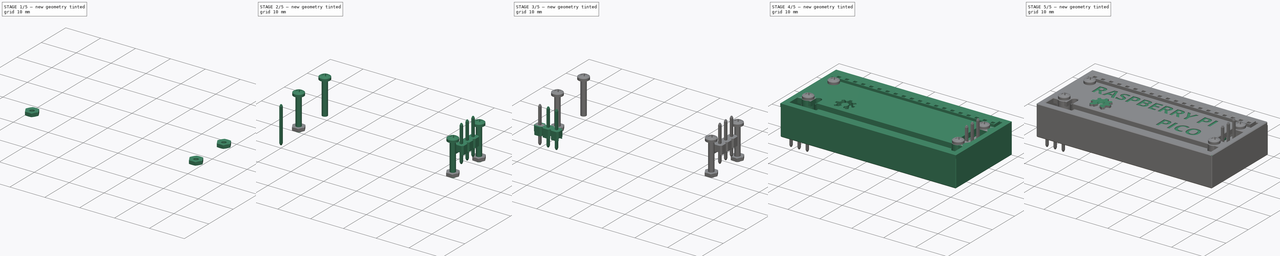
[diagram: build sequence overview — one tinted view per stage of 5, left to right]
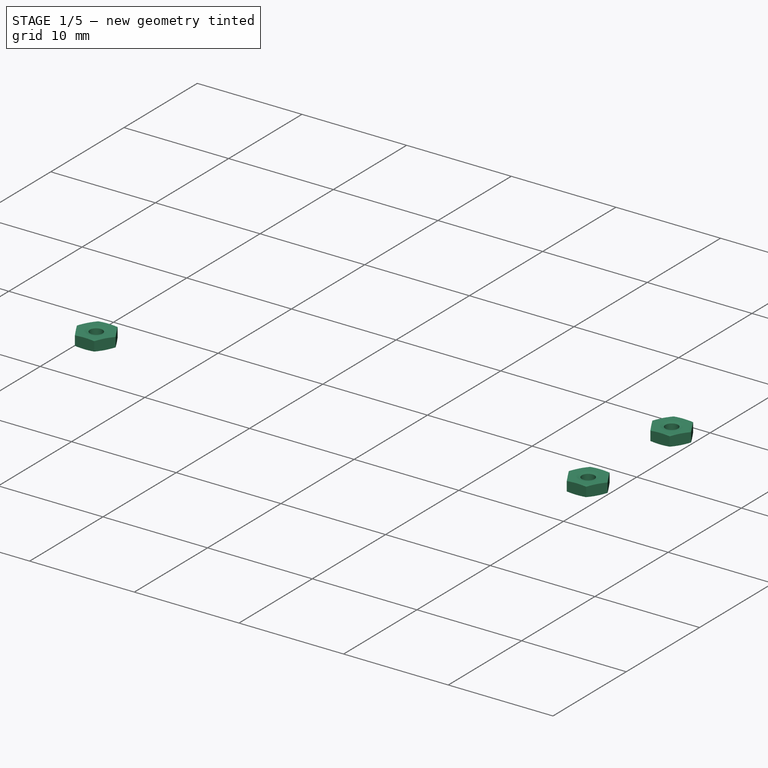
[diagram: stage 1 of 5 — iso view after this stage's code; geometry added in this stage tinted green]
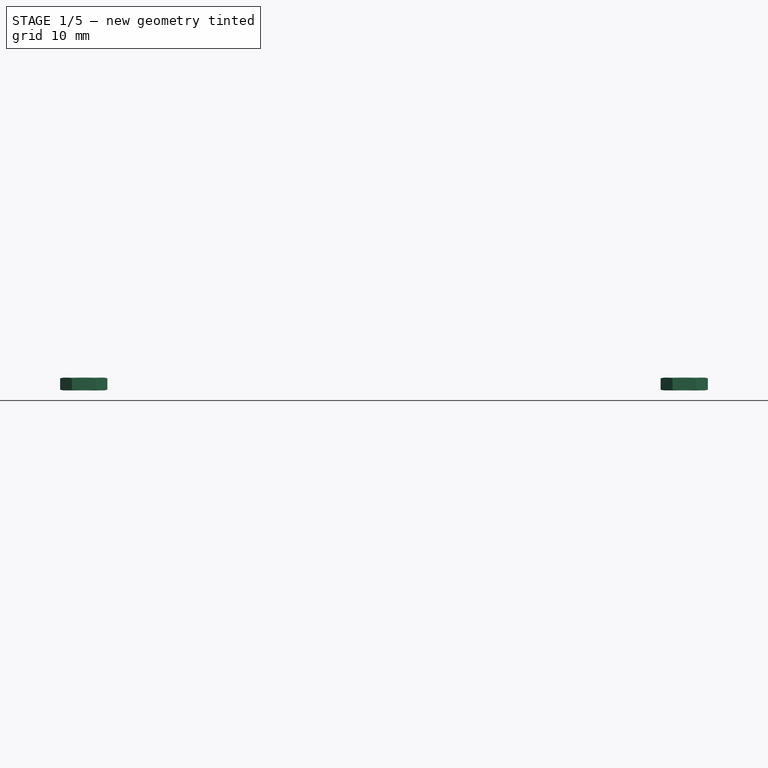
[diagram: stage 1 of 5 — front view after this stage's code; geometry added in this stage tinted green]
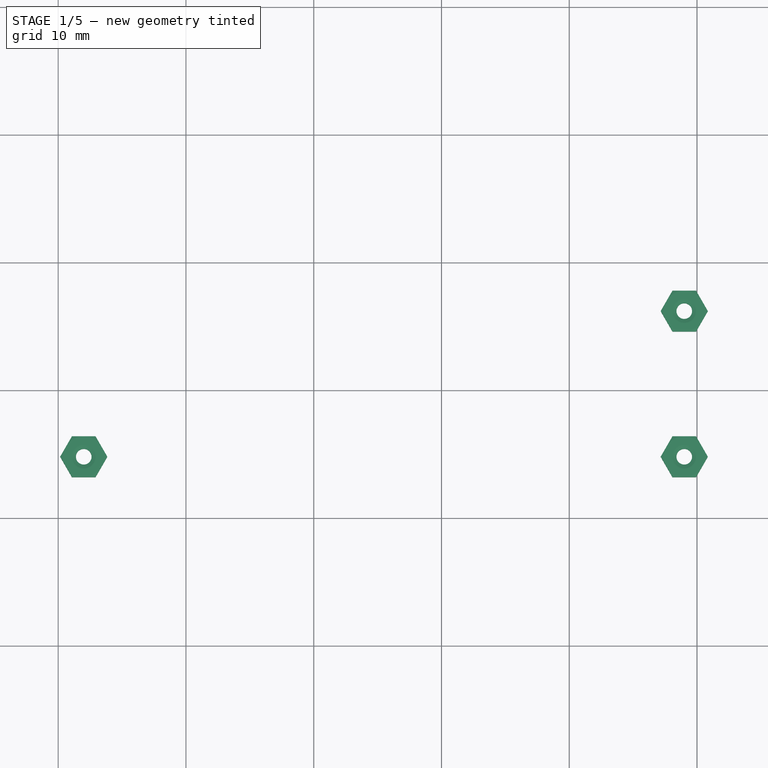
[diagram: stage 1 of 5 — top view after this stage's code; geometry added in this stage tinted green]
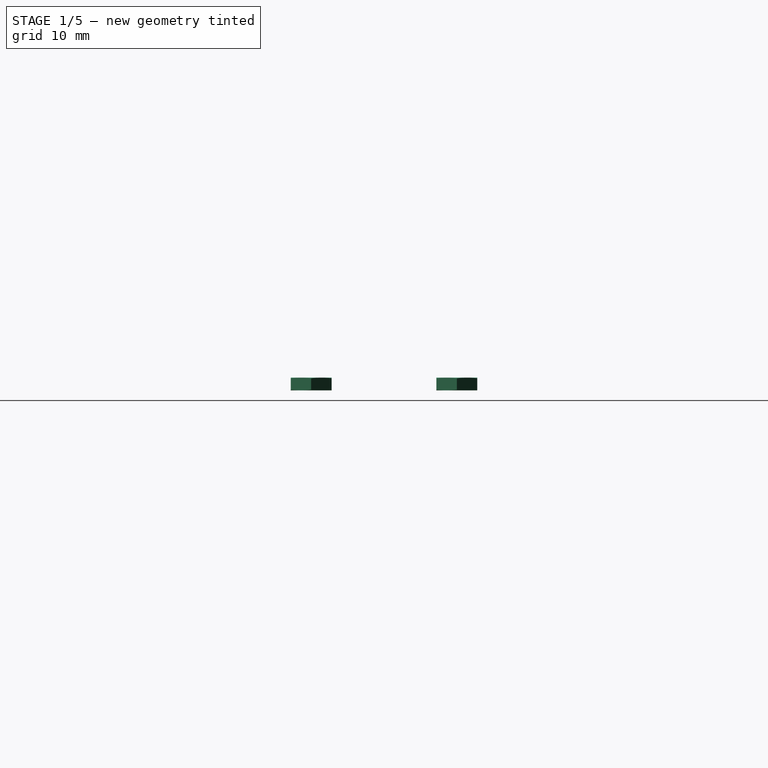
[diagram: stage 1 of 5 — right view after this stage's code; geometry added in this stage tinted green]
FCSTD DOCUMENT  (FreeCAD 0.20R)
Label: CASE-RASP-PICO-01
License: All rights reserved
LicenseURL: http://en.wikipedia.org/wiki/All_rights_reserved
objects: Part::Feature×50, Sketcher::SketchObject×16, Part::FeaturePython×16, Part::Extrusion×11, Part::MultiFuse×8, Part::Mirroring×4, App::DocumentObjectGroup×4, Part::Part2DObjectPython×2, Part::Chamfer×2, PartDesign::Pad×2, PartDesign::Pocket×2, Spreadsheet::Sheet×1, Part::Compound×1, Image::ImagePlane×1, Part::Cut×1, Part::Loft×1
note: 120 computed .brp shape members not serialized (recipe doc carries the construction recipe); baked Part::Feature solids carry a one-line shape summary decoded from their .brp

FEATURE [Spreadsheet::Sheet] Spreadsheet
  cells = A1=Comprimento; B1(comprimento)=; A2=Largura; B2(largura)=; A3=Altura; B3(altura)=; A4=Espessura; B4(espessura)=1; A5=Folga; B5(folga)=1; A6=Folga solda; B6(solda)=2; A7=cilindro; B7(cilindro)=3.5; A8=Furo; B8(furo)=2.2; A9=Porca; B9(porca)=4.5; B20=,
FEATURE [Part::Feature] Part__Feature  label="PCB, Raspberry Pi Pico-R3"
  Placement = pos=(25.5,10.5,0.5) rot=(0.57735,0.57735,0.57735;2.0944rad)
  shape: bbox 51 x 21 x 1 mm, 416 faces (baked)
FEATURE [Part::Feature] Part__Feature001  label="MicroUSB Port, Raspberry Pi Pico-R3"
  Placement = pos=(1.15,10.5,1) rot=(0.57735,-0.57735,-0.57735;2.0944rad)
  shape: bbox 5.462 x 8 x 2.95 mm, 1230 faces, 7 solids (baked)
FEATURE [Part::Feature] Part__Feature002  label="RP2040 Microcontroller, Raspberry Pi Pico-R3"
  Placement = pos=(26,10.5,1) rot=(0.57735,0.57735,0.57735;2.0944rad)
  shape: bbox 7 x 7 x 0.9 mm, 6 faces (baked)
FEATURE [Part::Feature] Part__Feature003  label="SW1, Tact Switch, Raspberry Pi Pico-R3"
  Placement = pos=(12,7,1) rot=(0.57735,0.57735,0.57735;2.0944rad)
  shape: bbox 4.25 x 3.2 x 2.5 mm, 17 faces (baked)
FEATURE [Part::Feature] Part__Feature004  label="D1, Diode, Schottky, Raspberry Pi Pico-R3"
  Placement = pos=(6.5,16.5,1) rot=(0.57735,0.57735,0.57735;2.0944rad)
  shape: bbox 3.6 x 1.65 x 0.95 mm, 14 faces (baked)
FEATURE [Part::Feature] Part__Feature005  label="D2, QSME-C194, LED, Raspberry Pi Pico-R3"
  Placement = pos=(4.7,4.7,1) rot=(0.57735,0.57735,0.57735;2.0944rad)
  shape: bbox 0.8 x 1.6 x 0.55 mm, 6 faces (baked)
FEATURE [Part::Feature] Part__Feature006  label="L1, Inductor, Raspberry Pi Pico-R3"
  Placement = pos=(10.9,16.5,1) rot=(0.57735,0.57735,0.57735;2.0944rad)
  shape: bbox 2.5 x 2 x 1.2 mm, 6 faces (baked)
FEATURE [Part::Feature] Part__Feature007  label="U2, RT6150B-33GQW, Buck Boost Converter, Raspberry Pi Pico-R3"
  Placement = pos=(10.9,13.5,1) rot=(0.57735,0.57735,0.57735;2.0944rad)
  shape: bbox 2.5 x 2.5 x 0.8 mm, 6 faces (baked)
FEATURE [Part::Feature] Part__Feature008  label="U3, W25Q16JVUXIQ, Serial NOR Flash 16 Mbit, Raspberry Pi Pico-R3"
  Placement = pos=(19.1,6.7,1) rot=(0.57735,0.57735,0.57735;2.0944rad)
  shape: bbox 3 x 2 x 0.8 mm, 6 faces (baked)
FEATURE [Part::Feature] Part__Feature009  label="Q1, MOSFET, DMG1012T, Raspberry Pi Pico-R3"
  Placement = pos=(18.3,17,1) rot=(0.57735,0.57735,0.57735;2.0944rad)
  shape: bbox 1.8 x 1.6 x 0.6 mm, 18 faces (baked)
FEATURE [Part::Feature] Part__Feature010  label="X1, X12M000000S096, 12 Mhz Crystal Resonator, Raspberry Pi Pico-R3"
  Placement = pos=(34.5,8.3,1) rot=(0.57735,0.57735,0.57735;2.0944rad)
  shape: bbox 2.5 x 3.2 x 0.6 mm, 18 faces (baked)
FEATURE [Part::Feature] Part__Feature011  label="SMD Resistor, Configurable, Raspberry Pi Pico-R3_R1"
  Placement = pos=(26.5,16.7,1) rot=(0,0.707107,0.707107;3.14159rad)
  shape: bbox 0.5 x 1 x 0.35 mm, 18 faces, 3 solids (baked)
FEATURE [Part::Feature] Part__Feature012  label="SMD Resistor, Configurable, Raspberry Pi Pico-R3_R2"
  Placement = pos=(6.9,14,1) rot=(0,0.707107,0.707107;3.14159rad)
  shape: bbox 0.5 x 1 x 0.35 mm, 18 faces, 3 solids (baked)
FEATURE [Part::Feature] Part__Feature013  label="SMD Resistor, Configurable, Raspberry Pi Pico-R3_R3"
  Placement = pos=(7.7,7.8,1) rot=(0,0.707107,0.707107;3.14159rad)
  shape: bbox 0.5 x 1 x 0.35 mm, 18 faces, 3 solids (baked)
FEATURE [Part::Feature] Part__Feature014  label="SMD Resistor, Configurable, Raspberry Pi Pico-R3_R4"
  Placement = pos=(20.1,5,1) rot=(0.57735,-0.57735,-0.57735;2.0944rad)
  shape: bbox 1 x 0.5 x 0.35 mm, 18 faces, 3 solids (baked)
FEATURE [Part::Feature] Part__Feature015  label="SMD Resistor, Configurable, Raspberry Pi Pico-R3_R5"
  Placement = pos=(15.9,17.5,1) rot=(0.57735,-0.57735,-0.57735;2.0944rad)
  shape: bbox 1 x 0.5 x 0.35 mm, 18 faces, 3 solids (baked)
FEATURE [Part::Feature] Part__Feature016  label="SMD Resistor, Configurable, Raspberry Pi Pico-R3_R6"
  Placement = pos=(20.9,17,1) rot=(0.57735,-0.57735,-0.57735;2.0944rad)
  shape: bbox 1 x 0.5 x 0.35 mm, 18 faces, 3 solids (baked)
FEATURE [Part::Feature] Part__Feature017  label="SMD Resistor, Configurable, Raspberry Pi Pico-R3_R7"
  Placement = pos=(16.5,15,1) rot=(0.57735,-0.57735,-0.57735;2.0944rad)
  shape: bbox 1.6 x 0.8 x 0.45 mm, 18 faces, 3 solids (baked)
FEATURE [Part::Feature] Part__Feature018  label="SMD Resistor, Configurable, Raspberry Pi Pico-R3_R8"
  Placement = pos=(6.7,7.8,1) rot=(0,0.707107,0.707107;3.14159rad)
  shape: bbox 0.5 x 1 x 0.35 mm, 18 faces, 3 solids (baked)
FEATURE [Part::Feature] Part__Feature019  label="SMD Resistor, Configurable, Raspberry Pi Pico-R3_R9"
  Placement = pos=(20.9,16,1) rot=(0.57735,-0.57735,-0.57735;2.0944rad)
  shape: bbox 1 x 0.5 x 0.35 mm, 18 faces, 3 solids (baked)
FEATURE [Part::Feature] Part__Feature020  label="SMD Resistor, Configurable, Raspberry Pi Pico-R3_R10"
  Placement = pos=(25.5,16.7,1) rot=(0,0.707107,0.707107;3.14159rad)
  shape: bbox 0.5 x 1 x 0.35 mm, 18 faces, 3 solids (baked)
FEATURE [Part::Feature] Part__Feature021  label="SMD Resistor, Configurable, Raspberry Pi Pico-R3_R11"
  Placement = pos=(18.1,5,1) rot=(0.57735,0.57735,0.57735;2.0944rad)
  shape: bbox 1 x 0.5 x 0.35 mm, 18 faces, 3 solids (baked)
FEATURE [Part::Feature] Part__Feature022  label="SMD Resistor, Configurable, Raspberry Pi Pico-R3_R12"
  Placement = pos=(20.9,11.3,1) rot=(0.57735,-0.57735,-0.57735;2.0944rad)
  shape: bbox 0.6 x 0.3 x 0.23 mm, 18 faces, 3 solids (baked)
FEATURE [Part::Feature] Part__Feature023  label="SMD Resistor, Configurable, Raspberry Pi Pico-R3_R13"
  Placement = pos=(20.9,11.9,1) rot=(0.57735,-0.57735,-0.57735;2.0944rad)
  shape: bbox 0.6 x 0.3 x 0.23 mm, 18 faces, 3 solids (baked)
FEATURE [Part::Feature] Part__Feature024  label="SMD Resistor, Configurable, Raspberry Pi Pico-R3_R14"
  Placement = pos=(32.5,9.4,1) rot=(0,0.707107,0.707107;3.14159rad)
  shape: bbox 0.5 x 1 x 0.35 mm, 18 faces, 3 solids (baked)
FEATURE [Part::Feature] Part__Feature025  label="SMD Resistor, Configurable, Raspberry Pi Pico-R3_R15"
  Placement = pos=(31.7,8.8,1) rot=(0,0.707107,0.707107;3.14159rad)
  shape: bbox 0.5 x 1 x 0.35 mm, 18 faces, 3 solids (baked)
FEATURE [Part::Feature] Part__Feature026  label="SMD Capacitor, Configurable, Raspberry Pi Pico-R3_C1"
  Placement = pos=(8.5,13.5,1) rot=(0,0.707107,0.707107;3.14159rad)
  shape: bbox 1.25 x 2 x 1.25 mm, 18 faces, 3 solids (baked)
FEATURE [Part::Feature] Part__Feature027  label="SMD Capacitor, Configurable, Raspberry Pi Pico-R3_C2"
  Placement = pos=(13.5,13.5,1) rot=(0,0.707107,0.707107;3.14159rad)
  shape: bbox 1.25 x 2 x 1.25 mm, 18 faces, 3 solids (baked)
FEATURE [Part::Feature] Part__Feature028  label="SMD Capacitor, Configurable, Raspberry Pi Pico-R3_C3"
  Placement = pos=(16.1,16.5,1) rot=(0.57735,0.57735,0.57735;2.0944rad)
  shape: bbox 0.6 x 0.3 x 0.3 mm, 18 faces, 3 solids (baked)
FEATURE [Part::Feature] Part__Feature029  label="SMD Capacitor, Configurable, Raspberry Pi Pico-R3_C4"
  Placement = pos=(23.4,6,1) rot=(1,0,0;1.5708rad)
  shape: bbox 0.3 x 0.6 x 0.3 mm, 18 faces, 3 solids (baked)
FEATURE [Part::Feature] Part__Feature030  label="SMD Capacitor, Configurable, Raspberry Pi Pico-R3_C5"
  Placement = pos=(27,6,1) rot=(1,0,0;1.5708rad)
  shape: bbox 0.3 x 0.6 x 0.3 mm, 18 faces, 3 solids (baked)
FEATURE [Part::Feature] Part__Feature031  label="SMD Capacitor, Configurable, Raspberry Pi Pico-R3_C6"
  Placement = pos=(27.4,15.1,1) rot=(0.281085,0.678598,0.678598;2.59356rad)
  shape: bbox 0.6364 x 0.6364 x 0.3 mm, 18 faces, 3 solids (baked)
FEATURE [Part::Feature] Part__Feature032  label="SMD Capacitor, Configurable, Raspberry Pi Pico-R3_C7"
  Placement = pos=(23.1,15,1) rot=(1,0,0;1.5708rad)
  shape: bbox 0.3 x 0.6 x 0.3 mm, 18 faces, 3 solids (baked)
FEATURE [Part::Feature] Part__Feature033  label="SMD Capacitor, Configurable, Raspberry Pi Pico-R3_C8"
  Placement = pos=(31,10.5,1) rot=(0.57735,0.57735,0.57735;2.0944rad)
  shape: bbox 0.6 x 0.3 x 0.3 mm, 18 faces, 3 solids (baked)
FEATURE [Part::Feature] Part__Feature034  label="SMD Capacitor, Configurable, Raspberry Pi Pico-R3_C9"
  Placement = pos=(31,11.3,1) rot=(0.57735,0.57735,0.57735;2.0944rad)
  shape: bbox 0.6 x 0.3 x 0.3 mm, 18 faces, 3 solids (baked)
FEATURE [Part::Feature] Part__Feature035  label="SMD Capacitor, Configurable, Raspberry Pi Pico-R3_C10"
  Placement = pos=(20.9,10.5,1) rot=(0.57735,0.57735,0.57735;2.0944rad)
  shape: bbox 0.6 x 0.3 x 0.3 mm, 18 faces, 3 solids (baked)
FEATURE [Part::Feature] Part__Feature036  label="SMD Capacitor, Configurable, Raspberry Pi Pico-R3_C11"
  Placement = pos=(20.9,9.8,1) rot=(0.57735,0.57735,0.57735;2.0944rad)
  shape: bbox 0.6 x 0.3 x 0.3 mm, 18 faces, 3 solids (baked)
FEATURE [Part::Feature] Part__Feature037  label="SMD Capacitor, Configurable, Raspberry Pi Pico-R3_C12"
  Placement = pos=(20.9,12.7,1) rot=(0.57735,0.57735,0.57735;2.0944rad)
  shape: bbox 1 x 0.5 x 0.5 mm, 18 faces, 3 solids (baked)
FEATURE [Part::Feature] Part__Feature038  label="SMD Capacitor, Configurable, Raspberry Pi Pico-R3_C13"
  Placement = pos=(20.9,15.1,1) rot=(0.57735,0.57735,0.57735;2.0944rad)
  shape: bbox 1 x 0.5 x 0.5 mm, 18 faces, 3 solids (baked)
FEATURE [Part::Feature] Part__Feature039  label="SMD Capacitor, Configurable, Raspberry Pi Pico-R3_C14"
  Placement = pos=(20.9,13.7,1) rot=(0.57735,0.57735,0.57735;2.0944rad)
  shape: bbox 1 x 0.5 x 0.5 mm, 18 faces, 3 solids (baked)
FEATURE [Part::Feature] Part__Feature040  label="SMD Capacitor, Configurable, Raspberry Pi Pico-R3_C15"
  Placement = pos=(16.7,6,1) rot=(0.57735,0.57735,0.57735;2.0944rad)
  shape: bbox 0.6 x 0.3 x 0.3 mm, 18 faces, 3 solids (baked)
FEATURE [Part::Feature] Part__Feature041  label="SMD Capacitor, Configurable, Raspberry Pi Pico-R3_C16"
  Placement = pos=(35.1,5.9,1) rot=(0.57735,0.57735,0.57735;2.0944rad)
  shape: bbox 0.6 x 0.3 x 0.3 mm, 18 faces, 3 solids (baked)
FEATURE [Part::Feature] Part__Feature042  label="SMD Capacitor, Configurable, Raspberry Pi Pico-R3_C17"
  Placement = pos=(34,10.5,1) rot=(0.57735,0.57735,0.57735;2.0944rad)
  shape: bbox 0.6 x 0.3 x 0.3 mm, 18 faces, 3 solids (baked)
FEATURE [Part::Feature] Part__Feature043  label="SMD Capacitor, Configurable, Raspberry Pi Pico-R3_C18"
  Placement = pos=(22.4,5.8,1) rot=(1,0,0;1.5708rad)
  shape: bbox 0.5 x 1 x 0.5 mm, 18 faces, 3 solids (baked)
FEATURE [Sketcher::SketchObject] Sketch  label="BASE"
  ExternalGeometry = -> [Part__Feature]
  FullyConstrained = false
  expr: Constraints[55] = Spreadsheet.folga
  expr: Constraints[71] = Spreadsheet.cilindro
  expr: Constraints[56] = Spreadsheet.espessura
  expr: Constraints[72] = Spreadsheet.furo
  expr: Constraints[152] = Spreadsheet.porca
  sketch-geometry (57):
    g0: LineSegment StartX=-2 StartY=-2 StartZ=0 EndX=53 EndY=-2 EndZ=0
    g1: LineSegment StartX=53 StartY=-2 StartZ=0 EndX=53 EndY=23 EndZ=0
    g2: LineSegment StartX=53 StartY=23 StartZ=0 EndX=-2 EndY=23 EndZ=0
    g3: LineSegment StartX=-2 StartY=23 StartZ=0 EndX=-2 EndY=-2 EndZ=0
    g4: LineSegment StartX=-1 StartY=22 StartZ=0 EndX=52 EndY=22 EndZ=0
    g5: LineSegment StartX=52 StartY=22 StartZ=0 EndX=52 EndY=-1 EndZ=0
    g6: LineSegment StartX=52 StartY=-1 StartZ=0 EndX=-1 EndY=-1 EndZ=0
    g7: LineSegment StartX=-1 StartY=-1 StartZ=0 EndX=-1 EndY=5.5 EndZ=0
    g8: LineSegment StartX=1.42e-14 StartY=21 StartZ=0 EndX=51 EndY=21 EndZ=0
    g9: LineSegment StartX=51 StartY=13.84 StartZ=0 EndX=51 EndY=7.16 EndZ=0
    g10: LineSegment StartX=51 StartY=-2.13e-14 StartZ=0 EndX=0 EndY=0 EndZ=0
    g11: LineSegment StartX=26.4196 StartY=23 StartZ=0 EndX=26.4196 EndY=22 EndZ=0
    g12: LineSegment StartX=26.4196 StartY=22 StartZ=0 EndX=26.4196 EndY=21 EndZ=0
    g13: LineSegment StartX=51 StartY=10.5 StartZ=0 EndX=52 EndY=10.5 EndZ=0
    g14: LineSegment StartX=52 StartY=10.5 StartZ=0 EndX=53 EndY=10.5 EndZ=0
    g15: LineSegment StartX=-2 StartY=15.5 StartZ=0 EndX=-1 EndY=15.5 EndZ=0
    g16: LineSegment StartX=-2 StartY=5.5 StartZ=0 EndX=-1 EndY=5.5 EndZ=0
    g17: LineSegment StartX=-1 StartY=15.5 StartZ=0 EndX=-1 EndY=22 EndZ=0
    g18: LineSegment StartX=-1 StartY=15.5 StartZ=0 EndX=-1 EndY=5.5 EndZ=0
    g19: LineSegment StartX=1.42e-14 StartY=21 StartZ=0 EndX=0 EndY=0 EndZ=0
    g20: LineSegment StartX=-1 StartY=10.5 StartZ=0 EndX=7.1e-15 EndY=10.5 EndZ=0
    g21: Circle CenterX=2 CenterY=16.2 CenterZ=0 NormalX=0 NormalY=0 NormalZ=1 AngleXU=0 Radius=1.1
    g22: Circle CenterX=2 CenterY=16.2 CenterZ=0 NormalX=0 NormalY=0 NormalZ=1 AngleXU=0 Radius=1.75
    g23: Circle CenterX=49 CenterY=16.2 CenterZ=0 NormalX=0 NormalY=0 NormalZ=1 AngleXU=0 Radius=1.1
    g24: Circle CenterX=49 CenterY=16.2 CenterZ=0 NormalX=0 NormalY=0 NormalZ=1 AngleXU=0 Radius=1.75
    g25: Circle CenterX=49 CenterY=4.8 CenterZ=0 NormalX=0 NormalY=0 NormalZ=1 AngleXU=0 Radius=1.1
    g26: Circle CenterX=49 CenterY=4.8 CenterZ=0 NormalX=0 NormalY=0 NormalZ=1 AngleXU=0 Radius=1.75
    g27: Circle CenterX=2 CenterY=4.8 CenterZ=0 NormalX=0 NormalY=0 NormalZ=1 AngleXU=0 Radius=1.1
    g28: Circle CenterX=2 CenterY=4.8 CenterZ=0 NormalX=0 NormalY=0 NormalZ=1 AngleXU=0 Radius=1.75
    g29: LineSegment StartX=2 StartY=18.45 StartZ=0 EndX=0.0514428 EndY=17.325 EndZ=0
    g30: LineSegment StartX=0.0514428 StartY=17.325 StartZ=0 EndX=0.0514428 EndY=15.075 EndZ=0
    g31: LineSegment StartX=0.0514428 StartY=15.075 StartZ=0 EndX=2 EndY=13.95 EndZ=0
    g32: LineSegment StartX=2 StartY=13.95 StartZ=0 EndX=3.94856 EndY=15.075 EndZ=0
    g33: LineSegment StartX=3.94856 StartY=15.075 StartZ=0 EndX=3.94856 EndY=17.325 EndZ=0
    g34: LineSegment StartX=3.94856 StartY=17.325 StartZ=0 EndX=2 EndY=18.45 EndZ=0
    g35: Circle CenterX=2 CenterY=16.2 CenterZ=0 NormalX=0 NormalY=0 NormalZ=1 AngleXU=0 Radius=2.25
    g36: LineSegment StartX=49 StartY=18.45 StartZ=0 EndX=47.0514 EndY=17.325 EndZ=0
    g37: LineSegment StartX=47.0514 StartY=17.325 StartZ=0 EndX=47.0514 EndY=15.075 EndZ=0
    g38: LineSegment StartX=47.0514 StartY=15.075 StartZ=0 EndX=49 EndY=13.95 EndZ=0
    g39: LineSegment StartX=49 StartY=13.95 StartZ=0 EndX=50.9486 EndY=15.075 EndZ=0
    g40: LineSegment StartX=50.9486 StartY=15.075 StartZ=0 EndX=50.9486 EndY=17.325 EndZ=0
    g41: LineSegment StartX=50.9486 StartY=17.325 StartZ=0 EndX=49 EndY=18.45 EndZ=0
    g42: Circle CenterX=49 CenterY=16.2 CenterZ=0 NormalX=0 NormalY=0 NormalZ=1 AngleXU=0 Radius=2.25
    g43: LineSegment StartX=49 StartY=7.05 StartZ=0 EndX=47.0514 EndY=5.925 EndZ=0
    g44: LineSegment StartX=47.0514 StartY=5.925 StartZ=0 EndX=47.0514 EndY=3.675 EndZ=0
    g45: LineSegment StartX=47.0514 StartY=3.675 StartZ=0 EndX=49 EndY=2.55 EndZ=0
    g46: LineSegment StartX=49 StartY=2.55 StartZ=0 EndX=50.9486 EndY=3.675 EndZ=0
    g47: LineSegment StartX=50.9486 StartY=3.675 StartZ=0 EndX=50.9486 EndY=5.925 EndZ=0
    g48: LineSegment StartX=50.9486 StartY=5.925 StartZ=0 EndX=49 EndY=7.05 EndZ=0
    g49: Circle CenterX=49 CenterY=4.8 CenterZ=0 NormalX=0 NormalY=0 NormalZ=1 AngleXU=0 Radius=2.25
    g50: LineSegment StartX=2 StartY=2.55 StartZ=0 EndX=3.94856 EndY=3.675 EndZ=0
    g51: LineSegment StartX=3.94856 StartY=3.675 StartZ=0 EndX=3.94856 EndY=5.925 EndZ=0
    g52: LineSegment StartX=3.94856 StartY=5.925 StartZ=0 EndX=2 EndY=7.05 EndZ=0
    g53: LineSegment StartX=2 StartY=7.05 StartZ=0 EndX=0.0514428 EndY=5.925 EndZ=0
    g54: LineSegment StartX=0.0514428 StartY=5.925 StartZ=0 EndX=0.0514428 EndY=3.675 EndZ=0
    g55: LineSegment StartX=0.0514428 StartY=3.675 StartZ=0 EndX=2 EndY=2.55 EndZ=0
    g56: Circle CenterX=2 CenterY=4.8 CenterZ=0 NormalX=0 NormalY=0 NormalZ=1 AngleXU=0 Radius=2.25
  constraints (137):
    c: Coincident(g0,g1)
    c: Coincident(g1,g2)
    c: Coincident(g2,g3)
    c: Coincident(g3,g0)
    c: Horizontal(g0)
    c: Horizontal(g2)
    c: Vertical(g1)
    c: Vertical(g3)
    c: Coincident(g4,g5)
    c: Coincident(g5,g6)
    c: Coincident(g6,g7)
    c: Coincident(g17,g4)
    c: Horizontal(g4)
    c: Horizontal(g6)
    c: Vertical(g5)
    c: Vertical(g7)
    c: Coincident(g8,g-5)
    c: Coincident(g8,g-3)
    c: Coincident(g9,g-3)
    c: Coincident(g9,g-4)
    c: Coincident(g10,g-4)
    c: Coincident(g10,g-1)
    c: PointOnObject(g11,g2)
    c: PointOnObject(g11,g4)
    c: Vertical(g11)
    c: Coincident(g11,g12)
    c: PointOnObject(g12,g8)
    c: Vertical(g12)
    c: PointOnObject(g13,g5)
    c: Horizontal(g13)
    c: Coincident(g13,g14)
    c: Horizontal(g14)
    c: PointOnObject(g15,g3)
    c: Horizontal(g15)
    c: PointOnObject(g16,g3)
    c: Horizontal(g16)
    c: Coincident(g7,g16)
    c: Coincident(g17,g15)
    c: Coincident(g18,g17)
    c: Coincident(g18,g7)
    c: Vertical(g18)
    c: Equal(g14,g11)
    c: Equal(g11,g15)
    c: Vertical(g17)
    c: Equal(g17,g7)
    c: DistanceY(g16,g15) = 10
    c: Coincident(g19,g8)
    c: Coincident(g19,g-1)
    c: Horizontal(g20)
    c: Symmetric(g18,g18,g20)
    c: Symmetric(g19,g19,g20)
    c: Symmetric(g9,g9,g13)
    c: Symmetric(g1,g1,g14)
    c: Equal(g12,g20)
    c: Equal(g20,g13)
    c: DistanceY(g12,g12) = 1
    c: DistanceY(g11,g11) = 1
    c: Coincident(g21,g-6)
    c: Coincident(g22,g21)
    c: Coincident(g23,g-7)
    c: Coincident(g24,g23)
    c: Coincident(g25,g-8)
    c: Coincident(g26,g25)
    c: Coincident(g27,g-9)
    c: Coincident(g28,g27)
    c: Equal(g21,g23)
    c: Equal(g23,g25)
    c: Equal(g25,g27)
    c: Equal(g22,g24)
    c: Equal(g24,g26)
    c: Equal(g26,g28)
    c: Diameter(g22) = 3.5
    c: Diameter(g21) = 2.2
    c: Coincident(g29,g30)
    c: Coincident(g30,g31)
    c: Coincident(g31,g32)
    c: Coincident(g32,g33)
    c: Coincident(g33,g34)
    c: Coincident(g34,g29)
    c: Equal(g29, g30-g34) x5
    c: PointOnObject(g29,g35)
    c: PointOnObject(g30,g35)
    c: PointOnObject(g31,g35)
    c: PointOnObject(g32,g35)
    c: PointOnObject(g33,g35)
    c: PointOnObject(g34,g35)
    c: Coincident(g35,g21)
    c: Coincident(g36,g37)
    c: Coincident(g37,g38)
    c: Coincident(g38,g39)
    c: Coincident(g39,g40)
    c: Coincident(g40,g41)
    c: Coincident(g41,g36)
    c: Equal(g36, g37-g41) x5
    c: PointOnObject(g36,g42)
    c: PointOnObject(g37,g42)
    c: PointOnObject(g38,g42)
    c: PointOnObject(g39,g42)
    c: PointOnObject(g40,g42)
    c: PointOnObject(g41,g42)
    c: Coincident(g42,g23)
    c: Coincident(g43,g44)
    c: Coincident(g44,g45)
    c: Coincident(g45,g46)
    c: Coincident(g46,g47)
    c: Coincident(g47,g48)
    c: Coincident(g48,g43)
    c: Equal(g43, g44-g48) x5
    c: PointOnObject(g43,g49)
    c: PointOnObject(g44,g49)
    c: PointOnObject(g45,g49)
    c: PointOnObject(g46,g49)
    c: PointOnObject(g47,g49)
    c: PointOnObject(g48,g49)
    c: Coincident(g49,g25)
    c: Coincident(g50,g51)
    c: Coincident(g51,g52)
    c: Coincident(g52,g53)
    c: Coincident(g53,g54)
    c: Coincident(g54,g55)
    c: Coincident(g55,g50)
    c: Equal(g50, g51-g55) x5
    c: PointOnObject(g50,g56)
    c: PointOnObject(g51,g56)
    c: PointOnObject(g52,g56)
    c: PointOnObject(g53,g56)
    c: PointOnObject(g54,g56)
    c: PointOnObject(g55,g56)
    c: Coincident(g56,g27)
    c: Vertical(g33)
    c: Vertical(g51)
    c: Vertical(g44)
    c: Vertical(g37)
    c: Equal(g42,g49)
    c: Equal(g49,g35)
    c: Equal(g35,g56)
    c: Diameter(g35) = 4.5
FEATURE [Part::Extrusion] Extrude  label="BASE"
  Base = -> Sketch
  Dir = (0,0,1)
  DirMode = 2
  FaceMakerClass = Part::FaceMakerBullseye
  LengthFwd = 1
  LengthRev = 0
  Solid = true
  Symmetric = false
  expr: LengthFwd = Spreadsheet.espessura
FEATURE [Part::Extrusion] Extrude001  label="FUNDO"
  Base = -> Sketch001
  Dir = (0,0,1)
  DirMode = 2
  FaceMakerClass = Part::FaceMakerBullseye
  LengthFwd = 1
  LengthRev = 0
  Solid = true
  Symmetric = false
  expr: LengthFwd = Spreadsheet.espessura
FEATURE [Sketcher::SketchObject] Sketch002  label="LATERAL INFERIOR"
  ExternalGeometry = -> [Part__Feature]
  FullyConstrained = false
  Placement = pos=(0,0,2) rot=(0,0,1;0rad)
  expr: Constraints[58] = Sketch001.Constraints[71]
  expr: .Placement.Base.z = 2 * Spreadsheet.espessura
  expr: Constraints[59] = Sketch001.Constraints[72]
  expr: Constraints[43] = Sketch001.Constraints[56]
  expr: Constraints[42] = Sketch001.Constraints[55]
  sketch-geometry (48):
    g0: LineSegment StartX=-2 StartY=-2 StartZ=0 EndX=53 EndY=-2 EndZ=0
    g1: LineSegment StartX=53 StartY=-2 StartZ=0 EndX=53 EndY=23 EndZ=0
    g2: LineSegment StartX=53 StartY=23 StartZ=0 EndX=-2 EndY=23 EndZ=0
    g3: LineSegment StartX=-2 StartY=23 StartZ=0 EndX=-2 EndY=-2 EndZ=0
    g4: LineSegment StartX=-1 StartY=22 StartZ=0 EndX=52 EndY=22 EndZ=0
    g5: LineSegment StartX=52 StartY=22 StartZ=0 EndX=52 EndY=17.95 EndZ=0
    g6: LineSegment StartX=52 StartY=-1 StartZ=0 EndX=-1 EndY=-1 EndZ=0
    g7: LineSegment StartX=-1 StartY=-1 StartZ=0 EndX=-1 EndY=3.05 EndZ=0
    g8: LineSegment StartX=1.78e-14 StartY=21 StartZ=0 EndX=51 EndY=21 EndZ=0
    g9: LineSegment StartX=51 StartY=13.84 StartZ=0 EndX=51 EndY=7.16 EndZ=0
    g10: LineSegment StartX=51 StartY=-3.73e-14 StartZ=0 EndX=0 EndY=0 EndZ=0
    g11: LineSegment StartX=26.4196 StartY=23 StartZ=0 EndX=26.4196 EndY=22 EndZ=0
    g12: LineSegment StartX=26.4196 StartY=22 StartZ=0 EndX=26.4196 EndY=21 EndZ=0
    g13: LineSegment StartX=51 StartY=10.5 StartZ=0 EndX=52 EndY=10.5 EndZ=0
    g14: LineSegment StartX=52 StartY=10.5 StartZ=0 EndX=53 EndY=10.5 EndZ=0
    g15: LineSegment StartX=-1 StartY=17.95 StartZ=0 EndX=-1 EndY=22 EndZ=0
    g16: LineSegment StartX=1.78e-14 StartY=21 StartZ=0 EndX=0 EndY=0 EndZ=0
    g17: LineSegment StartX=-1 StartY=10.5 StartZ=0 EndX=8.9e-15 EndY=10.5 EndZ=0
    g18: Circle CenterX=2 CenterY=16.2 CenterZ=0 NormalX=0 NormalY=0 NormalZ=1 AngleXU=0 Radius=1.1
    g19: ArcOfCircle CenterX=2 CenterY=16.2 CenterZ=0 NormalX=0 NormalY=0 NormalZ=1 AngleXU=0 Radius=1.75 StartAngle=4.71239 EndAngle=7.85398
    g20: Circle CenterX=49 CenterY=16.2 CenterZ=0 NormalX=0 NormalY=0 NormalZ=1 AngleXU=0 Radius=1.1
    g21: ArcOfCircle CenterX=49 CenterY=16.2 CenterZ=0 NormalX=0 NormalY=0 NormalZ=1 AngleXU=0 Radius=1.75 StartAngle=1.5708 EndAngle=4.71239
    g22: Circle CenterX=49 CenterY=4.8 CenterZ=0 NormalX=0 NormalY=0 NormalZ=1 AngleXU=0 Radius=1.1
    g23: ArcOfCircle CenterX=49 CenterY=4.8 CenterZ=0 NormalX=0 NormalY=0 NormalZ=1 AngleXU=0 Radius=1.75 StartAngle=1.5708 EndAngle=4.71239
    g24: Circle CenterX=2 CenterY=4.8 CenterZ=0 NormalX=0 NormalY=0 NormalZ=1 AngleXU=0 Radius=1.1
    g25: ArcOfCircle CenterX=2 CenterY=4.8 CenterZ=0 NormalX=0 NormalY=0 NormalZ=1 AngleXU=0 Radius=1.75 StartAngle=4.71239 EndAngle=7.85398
    g26: LineSegment StartX=-1 StartY=-1 StartZ=0 EndX=-1 EndY=3.05 EndZ=0
    g27: LineSegment StartX=49 StartY=17.95 StartZ=0 EndX=52 EndY=17.95 EndZ=0
    g28: LineSegment StartX=49 StartY=14.45 StartZ=0 EndX=49 EndY=17.95 EndZ=0
    g29: LineSegment StartX=52 StartY=14.45 StartZ=0 EndX=49 EndY=14.45 EndZ=0
    g30: LineSegment StartX=52 StartY=14.45 StartZ=0 EndX=52 EndY=6.55 EndZ=0
    g31: LineSegment StartX=49 StartY=3.05 StartZ=0 EndX=52 EndY=3.05 EndZ=0
    g32: LineSegment StartX=49 StartY=6.55 StartZ=0 EndX=49 EndY=3.05 EndZ=0
    g33: LineSegment StartX=52 StartY=6.55 StartZ=0 EndX=49 EndY=6.55 EndZ=0
    g34: LineSegment StartX=52 StartY=3.05 StartZ=0 EndX=52 EndY=-1 EndZ=0
    g35: LineSegment StartX=2 StartY=17.95 StartZ=0 EndX=-1 EndY=17.95 EndZ=0
    g36: LineSegment StartX=2 StartY=14.45 StartZ=0 EndX=2 EndY=17.95 EndZ=0
    g37: LineSegment StartX=-1 StartY=14.45 StartZ=0 EndX=2 EndY=14.45 EndZ=0
    g38: LineSegment StartX=-1 StartY=17.95 StartZ=0 EndX=-1 EndY=22 EndZ=0
    g39: LineSegment StartX=2 StartY=6.55 StartZ=0 EndX=-1 EndY=6.55 EndZ=0
    g40: LineSegment StartX=2 StartY=3.05 StartZ=0 EndX=2 EndY=6.55 EndZ=0
    g41: LineSegment StartX=-1 StartY=3.05 StartZ=0 EndX=2 EndY=3.05 EndZ=0
    g42: LineSegment StartX=-1 StartY=6.55 StartZ=0 EndX=-1 EndY=14.45 EndZ=0
    g43: LineSegment StartX=-1 StartY=6.55 StartZ=0 EndX=-1 EndY=3.05 EndZ=0
    g44: LineSegment StartX=-1 StartY=10.5 StartZ=0 EndX=-2 EndY=10.5 EndZ=0
    g45: LineSegment StartX=-1 StartY=14.45 StartZ=0 EndX=-1 EndY=17.95 EndZ=0
    g46: LineSegment StartX=25.5 StartY=-1 StartZ=0 EndX=25.5 EndY=-2 EndZ=0
    g47: LineSegment StartX=25.5 StartY=-1 StartZ=0 EndX=25.5 EndY=-1.87e-14 EndZ=0
  constraints (120):
    c: Coincident(g0,g1)
    c: Coincident(g1,g2)
    c: Coincident(g2,g3)
    c: Coincident(g3,g0)
    c: Horizontal(g0)
    c: Horizontal(g2)
    c: Vertical(g1)
    c: Vertical(g3)
    c: Coincident(g4,g5)
    c: Coincident(g34,g6)
    c: Coincident(g6,g7)
    c: Coincident(g15,g4)
    c: Horizontal(g4)
    c: Horizontal(g6)
    c: Vertical(g5)
    c: Vertical(g7)
    c: Coincident(g8,g-5)
    c: Coincident(g8,g-3)
    c: Coincident(g9,g-3)
    c: Coincident(g9,g-4)
    c: Coincident(g10,g-4)
    c: Coincident(g10,g-1)
    c: PointOnObject(g11,g2)
    c: PointOnObject(g11,g4)
    c: Vertical(g11)
    c: Coincident(g11,g12)
    c: PointOnObject(g12,g8)
    c: Vertical(g12)
    c: PointOnObject(g13,g5)
    c: Horizontal(g13)
    c: Coincident(g13,g14)
    c: Horizontal(g14)
    c: Equal(g14,g11)
    c: Vertical(g15)
    c: Coincident(g16,g8)
    c: Coincident(g16,g-1)
    c: Horizontal(g17)
    c: Symmetric(g16,g16,g17)
    c: Symmetric(g9,g9,g13)
    c: Symmetric(g1,g1,g14)
    c: Equal(g12,g17)
    c: Equal(g17,g13)
    c: DistanceY(g12,g12) = 1
    c: DistanceY(g11,g11) = 1
    c: Coincident(g18,g-6)
    c: Coincident(g19,g18)
    c: Coincident(g20,g-7)
    c: Coincident(g21,g20)
    c: Coincident(g22,g-8)
    c: Coincident(g23,g22)
    c: Coincident(g24,g-9)
    c: Coincident(g25,g24)
    c: Equal(g18,g20)
    c: Equal(g20,g22)
    c: Equal(g22,g24)
    c: Equal(g19,g21)
    c: Equal(g21,g23)
    c: Equal(g23,g25)
    c: Diameter(g19) = 3.5
    c: Diameter(g18) = 2.2
    c: Coincident(g26,g6)
    c: Coincident(g38,g4)
    c: Coincident(g29,g28)
    c: Coincident(g28,g27)
    c: Horizontal(g27)
    c: Vertical(g28)
    c: Coincident(g5,g27)
    c: Coincident(g30,g29)
    c: Coincident(g21,g27)
    c: Coincident(g33,g32)
    c: Coincident(g32,g31)
    c: Horizontal(g31)
    c: Vertical(g32)
    c: Coincident(g23,g32)
    c: Coincident(g23,g31)
    c: Coincident(g30,g33)
    c: Coincident(g34,g31)
    c: Coincident(g37,g36)
    c: Coincident(g36,g35)
    c: Horizontal(g35)
    c: Vertical(g36)
    c: Coincident(g19,g35)
    c: Coincident(g41,g40)
    c: Coincident(g40,g39)
    c: Horizontal(g39)
    c: Symmetric(g40,g40,g24)
    c: Coincident(g7,g41)
    c: Coincident(g25,g40)
    c: Symmetric(g42,g42,g17)
    c: Coincident(g43,g39)
    c: Vertical(g43)
    c: Coincident(g7,g26)
    c: Coincident(g7,g43)
    c: Coincident(g15,g35)
    c: Coincident(g37,g42)
    c: Vertical(g42)
    c: Coincident(g39,g42)
    c: Coincident(g17,g44)
    c: Symmetric(g3,g3,g44)
    c: Coincident(g45,g37)
    c: Vertical(g45)
    c: Coincident(g15,g38)
    c: Coincident(g15,g45)
    c: Coincident(g19,g36)
    c: Equal(g44,g11)
    c: Symmetric(g36,g36,g18)
    c: Tangent(g25,g39) = -1.5708
    c: Coincident(g25,g39)
    c: Horizontal(g41)
    c: Coincident(g21,g28)
    c: Horizontal(g29)
    c: Symmetric(g30,g30,g13)
    c: Vertical(g34)
    c: PointOnObject(g46,g6)
    c: Vertical(g46)
    c: Symmetric(g0,g0,g46)
    c: Equal(g46,g11)
    c: Coincident(g47,g46)
    c: PointOnObject(g47,g10)
    c: Vertical(g47)
FEATURE [Part::Extrusion] Extrude002  label="LATERAL INFERIOR"
  Base = -> Sketch002
  Dir = (0,0,1)
  DirMode = 2
  FaceMakerClass = Part::FaceMakerBullseye
  LengthFwd = 2
  LengthRev = 0
  Solid = true
  Symmetric = false
  expr: LengthFwd = Spreadsheet.solda
FEATURE [Sketcher::SketchObject] Sketch003  label="LATERAL PLACA"
  ExternalGeometry = -> [Part__Feature]
  FullyConstrained = false
  Placement = pos=(0,0,4) rot=(0,0,1;0rad)
  expr: Constraints[71] = Sketch001.Constraints[71]
  expr: Constraints[55] = Sketch001.Constraints[55]
  expr: Constraints[56] = Sketch001.Constraints[56]
  expr: Constraints[72] = Sketch001.Constraints[72]
  expr: Constraints[152] = Sketch001.Constraints[152]
  expr: .Placement.Base.z = Spreadsheet.espessura + Spreadsheet.solda + Spreadsheet.folga
  sketch-geometry (59):
    g0: LineSegment StartX=-2 StartY=-2 StartZ=0 EndX=53 EndY=-2 EndZ=0
    g1: LineSegment StartX=53 StartY=-2 StartZ=0 EndX=53 EndY=23 EndZ=0
    g2: LineSegment StartX=53 StartY=23 StartZ=0 EndX=-2 EndY=23 EndZ=0
    g3: LineSegment StartX=-2 StartY=23 StartZ=0 EndX=-2 EndY=-2 EndZ=0
    g4: LineSegment StartX=-1 StartY=22 StartZ=0 EndX=52 EndY=22 EndZ=0
    g5: LineSegment StartX=52 StartY=22 StartZ=0 EndX=52 EndY=-1 EndZ=0
    g6: LineSegment StartX=52 StartY=-1 StartZ=0 EndX=-1 EndY=-1 EndZ=0
    g7: LineSegment StartX=-1 StartY=-1 StartZ=0 EndX=-1 EndY=6 EndZ=0
    g8: LineSegment StartX=1.78e-14 StartY=21 StartZ=0 EndX=51 EndY=21 EndZ=0
    g9: LineSegment StartX=51 StartY=13.84 StartZ=0 EndX=51 EndY=7.16 EndZ=0
    g10: LineSegment StartX=51 StartY=-2.13e-14 StartZ=0 EndX=0 EndY=0 EndZ=0
    g11: LineSegment StartX=26.4196 StartY=23 StartZ=0 EndX=26.4196 EndY=22 EndZ=0
    g12: LineSegment StartX=26.4196 StartY=22 StartZ=0 EndX=26.4196 EndY=21 EndZ=0
    g13: LineSegment StartX=51 StartY=10.5 StartZ=0 EndX=52 EndY=10.5 EndZ=0
    g14: LineSegment StartX=52 StartY=10.5 StartZ=0 EndX=53 EndY=10.5 EndZ=0
    g15: LineSegment StartX=-2 StartY=15 StartZ=0 EndX=-1 EndY=15 EndZ=0
    g16: LineSegment StartX=-2 StartY=6 StartZ=0 EndX=-1 EndY=6 EndZ=0
    g17: LineSegment StartX=-1 StartY=15 StartZ=0 EndX=-1 EndY=22 EndZ=0
    g18: LineSegment StartX=-1 StartY=15 StartZ=0 EndX=-1 EndY=6 EndZ=0
    g19: LineSegment StartX=1.78e-14 StartY=21 StartZ=0 EndX=0 EndY=0 EndZ=0
    g20: LineSegment StartX=-1 StartY=10.5 StartZ=0 EndX=8.9e-15 EndY=10.5 EndZ=0
    g21: Circle CenterX=2 CenterY=16.2 CenterZ=0 NormalX=0 NormalY=0 NormalZ=1 AngleXU=0 Radius=1.1
    g22: Circle CenterX=2 CenterY=16.2 CenterZ=0 NormalX=0 NormalY=0 NormalZ=1 AngleXU=0 Radius=1.75
    g23: Circle CenterX=49 CenterY=16.2 CenterZ=0 NormalX=0 NormalY=0 NormalZ=1 AngleXU=0 Radius=1.1
    g24: Circle CenterX=49 CenterY=16.2 CenterZ=0 NormalX=0 NormalY=0 NormalZ=1 AngleXU=0 Radius=1.75
    g25: Circle CenterX=49 CenterY=4.8 CenterZ=0 NormalX=0 NormalY=0 NormalZ=1 AngleXU=0 Radius=1.1
    g26: Circle CenterX=49 CenterY=4.8 CenterZ=0 NormalX=0 NormalY=0 NormalZ=1 AngleXU=0 Radius=1.75
    g27: Circle CenterX=2 CenterY=4.8 CenterZ=0 NormalX=0 NormalY=0 NormalZ=1 AngleXU=0 Radius=1.1
    g28: Circle CenterX=2 CenterY=4.8 CenterZ=0 NormalX=0 NormalY=0 NormalZ=1 AngleXU=0 Radius=1.75
    g29: LineSegment StartX=2 StartY=18.45 StartZ=0 EndX=0.0514428 EndY=17.325 EndZ=0
    g30: LineSegment StartX=0.0514428 StartY=17.325 StartZ=0 EndX=0.0514428 EndY=15.075 EndZ=0
    g31: LineSegment StartX=0.0514428 StartY=15.075 StartZ=0 EndX=2 EndY=13.95 EndZ=0
    g32: LineSegment StartX=2 StartY=13.95 StartZ=0 EndX=3.94856 EndY=15.075 EndZ=0
    g33: LineSegment StartX=3.94856 StartY=15.075 StartZ=0 EndX=3.94856 EndY=17.325 EndZ=0
    g34: LineSegment StartX=3.94856 StartY=17.325 StartZ=0 EndX=2 EndY=18.45 EndZ=0
    g35: Circle CenterX=2 CenterY=16.2 CenterZ=0 NormalX=0 NormalY=0 NormalZ=1 AngleXU=0 Radius=2.25
    g36: LineSegment StartX=49 StartY=18.45 StartZ=0 EndX=47.0514 EndY=17.325 EndZ=0
    g37: LineSegment StartX=47.0514 StartY=17.325 StartZ=0 EndX=47.0514 EndY=15.075 EndZ=0
    g38: LineSegment StartX=47.0514 StartY=15.075 StartZ=0 EndX=49 EndY=13.95 EndZ=0
    g39: LineSegment StartX=49 StartY=13.95 StartZ=0 EndX=50.9486 EndY=15.075 EndZ=0
    g40: LineSegment StartX=50.9486 StartY=15.075 StartZ=0 EndX=50.9486 EndY=17.325 EndZ=0
    g41: LineSegment StartX=50.9486 StartY=17.325 StartZ=0 EndX=49 EndY=18.45 EndZ=0
    g42: Circle CenterX=49 CenterY=16.2 CenterZ=0 NormalX=0 NormalY=0 NormalZ=1 AngleXU=0 Radius=2.25
    g43: LineSegment StartX=49 StartY=7.05 StartZ=0 EndX=47.0514 EndY=5.925 EndZ=0
    g44: LineSegment StartX=47.0514 StartY=5.925 StartZ=0 EndX=47.0514 EndY=3.675 EndZ=0
    g45: LineSegment StartX=47.0514 StartY=3.675 StartZ=0 EndX=49 EndY=2.55 EndZ=0
    g46: LineSegment StartX=49 StartY=2.55 StartZ=0 EndX=50.9486 EndY=3.675 EndZ=0
    g47: LineSegment StartX=50.9486 StartY=3.675 StartZ=0 EndX=50.9486 EndY=5.925 EndZ=0
    g48: LineSegment StartX=50.9486 StartY=5.925 StartZ=0 EndX=49 EndY=7.05 EndZ=0
    g49: Circle CenterX=49 CenterY=4.8 CenterZ=0 NormalX=0 NormalY=0 NormalZ=1 AngleXU=0 Radius=2.25
    g50: LineSegment StartX=2 StartY=2.55 StartZ=0 EndX=3.94856 EndY=3.675 EndZ=0
    g51: LineSegment StartX=3.94856 StartY=3.675 StartZ=0 EndX=3.94856 EndY=5.925 EndZ=0
    g52: LineSegment StartX=3.94856 StartY=5.925 StartZ=0 EndX=2 EndY=7.05 EndZ=0
    g53: LineSegment StartX=2 StartY=7.05 StartZ=0 EndX=0.0514428 EndY=5.925 EndZ=0
    g54: LineSegment StartX=0.0514428 StartY=5.925 StartZ=0 EndX=0.0514428 EndY=3.675 EndZ=0
    g55: LineSegment StartX=0.0514428 StartY=3.675 StartZ=0 EndX=2 EndY=2.55 EndZ=0
    g56: Circle CenterX=2 CenterY=4.8 CenterZ=0 NormalX=0 NormalY=0 NormalZ=1 AngleXU=0 Radius=2.25
    g57: LineSegment StartX=-2 StartY=6 StartZ=0 EndX=-2 EndY=-2 EndZ=0
    g58: LineSegment StartX=-2 StartY=23 StartZ=0 EndX=-2 EndY=15 EndZ=0
  constraints (141):
    c: Coincident(g0,g1)
    c: Coincident(g1,g2)
    c: Coincident(g2,g3)
    c: Coincident(g3,g0)
    c: Horizontal(g0)
    c: Horizontal(g2)
    c: Vertical(g1)
    c: Vertical(g3)
    c: Coincident(g4,g5)
    c: Coincident(g5,g6)
    c: Coincident(g6,g7)
    c: Coincident(g17,g4)
    c: Horizontal(g4)
    c: Horizontal(g6)
    c: Vertical(g5)
    c: Vertical(g7)
    c: Coincident(g8,g-5)
    c: Coincident(g8,g-3)
    c: Coincident(g9,g-3)
    c: Coincident(g9,g-4)
    c: Coincident(g10,g-4)
    c: Coincident(g10,g-1)
    c: PointOnObject(g11,g2)
    c: PointOnObject(g11,g4)
    c: Vertical(g11)
    c: Coincident(g11,g12)
    c: PointOnObject(g12,g8)
    c: Vertical(g12)
    c: PointOnObject(g13,g5)
    c: Horizontal(g13)
    c: Coincident(g13,g14)
    c: Horizontal(g14)
    c: PointOnObject(g15,g3)
    c: Horizontal(g15)
    c: PointOnObject(g16,g3)
    c: Horizontal(g16)
    c: Coincident(g7,g16)
    c: Coincident(g17,g15)
    c: Coincident(g18,g17)
    c: Coincident(g18,g7)
    c: Vertical(g18)
    c: Equal(g14,g11)
    c: Equal(g11,g15)
    c: Vertical(g17)
    c: Equal(g17,g7)
    c: DistanceY(g16,g15) = 9
    c: Coincident(g19,g8)
    c: Coincident(g19,g-1)
    c: Horizontal(g20)
    c: Symmetric(g18,g18,g20)
    c: Symmetric(g19,g19,g20)
    c: Symmetric(g9,g9,g13)
    c: Symmetric(g1,g1,g14)
    c: Equal(g12,g20)
    c: Equal(g20,g13)
    c: DistanceY(g12,g12) = 1
    c: DistanceY(g11,g11) = 1
    c: Coincident(g21,g-6)
    c: Coincident(g22,g21)
    c: Coincident(g23,g-7)
    c: Coincident(g24,g23)
    c: Coincident(g25,g-8)
    c: Coincident(g26,g25)
    c: Coincident(g27,g-9)
    c: Coincident(g28,g27)
    c: Equal(g21,g23)
    c: Equal(g23,g25)
    c: Equal(g25,g27)
    c: Equal(g22,g24)
    c: Equal(g24,g26)
    c: Equal(g26,g28)
    c: Diameter(g22) = 3.5
    c: Diameter(g21) = 2.2
    c: Coincident(g29,g30)
    c: Coincident(g30,g31)
    c: Coincident(g31,g32)
    c: Coincident(g32,g33)
    c: Coincident(g33,g34)
    c: Coincident(g34,g29)
    c: Equal(g29, g30-g34) x5
    c: PointOnObject(g29,g35)
    c: PointOnObject(g30,g35)
    c: PointOnObject(g31,g35)
    c: PointOnObject(g32,g35)
    c: PointOnObject(g33,g35)
    c: PointOnObject(g34,g35)
    c: Coincident(g35,g21)
    c: Coincident(g36,g37)
    c: Coincident(g37,g38)
    c: Coincident(g38,g39)
    c: Coincident(g39,g40)
    c: Coincident(g40,g41)
    c: Coincident(g41,g36)
    c: Equal(g36, g37-g41) x5
    c: PointOnObject(g36,g42)
    c: PointOnObject(g37,g42)
    c: PointOnObject(g38,g42)
    c: PointOnObject(g39,g42)
    c: PointOnObject(g40,g42)
    c: PointOnObject(g41,g42)
    c: Coincident(g42,g23)
    c: Coincident(g43,g44)
    c: Coincident(g44,g45)
    c: Coincident(g45,g46)
    c: Coincident(g46,g47)
    c: Coincident(g47,g48)
    c: Coincident(g48,g43)
    c: Equal(g43, g44-g48) x5
    c: PointOnObject(g43,g49)
    c: PointOnObject(g44,g49)
    c: PointOnObject(g45,g49)
    c: PointOnObject(g46,g49)
    c: PointOnObject(g47,g49)
    c: PointOnObject(g48,g49)
    c: Coincident(g49,g25)
    c: Coincident(g50,g51)
    c: Coincident(g51,g52)
    c: Coincident(g52,g53)
    c: Coincident(g53,g54)
    c: Coincident(g54,g55)
    c: Coincident(g55,g50)
    c: Equal(g50, g51-g55) x5
    c: PointOnObject(g50,g56)
    c: PointOnObject(g51,g56)
    c: PointOnObject(g52,g56)
    c: PointOnObject(g53,g56)
    c: PointOnObject(g54,g56)
    c: PointOnObject(g55,g56)
    c: Coincident(g56,g27)
    c: Vertical(g33)
    c: Vertical(g51)
    c: Vertical(g44)
    c: Vertical(g37)
    c: Equal(g42,g49)
    c: Equal(g49,g35)
    c: Equal(g35,g56)
    c: Diameter(g35) = 4.5
    c: Coincident(g57,g16)
    c: Coincident(g57,g0)
    c: Coincident(g58,g2)
    c: Coincident(g15,g58)
FEATURE [Part::Extrusion] Extrude003  label="LATERAL PLACA"
  Base = -> Sketch003
  Dir = (0,0,1)
  DirMode = 2
  FaceMakerClass = Part::FaceMakerBullseye
  LengthFwd = 1
  LengthRev = 0
  Solid = true
  Symmetric = false
FEATURE [Sketcher::SketchObject] Sketch004  label="LATERAL MEDIA"
  ExternalGeometry = -> [Part__Feature]
  FullyConstrained = false
  Placement = pos=(0,0,5) rot=(0,0,1;0rad)
  expr: .Placement.Base.z = Spreadsheet.solda + Spreadsheet.folga + 2 * Spreadsheet.espessura
  expr: Constraints[152] = Sketch001.Constraints[152]
  expr: Constraints[72] = Sketch001.Constraints[72]
  expr: Constraints[56] = Sketch001.Constraints[56]
  expr: Constraints[55] = Sketch001.Constraints[55]
  expr: Constraints[71] = Sketch001.Constraints[71]
  sketch-geometry (61):
    g0: LineSegment StartX=-2 StartY=-2 StartZ=0 EndX=53 EndY=-2 EndZ=0
    g1: LineSegment StartX=53 StartY=-2 StartZ=0 EndX=53 EndY=23 EndZ=0
    g2: LineSegment StartX=53 StartY=23 StartZ=0 EndX=-2 EndY=23 EndZ=0
    g3: LineSegment StartX=-2 StartY=23 StartZ=0 EndX=-2 EndY=-2 EndZ=0
    g4: LineSegment StartX=-1 StartY=22 StartZ=0 EndX=52 EndY=22 EndZ=0
    g5: LineSegment StartX=52 StartY=22 StartZ=0 EndX=52 EndY=-1 EndZ=0
    g6: LineSegment StartX=52 StartY=-1 StartZ=0 EndX=-1 EndY=-1 EndZ=0
    g7: LineSegment StartX=-1 StartY=-1 StartZ=0 EndX=-1 EndY=6 EndZ=0
    g8: LineSegment StartX=1.78e-14 StartY=21 StartZ=0 EndX=51 EndY=21 EndZ=0
    g9: LineSegment StartX=51 StartY=13.84 StartZ=0 EndX=51 EndY=7.16 EndZ=0
    g10: LineSegment StartX=51 StartY=-2.13e-14 StartZ=0 EndX=0 EndY=0 EndZ=0
    g11: LineSegment StartX=26.4196 StartY=23 StartZ=0 EndX=26.4196 EndY=22 EndZ=0
    g12: LineSegment StartX=26.4196 StartY=22 StartZ=0 EndX=26.4196 EndY=21 EndZ=0
    g13: LineSegment StartX=51 StartY=10.5 StartZ=0 EndX=52 EndY=10.5 EndZ=0
    g14: LineSegment StartX=52 StartY=10.5 StartZ=0 EndX=53 EndY=10.5 EndZ=0
    g15: LineSegment StartX=-2 StartY=15 StartZ=0 EndX=-1 EndY=15 EndZ=0
    g16: LineSegment StartX=-2 StartY=6 StartZ=0 EndX=-1 EndY=6 EndZ=0
    g17: LineSegment StartX=-1 StartY=15 StartZ=0 EndX=-1 EndY=22 EndZ=0
    g18: LineSegment StartX=-1 StartY=15 StartZ=0 EndX=-1 EndY=6 EndZ=0
    g19: LineSegment StartX=1.78e-14 StartY=21 StartZ=0 EndX=0 EndY=0 EndZ=0
    g20: LineSegment StartX=-1 StartY=10.5 StartZ=0 EndX=8.9e-15 EndY=10.5 EndZ=0
    g21: Circle CenterX=2 CenterY=16.2 CenterZ=0 NormalX=0 NormalY=0 NormalZ=1 AngleXU=0 Radius=1.1
    g22: Circle CenterX=2 CenterY=16.2 CenterZ=0 NormalX=0 NormalY=0 NormalZ=1 AngleXU=0 Radius=1.75
    g23: Circle CenterX=49 CenterY=16.2 CenterZ=0 NormalX=0 NormalY=0 NormalZ=1 AngleXU=0 Radius=1.1
    g24: Circle CenterX=49 CenterY=16.2 CenterZ=0 NormalX=0 NormalY=0 NormalZ=1 AngleXU=0 Radius=1.75
    g25: Circle CenterX=49 CenterY=4.8 CenterZ=0 NormalX=0 NormalY=0 NormalZ=1 AngleXU=0 Radius=1.1
    g26: Circle CenterX=49 CenterY=4.8 CenterZ=0 NormalX=0 NormalY=0 NormalZ=1 AngleXU=0 Radius=1.75
    g27: Circle CenterX=2 CenterY=4.8 CenterZ=0 NormalX=0 NormalY=0 NormalZ=1 AngleXU=0 Radius=1.1
    g28: Circle CenterX=2 CenterY=4.8 CenterZ=0 NormalX=0 NormalY=0 NormalZ=1 AngleXU=0 Radius=1.75
    g29: LineSegment StartX=2 StartY=18.45 StartZ=0 EndX=0.0514428 EndY=17.325 EndZ=0
    g30: LineSegment StartX=0.0514428 StartY=17.325 StartZ=0 EndX=0.0514428 EndY=15.075 EndZ=0
    g31: LineSegment StartX=0.0514428 StartY=15.075 StartZ=0 EndX=2 EndY=13.95 EndZ=0
    g32: LineSegment StartX=2 StartY=13.95 StartZ=0 EndX=3.94856 EndY=15.075 EndZ=0
    g33: LineSegment StartX=3.94856 StartY=15.075 StartZ=0 EndX=3.94856 EndY=17.325 EndZ=0
    g34: LineSegment StartX=3.94856 StartY=17.325 StartZ=0 EndX=2 EndY=18.45 EndZ=0
    g35: Circle CenterX=2 CenterY=16.2 CenterZ=0 NormalX=0 NormalY=0 NormalZ=1 AngleXU=0 Radius=2.25
    g36: LineSegment StartX=49 StartY=18.45 StartZ=0 EndX=47.0514 EndY=17.325 EndZ=0
    g37: LineSegment StartX=47.0514 StartY=17.325 StartZ=0 EndX=47.0514 EndY=15.075 EndZ=0
    g38: LineSegment StartX=47.0514 StartY=15.075 StartZ=0 EndX=49 EndY=13.95 EndZ=0
    g39: LineSegment StartX=49 StartY=13.95 StartZ=0 EndX=50.9486 EndY=15.075 EndZ=0
    g40: LineSegment StartX=50.9486 StartY=15.075 StartZ=0 EndX=50.9486 EndY=17.325 EndZ=0
    g41: LineSegment StartX=50.9486 StartY=17.325 StartZ=0 EndX=49 EndY=18.45 EndZ=0
    g42: Circle CenterX=49 CenterY=16.2 CenterZ=0 NormalX=0 NormalY=0 NormalZ=1 AngleXU=0 Radius=2.25
    g43: LineSegment StartX=49 StartY=7.05 StartZ=0 EndX=47.0514 EndY=5.925 EndZ=0
    g44: LineSegment StartX=47.0514 StartY=5.925 StartZ=0 EndX=47.0514 EndY=3.675 EndZ=0
    g45: LineSegment StartX=47.0514 StartY=3.675 StartZ=0 EndX=49 EndY=2.55 EndZ=0
    g46: LineSegment StartX=49 StartY=2.55 StartZ=0 EndX=50.9486 EndY=3.675 EndZ=0
    g47: LineSegment StartX=50.9486 StartY=3.675 StartZ=0 EndX=50.9486 EndY=5.925 EndZ=0
    g48: LineSegment StartX=50.9486 StartY=5.925 StartZ=0 EndX=49 EndY=7.05 EndZ=0
    g49: Circle CenterX=49 CenterY=4.8 CenterZ=0 NormalX=0 NormalY=0 NormalZ=1 AngleXU=0 Radius=2.25
    g50: LineSegment StartX=2 StartY=2.55 StartZ=0 EndX=3.94856 EndY=3.675 EndZ=0
    g51: LineSegment StartX=3.94856 StartY=3.675 StartZ=0 EndX=3.94856 EndY=5.925 EndZ=0
    g52: LineSegment StartX=3.94856 StartY=5.925 StartZ=0 EndX=2 EndY=7.05 EndZ=0
    g53: LineSegment StartX=2 StartY=7.05 StartZ=0 EndX=0.0514428 EndY=5.925 EndZ=0
    g54: LineSegment StartX=0.0514428 StartY=5.925 StartZ=0 EndX=0.0514428 EndY=3.675 EndZ=0
    g55: LineSegment StartX=0.0514428 StartY=3.675 StartZ=0 EndX=2 EndY=2.55 EndZ=0
    g56: Circle CenterX=2 CenterY=4.8 CenterZ=0 NormalX=0 NormalY=0 NormalZ=1 AngleXU=0 Radius=2.25
    g57: LineSegment StartX=-2 StartY=-2 StartZ=0 EndX=-2 EndY=6 EndZ=0
    g58: LineSegment StartX=-1 StartY=6 StartZ=0 EndX=-1 EndY=-1 EndZ=0
    g59: LineSegment StartX=-2 StartY=23 StartZ=0 EndX=-2 EndY=15 EndZ=0
    g60: LineSegment StartX=-1 StartY=22 StartZ=0 EndX=-1 EndY=15 EndZ=0
  constraints (145):
    c: Coincident(g0,g1)
    c: Coincident(g1,g2)
    c: Coincident(g2,g3)
    c: Coincident(g3,g0)
    c: Horizontal(g0)
    c: Horizontal(g2)
    c: Vertical(g1)
    c: Vertical(g3)
    c: Coincident(g4,g5)
    c: Coincident(g5,g6)
    c: Coincident(g6,g7)
    c: Coincident(g17,g4)
    c: Horizontal(g4)
    c: Horizontal(g6)
    c: Vertical(g5)
    c: Vertical(g7)
    c: Coincident(g8,g-5)
    c: Coincident(g8,g-3)
    c: Coincident(g9,g-3)
    c: Coincident(g9,g-4)
    c: Coincident(g10,g-4)
    c: Coincident(g10,g-1)
    c: PointOnObject(g11,g2)
    c: PointOnObject(g11,g4)
    c: Vertical(g11)
    c: Coincident(g11,g12)
    c: PointOnObject(g12,g8)
    c: Vertical(g12)
    c: PointOnObject(g13,g5)
    c: Horizontal(g13)
    c: Coincident(g13,g14)
    c: Horizontal(g14)
    c: PointOnObject(g15,g3)
    c: Horizontal(g15)
    c: PointOnObject(g16,g3)
    c: Horizontal(g16)
    c: Coincident(g7,g16)
    c: Coincident(g17,g15)
    c: Coincident(g18,g17)
    c: Coincident(g18,g7)
    c: Vertical(g18)
    c: Equal(g14,g11)
    c: Equal(g11,g15)
    c: Vertical(g17)
    c: Equal(g17,g7)
    c: DistanceY(g16,g15) = 9
    c: Coincident(g19,g8)
    c: Coincident(g19,g-1)
    c: Horizontal(g20)
    c: Symmetric(g18,g18,g20)
    c: Symmetric(g19,g19,g20)
    c: Symmetric(g9,g9,g13)
    c: Symmetric(g1,g1,g14)
    c: Equal(g12,g20)
    c: Equal(g20,g13)
    c: DistanceY(g12,g12) = 1
    c: DistanceY(g11,g11) = 1
    c: Coincident(g21,g-6)
    c: Coincident(g22,g21)
    c: Coincident(g23,g-7)
    c: Coincident(g24,g23)
    c: Coincident(g25,g-8)
    c: Coincident(g26,g25)
    c: Coincident(g27,g-9)
    c: Coincident(g28,g27)
    c: Equal(g21,g23)
    c: Equal(g23,g25)
    c: Equal(g25,g27)
    c: Equal(g22,g24)
    c: Equal(g24,g26)
    c: Equal(g26,g28)
    c: Diameter(g22) = 3.5
    c: Diameter(g21) = 2.2
    c: Coincident(g29,g30)
    c: Coincident(g30,g31)
    c: Coincident(g31,g32)
    c: Coincident(g32,g33)
    c: Coincident(g33,g34)
    c: Coincident(g34,g29)
    c: Equal(g29, g30-g34) x5
    c: PointOnObject(g29,g35)
    c: PointOnObject(g30,g35)
    c: PointOnObject(g31,g35)
    c: PointOnObject(g32,g35)
    c: PointOnObject(g33,g35)
    c: PointOnObject(g34,g35)
    c: Coincident(g35,g21)
    c: Coincident(g36,g37)
    c: Coincident(g37,g38)
    c: Coincident(g38,g39)
    c: Coincident(g39,g40)
    c: Coincident(g40,g41)
    c: Coincident(g41,g36)
    c: Equal(g36, g37-g41) x5
    c: PointOnObject(g36,g42)
    c: PointOnObject(g37,g42)
    c: PointOnObject(g38,g42)
    c: PointOnObject(g39,g42)
    c: PointOnObject(g40,g42)
    c: PointOnObject(g41,g42)
    c: Coincident(g42,g23)
    c: Coincident(g43,g44)
    c: Coincident(g44,g45)
    c: Coincident(g45,g46)
    c: Coincident(g46,g47)
    c: Coincident(g47,g48)
    c: Coincident(g48,g43)
    c: Equal(g43, g44-g48) x5
    c: PointOnObject(g43,g49)
    c: PointOnObject(g44,g49)
    c: PointOnObject(g45,g49)
    c: PointOnObject(g46,g49)
    c: PointOnObject(g47,g49)
    c: PointOnObject(g48,g49)
    c: Coincident(g49,g25)
    c: Coincident(g50,g51)
    c: Coincident(g51,g52)
    c: Coincident(g52,g53)
    c: Coincident(g53,g54)
    c: Coincident(g54,g55)
    c: Coincident(g55,g50)
    c: Equal(g50, g51-g55) x5
    c: PointOnObject(g50,g56)
    c: PointOnObject(g51,g56)
    c: PointOnObject(g52,g56)
    c: PointOnObject(g53,g56)
    c: PointOnObject(g54,g56)
    c: PointOnObject(g55,g56)
    c: Coincident(g56,g27)
    c: Vertical(g33)
    c: Vertical(g51)
    c: Vertical(g44)
    c: Vertical(g37)
    c: Equal(g42,g49)
    c: Equal(g49,g35)
    c: Equal(g35,g56)
    c: Diameter(g35) = 4.5
    c: Coincident(g0,g57)
    c: Coincident(g57,g16)
    c: Coincident(g58,g16)
    c: Coincident(g58,g6)
    c: Coincident(g59,g2)
    c: Coincident(g59,g15)
    c: Coincident(g60,g4)
    c: Coincident(g60,g15)
FEATURE [Part::Extrusion] Extrude004  label="LATERAL MEDIA"
  Base = -> Sketch004
  Dir = (0,0,1)
  DirMode = 2
  FaceMakerClass = Part::FaceMakerBullseye
  LengthFwd = 3.5
  LengthRev = 0
  Solid = true
  Symmetric = false
  expr: LengthFwd = Spreadsheet.espessura + 2.5
FEATURE [Image::ImagePlane] ImagePlane
  Placement = pos=(12,6,7) rot=(0,0,1;0rad)
  XSize = 7.434
  YSize = 7.812
FEATURE [Part::MultiFuse] Fusion005  label="CASE"
  Refine = true
  Shapes = -> [Extrude004,Extrude003,Extrude002,Extrude001,Extrude]
FEATURE [Part::FeaturePython] Nut  label="M1.6-Nut"  # Fasteners workbench fastener (typed FeaturePython)
  Placement = pos=(49,16.2,1) rot=(1,0,0;3.14159rad)
  baseObject = -> Fusion005 [Edge156]
  diameter = 1
  invert = true
  matchOuter = false
  offset = 0
  thread = false
  type = 9
FEATURE [Part::FeaturePython] Nut001  label="M1.6-Nut"  # Fasteners workbench fastener (typed FeaturePython)
  Placement = pos=(2,4.8,1) rot=(1,0,0;3.14159rad)
  baseObject = -> Fusion005 [Edge119]
  diameter = 1
  invert = true
  matchOuter = false
  offset = 0
  thread = false
  type = 9
FEATURE [Part::FeaturePython] Nut002  label="M1.6-Nut"  # Fasteners workbench fastener (typed FeaturePython)
  Placement = pos=(49,16.2,1) rot=(1,0,0;3.14159rad)
  baseObject = -> Fusion005 [Edge162]
  diameter = 1
  invert = true
  matchOuter = false
  offset = 0
  thread = false
  type = 9
FEATURE [Part::FeaturePython] Nut003  label="M1.6-Nut"  # Fasteners workbench fastener (typed FeaturePython)
  Placement = pos=(49,4.8,1) rot=(1,0,0;3.14159rad)
  baseObject = -> Fusion005 [Edge161]
  diameter = 1
  invert = true
  matchOuter = false
  offset = 0
  thread = false
  type = 9
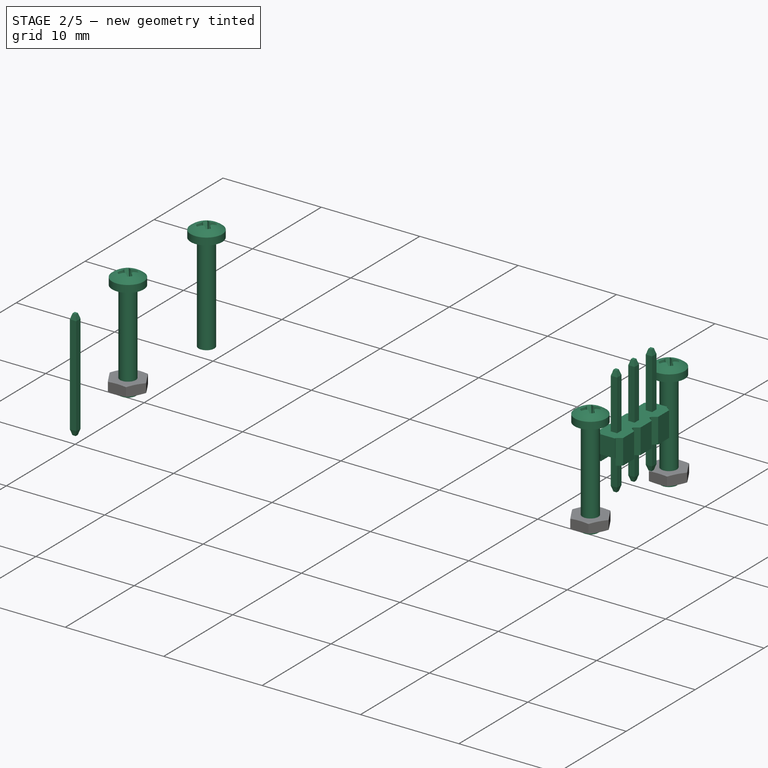
[diagram: stage 2 of 5 — iso view after this stage's code; geometry added in this stage tinted green]
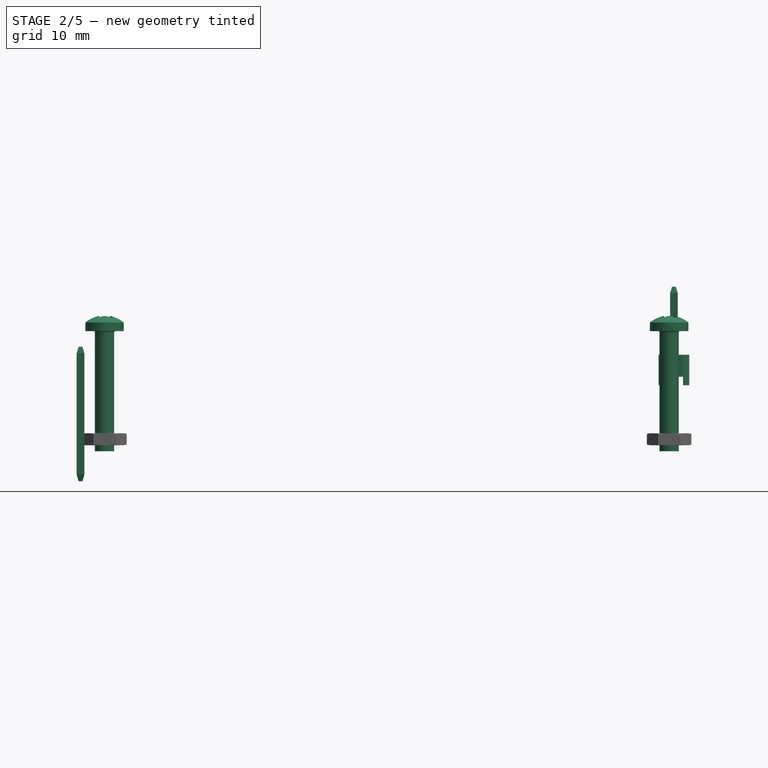
[diagram: stage 2 of 5 — front view after this stage's code; geometry added in this stage tinted green]
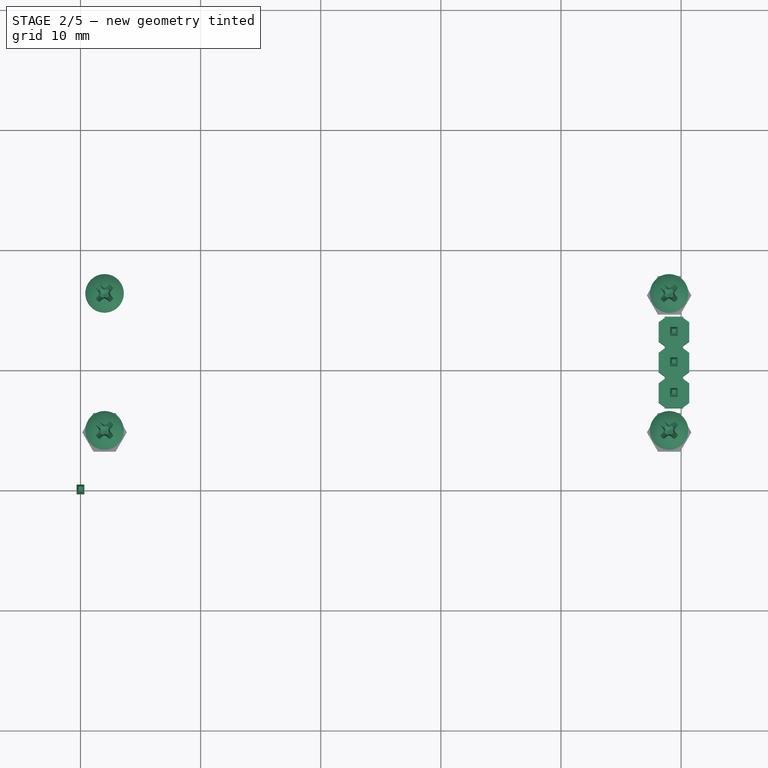
[diagram: stage 2 of 5 — top view after this stage's code; geometry added in this stage tinted green]
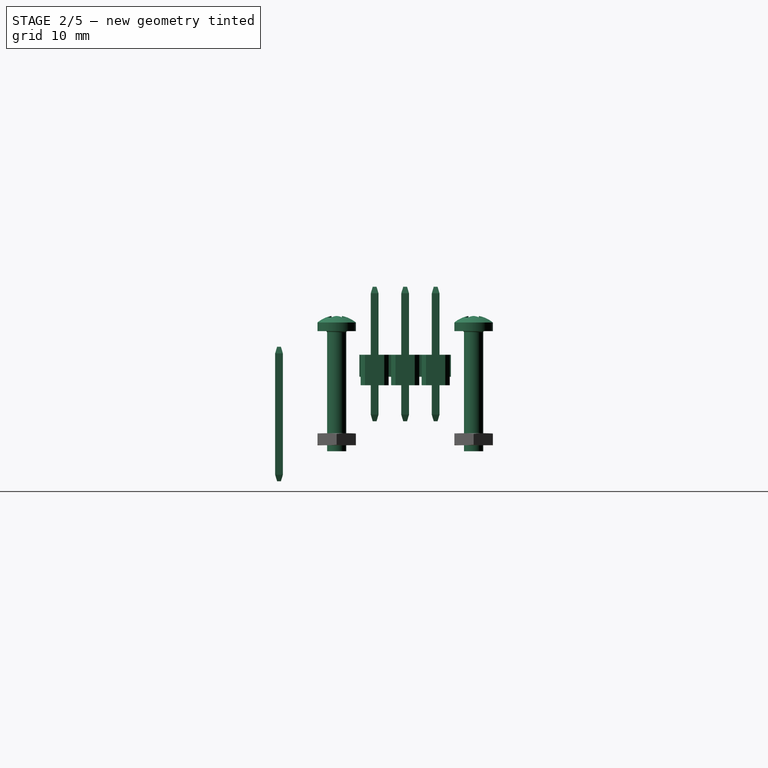
[diagram: stage 2 of 5 — right view after this stage's code; geometry added in this stage tinted green]
FEATURE [Part::Part2DObjectPython] ShapeString  # Draft 2D object (typed FeaturePython)
  FontFile = <path>
  Placement = pos=(5,12,9.5) rot=(0,0,1;0rad)
  Size = 5
  String = RASPBERRY PI
  Tracking = 0
FEATURE [Part::Part2DObjectPython] ShapeString001  # Draft 2D object (typed FeaturePython)
  FontFile = <path>
  Placement = pos=(30,5,9.5) rot=(0,0,1;0rad)
  Size = 5
  String = PICO
  Tracking = 0
FEATURE [Part::FeaturePython] Screw  label="M1.6x10-Screw"  # Fasteners workbench fastener (typed FeaturePython)
  Placement = pos=(2,16.2,9.5) rot=(0,0,1;0rad)
  diameter = 1
  invert = false
  length = 5
  lengthCustom = 10
  matchOuter = false
  offset = 0
  thread = false
  type = 33
FEATURE [Part::FeaturePython] Screw001  label="M1.6x10-Screw"  # Fasteners workbench fastener (typed FeaturePython)
  Placement = pos=(2,4.8,9.5) rot=(0,0,1;0rad)
  diameter = 1
  invert = false
  length = 5
  lengthCustom = 10
  matchOuter = false
  offset = 0
  thread = false
  type = 33
FEATURE [Part::FeaturePython] Screw002  label="M1.6x10-Screw"  # Fasteners workbench fastener (typed FeaturePython)
  Placement = pos=(49,4.8,9.5) rot=(0,0,1;0rad)
  diameter = 1
  invert = false
  length = 5
  lengthCustom = 10
  matchOuter = false
  offset = 0
  thread = false
  type = 33
FEATURE [Part::FeaturePython] Screw003  label="M1.6x10-Screw"  # Fasteners workbench fastener (typed FeaturePython)
  Placement = pos=(49,16.2,9.5) rot=(0,0,1;0rad)
  diameter = 1
  invert = false
  length = 5
  lengthCustom = 10
  matchOuter = false
  offset = 0
  thread = false
  type = 33
FEATURE [Sketcher::SketchObject] Sketch010  label="pin-base-sketch"
  FullyConstrained = false
  MapMode = 5
  sketch-geometry (4):
    g0: LineSegment StartX=-0.32 StartY=0.32 StartZ=0 EndX=0.32 EndY=0.32 EndZ=0
    g1: LineSegment StartX=0.32 StartY=0.32 StartZ=0 EndX=0.32 EndY=-0.32 EndZ=0
    g2: LineSegment StartX=0.32 StartY=-0.32 StartZ=0 EndX=-0.32 EndY=-0.32 EndZ=0
    g3: LineSegment StartX=-0.32 StartY=-0.32 StartZ=0 EndX=-0.32 EndY=0.32 EndZ=0
  constraints (11):
    c: Coincident(g0,g1)
    c: Coincident(g1,g2)
    c: Coincident(g2,g3)
    c: Coincident(g3,g0)
    c: Horizontal(g0)
    c: Horizontal(g2)
    c: Vertical(g1)
    c: Vertical(g3)
    c: Symmetric(g0,g1,g-1)
    c: Equal(g0,g3)
    c: DistanceX(g0) = 0.64
FEATURE [PartDesign::Pad] Pad001  label="pin-base"
  AllowMultiFace = false
  AlongCustomVector = true
  Direction = (1,1,1)
  Length = 10.108
  Length2 = 100
  Midplane = true
  Profile = -> Sketch003
  Refine = true
  Type = 0
FEATURE [Sketcher::SketchObject] Sketch011  label="pin-end-bottom-base-sketch"
  FullyConstrained = false
  MapMode = 5
  sketch-geometry (4):
    g0: LineSegment StartX=-0.32 StartY=0.32 StartZ=0 EndX=0.32 EndY=0.32 EndZ=0
    g1: LineSegment StartX=0.32 StartY=0.32 StartZ=0 EndX=0.32 EndY=-0.32 EndZ=0
    g2: LineSegment StartX=0.32 StartY=-0.32 StartZ=0 EndX=-0.32 EndY=-0.32 EndZ=0
    g3: LineSegment StartX=-0.32 StartY=-0.32 StartZ=0 EndX=-0.32 EndY=0.32 EndZ=0
  constraints (11):
    c: Coincident(g0,g1)
    c: Coincident(g1,g2)
    c: Coincident(g2,g3)
    c: Coincident(g3,g0)
    c: Horizontal(g0)
    c: Horizontal(g2)
    c: Vertical(g1)
    c: Vertical(g3)
    c: Symmetric(g0,g1,g-1)
    c: Equal(g0,g3)
    c: DistanceX(g0) = 0.64
FEATURE [Sketcher::SketchObject] Sketch012  label="pin-end-top-base-sketch"
  FullyConstrained = false
  MapMode = 5
  Placement = pos=(0,0,0.546) rot=(0,0,1;0rad)
  sketch-geometry (4):
    g0: LineSegment StartX=-0.16 StartY=0.16 StartZ=0 EndX=0.16 EndY=0.16 EndZ=0
    g1: LineSegment StartX=0.16 StartY=0.16 StartZ=0 EndX=0.16 EndY=-0.16 EndZ=0
    g2: LineSegment StartX=0.16 StartY=-0.16 StartZ=0 EndX=-0.16 EndY=-0.16 EndZ=0
    g3: LineSegment StartX=-0.16 StartY=-0.16 StartZ=0 EndX=-0.16 EndY=0.16 EndZ=0
  constraints (11):
    c: Coincident(g0,g1)
    c: Coincident(g1,g2)
    c: Coincident(g2,g3)
    c: Coincident(g3,g0)
    c: Horizontal(g0)
    c: Horizontal(g2)
    c: Vertical(g1)
    c: Vertical(g3)
    c: Symmetric(g0,g1,g-1)
    c: Equal(g0,g3)
    c: DistanceX(g0) = 0.32
FEATURE [Part::Loft] Loft  label="pin-end"
  Closed = false
  MaxDegree = 5
  Placement = pos=(0,0,5.054) rot=(0,0,1;0rad)
  Ruled = false
  Sections = -> [Sketch011,Sketch012]
  Solid = true
FEATURE [Part::Mirroring] Part__Mirroring  label="pin-end (Mirror #1)"
  Base = (0,0,0)
  Normal = (0,0,1)
  Source = -> Loft
FEATURE [Part::MultiFuse] Fusion008  label="pin"
  Placement = pos=(0,0,2.6) rot=(0,0,1;0rad)
  Refine = true
  Shapes = -> [Pad001,Loft,Part__Mirroring]
FEATURE [App::DocumentObjectGroup] Group001  label="pin-src"
  Group = -> [Loft,Pad001,Part__Mirroring,Fusion008,Array002]
FEATURE [Part::Feature] Array003  label="pin-support-array"
  Placement = pos=(-2.54,0,0) rot=(0,0,1;0rad)
  shape: bbox 7.62 x 2.54 x 2.54 mm, 66 faces, 3 solids (baked)
FEATURE [Part::Feature] Array002001  label="pin-array"
  Placement = pos=(-2.54,0,0) rot=(0,0,1;0rad)
  shape: bbox 5.72 x 0.64 x 11.2 mm, 42 faces, 3 solids (baked)
FEATURE [Part::MultiFuse] Fusion009  label="PINOS"
  Placement = pos=(49.4,10.5,4.999) rot=(0,0,1;1.5708rad)
  Refine = true
  Shapes = -> [Array002001,Array003]
FEATURE [App::DocumentObjectGroup] Group002  label="PINOS"
  Group = -> [Sketch010,Group,Group001,Sketch013,Sketch014,Sketch015,Fusion009,mirror002]
FEATURE [App::DocumentObjectGroup] Group003  label="PARAFUSOS"
  Group = -> [Screw,Screw001,Screw002,Screw003,Nut,Nut001,Nut002,Nut003,Nut_solid,Nut001_solid,Nut002_solid,Nut003_solid]
note: 2 file-system paths scrubbed to <path> (originals preserved in the JSON sidecar)
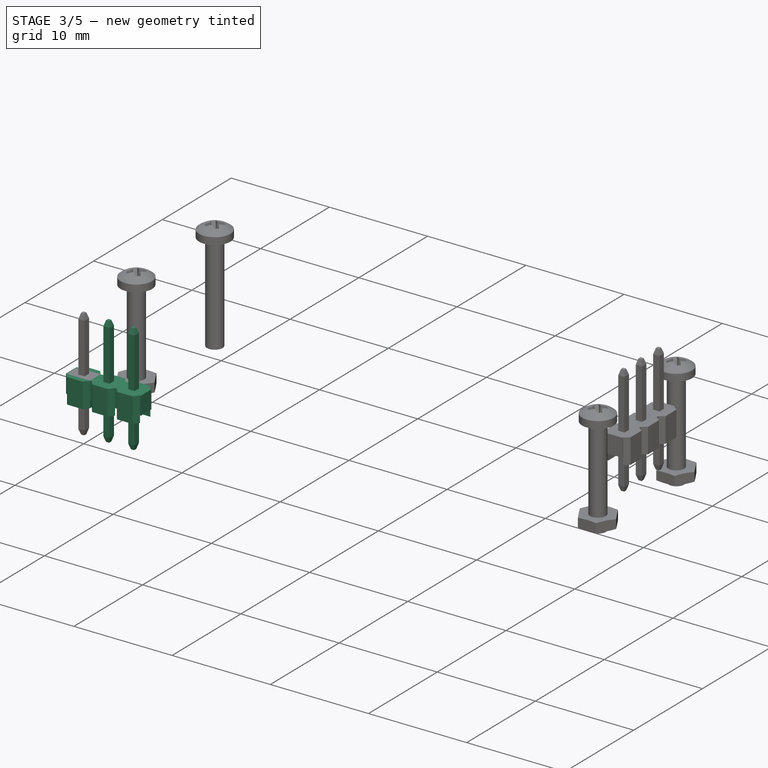
[diagram: stage 3 of 5 — iso view after this stage's code; geometry added in this stage tinted green]
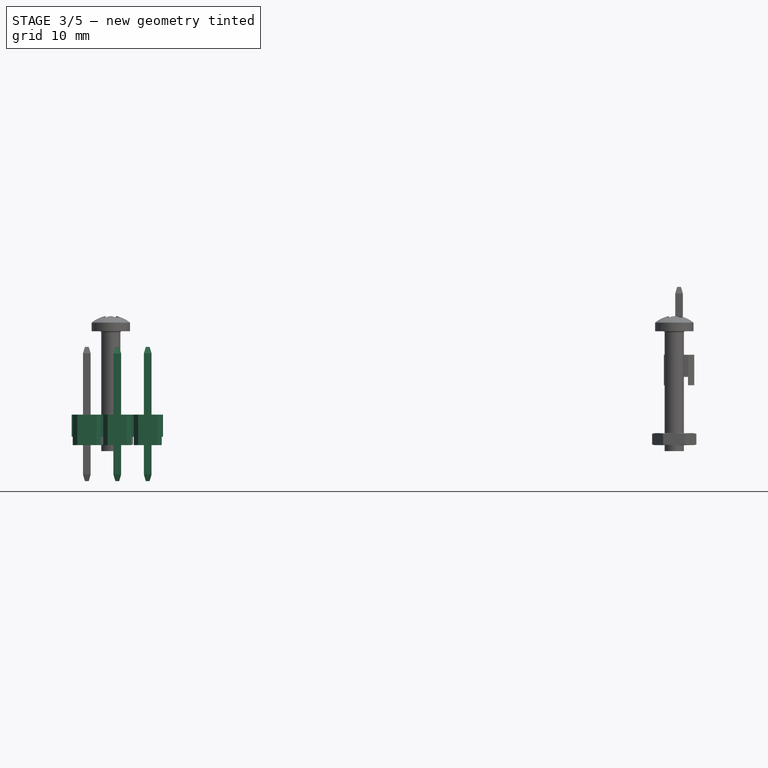
[diagram: stage 3 of 5 — front view after this stage's code; geometry added in this stage tinted green]
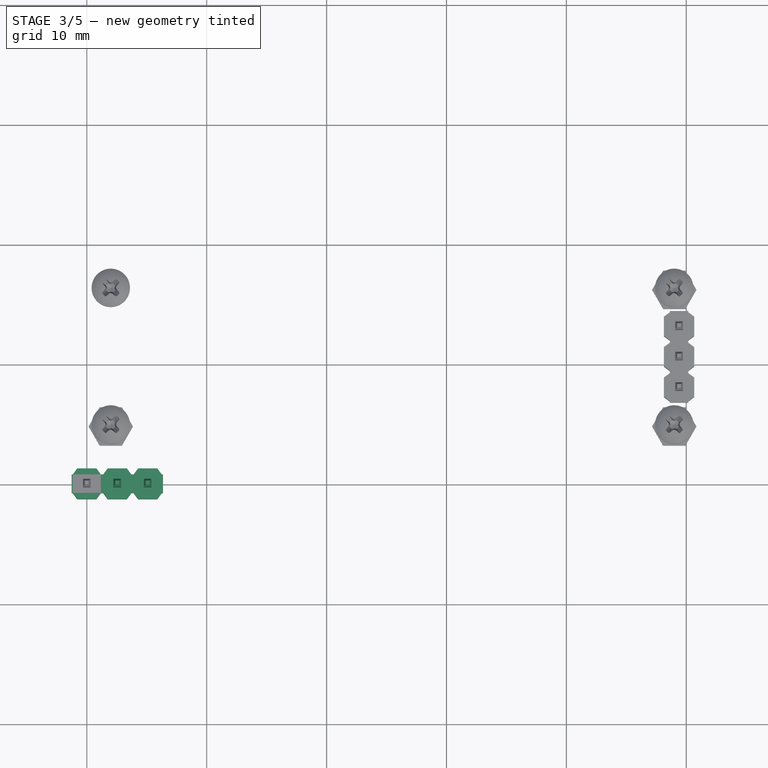
[diagram: stage 3 of 5 — top view after this stage's code; geometry added in this stage tinted green]
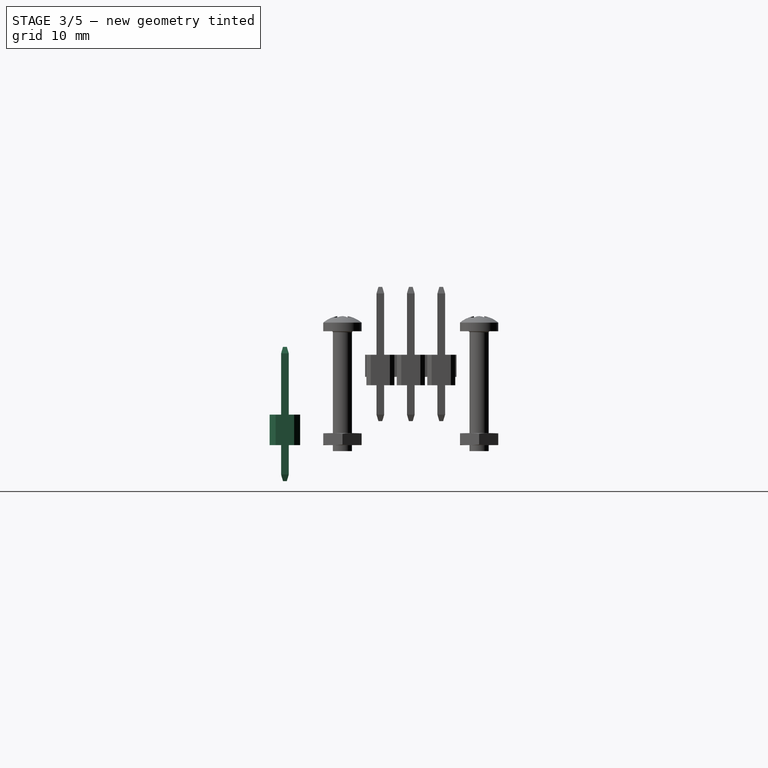
[diagram: stage 3 of 5 — right view after this stage's code; geometry added in this stage tinted green]
FEATURE [Sketcher::SketchObject] Sketch001  label="FUNDO"
  ExternalGeometry = -> [Part__Feature]
  FullyConstrained = false
  Placement = pos=(0,0,1) rot=(0,0,1;0rad)
  expr: Constraints[45] = Sketch.Constraints[45]
  expr: Constraints[71] = Sketch.Constraints[71]
  expr: Constraints[55] = Sketch.Constraints[55]
  expr: Constraints[56] = Sketch.Constraints[56]
  expr: Constraints[72] = Sketch.Constraints[72]
  expr: Constraints[152] = Sketch.Constraints[152]
  expr: .Placement.Base.z = Spreadsheet.espessura
  sketch-geometry (57):
    g0: LineSegment StartX=-2 StartY=-2 StartZ=0 EndX=53 EndY=-2 EndZ=0
    g1: LineSegment StartX=53 StartY=-2 StartZ=0 EndX=53 EndY=23 EndZ=0
    g2: LineSegment StartX=53 StartY=23 StartZ=0 EndX=-2 EndY=23 EndZ=0
    g3: LineSegment StartX=-2 StartY=23 StartZ=0 EndX=-2 EndY=-2 EndZ=0
    g4: LineSegment StartX=-1 StartY=22 StartZ=0 EndX=52 EndY=22 EndZ=0
    g5: LineSegment StartX=52 StartY=22 StartZ=0 EndX=52 EndY=-1 EndZ=0
    g6: LineSegment StartX=52 StartY=-1 StartZ=0 EndX=-1 EndY=-1 EndZ=0
    g7: LineSegment StartX=-1 StartY=-1 StartZ=0 EndX=-1 EndY=5.5 EndZ=0
    g8: LineSegment StartX=1.42e-14 StartY=21 StartZ=0 EndX=51 EndY=21 EndZ=0
    g9: LineSegment StartX=51 StartY=13.84 StartZ=0 EndX=51 EndY=7.16 EndZ=0
    g10: LineSegment StartX=51 StartY=-2.13e-14 StartZ=0 EndX=0 EndY=0 EndZ=0
    g11: LineSegment StartX=26.4196 StartY=23 StartZ=0 EndX=26.4196 EndY=22 EndZ=0
    g12: LineSegment StartX=26.4196 StartY=22 StartZ=0 EndX=26.4196 EndY=21 EndZ=0
    g13: LineSegment StartX=51 StartY=10.5 StartZ=0 EndX=52 EndY=10.5 EndZ=0
    g14: LineSegment StartX=52 StartY=10.5 StartZ=0 EndX=53 EndY=10.5 EndZ=0
    g15: LineSegment StartX=-2 StartY=15.5 StartZ=0 EndX=-1 EndY=15.5 EndZ=0
    g16: LineSegment StartX=-2 StartY=5.5 StartZ=0 EndX=-1 EndY=5.5 EndZ=0
    g17: LineSegment StartX=-1 StartY=15.5 StartZ=0 EndX=-1 EndY=22 EndZ=0
    g18: LineSegment StartX=-1 StartY=15.5 StartZ=0 EndX=-1 EndY=5.5 EndZ=0
    g19: LineSegment StartX=1.42e-14 StartY=21 StartZ=0 EndX=0 EndY=0 EndZ=0
    g20: LineSegment StartX=-1 StartY=10.5 StartZ=0 EndX=7.1e-15 EndY=10.5 EndZ=0
    g21: Circle CenterX=2 CenterY=16.2 CenterZ=0 NormalX=0 NormalY=0 NormalZ=1 AngleXU=0 Radius=1.1
    g22: Circle CenterX=2 CenterY=16.2 CenterZ=0 NormalX=0 NormalY=0 NormalZ=1 AngleXU=0 Radius=1.75
    g23: Circle CenterX=49 CenterY=16.2 CenterZ=0 NormalX=0 NormalY=0 NormalZ=1 AngleXU=0 Radius=1.1
    g24: Circle CenterX=49 CenterY=16.2 CenterZ=0 NormalX=0 NormalY=0 NormalZ=1 AngleXU=0 Radius=1.75
    g25: Circle CenterX=49 CenterY=4.8 CenterZ=0 NormalX=0 NormalY=0 NormalZ=1 AngleXU=0 Radius=1.1
    g26: Circle CenterX=49 CenterY=4.8 CenterZ=0 NormalX=0 NormalY=0 NormalZ=1 AngleXU=0 Radius=1.75
    g27: Circle CenterX=2 CenterY=4.8 CenterZ=0 NormalX=0 NormalY=0 NormalZ=1 AngleXU=0 Radius=1.1
    g28: Circle CenterX=2 CenterY=4.8 CenterZ=0 NormalX=0 NormalY=0 NormalZ=1 AngleXU=0 Radius=1.75
    g29: LineSegment StartX=2 StartY=18.45 StartZ=0 EndX=0.0514428 EndY=17.325 EndZ=0
    g30: LineSegment StartX=0.0514428 StartY=17.325 StartZ=0 EndX=0.0514428 EndY=15.075 EndZ=0
    g31: LineSegment StartX=0.0514428 StartY=15.075 StartZ=0 EndX=2 EndY=13.95 EndZ=0
    g32: LineSegment StartX=2 StartY=13.95 StartZ=0 EndX=3.94856 EndY=15.075 EndZ=0
    g33: LineSegment StartX=3.94856 StartY=15.075 StartZ=0 EndX=3.94856 EndY=17.325 EndZ=0
    g34: LineSegment StartX=3.94856 StartY=17.325 StartZ=0 EndX=2 EndY=18.45 EndZ=0
    g35: Circle CenterX=2 CenterY=16.2 CenterZ=0 NormalX=0 NormalY=0 NormalZ=1 AngleXU=0 Radius=2.25
    g36: LineSegment StartX=49 StartY=18.45 StartZ=0 EndX=47.0514 EndY=17.325 EndZ=0
    g37: LineSegment StartX=47.0514 StartY=17.325 StartZ=0 EndX=47.0514 EndY=15.075 EndZ=0
    g38: LineSegment StartX=47.0514 StartY=15.075 StartZ=0 EndX=49 EndY=13.95 EndZ=0
    g39: LineSegment StartX=49 StartY=13.95 StartZ=0 EndX=50.9486 EndY=15.075 EndZ=0
    g40: LineSegment StartX=50.9486 StartY=15.075 StartZ=0 EndX=50.9486 EndY=17.325 EndZ=0
    g41: LineSegment StartX=50.9486 StartY=17.325 StartZ=0 EndX=49 EndY=18.45 EndZ=0
    g42: Circle CenterX=49 CenterY=16.2 CenterZ=0 NormalX=0 NormalY=0 NormalZ=1 AngleXU=0 Radius=2.25
    g43: LineSegment StartX=49 StartY=7.05 StartZ=0 EndX=47.0514 EndY=5.925 EndZ=0
    g44: LineSegment StartX=47.0514 StartY=5.925 StartZ=0 EndX=47.0514 EndY=3.675 EndZ=0
    g45: LineSegment StartX=47.0514 StartY=3.675 StartZ=0 EndX=49 EndY=2.55 EndZ=0
    g46: LineSegment StartX=49 StartY=2.55 StartZ=0 EndX=50.9486 EndY=3.675 EndZ=0
    g47: LineSegment StartX=50.9486 StartY=3.675 StartZ=0 EndX=50.9486 EndY=5.925 EndZ=0
    g48: LineSegment StartX=50.9486 StartY=5.925 StartZ=0 EndX=49 EndY=7.05 EndZ=0
    g49: Circle CenterX=49 CenterY=4.8 CenterZ=0 NormalX=0 NormalY=0 NormalZ=1 AngleXU=0 Radius=2.25
    g50: LineSegment StartX=2 StartY=2.55 StartZ=0 EndX=3.94856 EndY=3.675 EndZ=0
    g51: LineSegment StartX=3.94856 StartY=3.675 StartZ=0 EndX=3.94856 EndY=5.925 EndZ=0
    g52: LineSegment StartX=3.94856 StartY=5.925 StartZ=0 EndX=2 EndY=7.05 EndZ=0
    g53: LineSegment StartX=2 StartY=7.05 StartZ=0 EndX=0.0514428 EndY=5.925 EndZ=0
    g54: LineSegment StartX=0.0514428 StartY=5.925 StartZ=0 EndX=0.0514428 EndY=3.675 EndZ=0
    g55: LineSegment StartX=0.0514428 StartY=3.675 StartZ=0 EndX=2 EndY=2.55 EndZ=0
    g56: Circle CenterX=2 CenterY=4.8 CenterZ=0 NormalX=0 NormalY=0 NormalZ=1 AngleXU=0 Radius=2.25
  constraints (137):
    c: Coincident(g0,g1)
    c: Coincident(g1,g2)
    c: Coincident(g2,g3)
    c: Coincident(g3,g0)
    c: Horizontal(g0)
    c: Horizontal(g2)
    c: Vertical(g1)
    c: Vertical(g3)
    c: Coincident(g4,g5)
    c: Coincident(g5,g6)
    c: Coincident(g6,g7)
    c: Coincident(g17,g4)
    c: Horizontal(g4)
    c: Horizontal(g6)
    c: Vertical(g5)
    c: Vertical(g7)
    c: Coincident(g8,g-5)
    c: Coincident(g8,g-3)
    c: Coincident(g9,g-3)
    c: Coincident(g9,g-4)
    c: Coincident(g10,g-4)
    c: Coincident(g10,g-1)
    c: PointOnObject(g11,g2)
    c: PointOnObject(g11,g4)
    c: Vertical(g11)
    c: Coincident(g11,g12)
    c: PointOnObject(g12,g8)
    c: Vertical(g12)
    c: PointOnObject(g13,g5)
    c: Horizontal(g13)
    c: Coincident(g13,g14)
    c: Horizontal(g14)
    c: PointOnObject(g15,g3)
    c: Horizontal(g15)
    c: PointOnObject(g16,g3)
    c: Horizontal(g16)
    c: Coincident(g7,g16)
    c: Coincident(g17,g15)
    c: Coincident(g18,g17)
    c: Coincident(g18,g7)
    c: Vertical(g18)
    c: Equal(g14,g11)
    c: Equal(g11,g15)
    c: Vertical(g17)
    c: Equal(g17,g7)
    c: DistanceY(g16,g15) = 10
    c: Coincident(g19,g8)
    c: Coincident(g19,g-1)
    c: Horizontal(g20)
    c: Symmetric(g18,g18,g20)
    c: Symmetric(g19,g19,g20)
    c: Symmetric(g9,g9,g13)
    c: Symmetric(g1,g1,g14)
    c: Equal(g12,g20)
    c: Equal(g20,g13)
    c: DistanceY(g12,g12) = 1
    c: DistanceY(g11,g11) = 1
    c: Coincident(g21,g-6)
    c: Coincident(g22,g21)
    c: Coincident(g23,g-7)
    c: Coincident(g24,g23)
    c: Coincident(g25,g-8)
    c: Coincident(g26,g25)
    c: Coincident(g27,g-9)
    c: Coincident(g28,g27)
    c: Equal(g21,g23)
    c: Equal(g23,g25)
    c: Equal(g25,g27)
    c: Equal(g22,g24)
    c: Equal(g24,g26)
    c: Equal(g26,g28)
    c: Diameter(g22) = 3.5
    c: Diameter(g21) = 2.2
    c: Coincident(g29,g30)
    c: Coincident(g30,g31)
    c: Coincident(g31,g32)
    c: Coincident(g32,g33)
    c: Coincident(g33,g34)
    c: Coincident(g34,g29)
    c: Equal(g29, g30-g34) x5
    c: PointOnObject(g29,g35)
    c: PointOnObject(g30,g35)
    c: PointOnObject(g31,g35)
    c: PointOnObject(g32,g35)
    c: PointOnObject(g33,g35)
    c: PointOnObject(g34,g35)
    c: Coincident(g35,g21)
    c: Coincident(g36,g37)
    c: Coincident(g37,g38)
    c: Coincident(g38,g39)
    c: Coincident(g39,g40)
    c: Coincident(g40,g41)
    c: Coincident(g41,g36)
    c: Equal(g36, g37-g41) x5
    c: PointOnObject(g36,g42)
    c: PointOnObject(g37,g42)
    c: PointOnObject(g38,g42)
    c: PointOnObject(g39,g42)
    c: PointOnObject(g40,g42)
    c: PointOnObject(g41,g42)
    c: Coincident(g42,g23)
    c: Coincident(g43,g44)
    c: Coincident(g44,g45)
    c: Coincident(g45,g46)
    c: Coincident(g46,g47)
    c: Coincident(g47,g48)
    c: Coincident(g48,g43)
    c: Equal(g43, g44-g48) x5
    c: PointOnObject(g43,g49)
    c: PointOnObject(g44,g49)
    c: PointOnObject(g45,g49)
    c: PointOnObject(g46,g49)
    c: PointOnObject(g47,g49)
    c: PointOnObject(g48,g49)
    c: Coincident(g49,g25)
    c: Coincident(g50,g51)
    c: Coincident(g51,g52)
    c: Coincident(g52,g53)
    c: Coincident(g53,g54)
    c: Coincident(g54,g55)
    c: Coincident(g55,g50)
    c: Equal(g50, g51-g55) x5
    c: PointOnObject(g50,g56)
    c: PointOnObject(g51,g56)
    c: PointOnObject(g52,g56)
    c: PointOnObject(g53,g56)
    c: PointOnObject(g54,g56)
    c: PointOnObject(g55,g56)
    c: Coincident(g56,g27)
    c: Vertical(g33)
    c: Vertical(g51)
    c: Vertical(g44)
    c: Vertical(g37)
    c: Equal(g42,g49)
    c: Equal(g49,g35)
    c: Equal(g35,g56)
    c: Diameter(g35) = 4.5
FEATURE [Part::Compound] Compound
  Links = -> [Part__Feature043,Part__Feature,Part__Feature001,Part__Feature002,Part__Feature003,Part__Feature004,Part__Feature005,Part__Feature006,Part__Feature007,Part__Feature008,Part__Feature009,Part__Feature010,Part__Feature011,Part__Feature012,Part__Feature013,Part__Feature014,Part__Feature015,Part__Feature016,Part__Feature017,Part__Feature018,Part__Feature019,Part__Feature020,Part__Feature021,+21 more]
  Placement = pos=(0,0,4) rot=(0,0,1;0rad)
  expr: .Placement.Base.z = Spreadsheet.espessura + Spreadsheet.folga + Spreadsheet.solda
FEATURE [Sketcher::SketchObject] Sketch005  label="CILINDROS INTERNOS SUPERIORES"
  ExternalGeometry = -> [Part__Feature]
  FullyConstrained = false
  Placement = pos=(0,0,5) rot=(0,0,1;0rad)
  expr: .Placement.Base.z = Spreadsheet.solda + Spreadsheet.folga + 2 * Spreadsheet.espessura
  expr: Constraints[152] = Sketch001.Constraints[152]
  expr: Constraints[72] = Sketch001.Constraints[72]
  expr: Constraints[56] = Sketch001.Constraints[56]
  expr: Constraints[55] = Sketch001.Constraints[55]
  expr: Constraints[71] = Sketch001.Constraints[71]
  expr: Constraints[45] = Sketch001.Constraints[45]
  sketch-geometry (57):
    g0: LineSegment StartX=-2 StartY=-2 StartZ=0 EndX=53 EndY=-2 EndZ=0
    g1: LineSegment StartX=53 StartY=-2 StartZ=0 EndX=53 EndY=23 EndZ=0
    g2: LineSegment StartX=53 StartY=23 StartZ=0 EndX=-2 EndY=23 EndZ=0
    g3: LineSegment StartX=-2 StartY=23 StartZ=0 EndX=-2 EndY=-2 EndZ=0
    g4: LineSegment StartX=-1 StartY=22 StartZ=0 EndX=52 EndY=22 EndZ=0
    g5: LineSegment StartX=52 StartY=22 StartZ=0 EndX=52 EndY=-1 EndZ=0
    g6: LineSegment StartX=52 StartY=-1 StartZ=0 EndX=-1 EndY=-1 EndZ=0
    g7: LineSegment StartX=-1 StartY=-1 StartZ=0 EndX=-1 EndY=5.5 EndZ=0
    g8: LineSegment StartX=1.42e-14 StartY=21 StartZ=0 EndX=51 EndY=21 EndZ=0
    g9: LineSegment StartX=51 StartY=13.84 StartZ=0 EndX=51 EndY=7.16 EndZ=0
    g10: LineSegment StartX=51 StartY=-2.13e-14 StartZ=0 EndX=0 EndY=0 EndZ=0
    g11: LineSegment StartX=26.4196 StartY=23 StartZ=0 EndX=26.4196 EndY=22 EndZ=0
    g12: LineSegment StartX=26.4196 StartY=22 StartZ=0 EndX=26.4196 EndY=21 EndZ=0
    g13: LineSegment StartX=51 StartY=10.5 StartZ=0 EndX=52 EndY=10.5 EndZ=0
    g14: LineSegment StartX=52 StartY=10.5 StartZ=0 EndX=53 EndY=10.5 EndZ=0
    g15: LineSegment StartX=-2 StartY=15.5 StartZ=0 EndX=-1 EndY=15.5 EndZ=0
    g16: LineSegment StartX=-2 StartY=5.5 StartZ=0 EndX=-1 EndY=5.5 EndZ=0
    g17: LineSegment StartX=-1 StartY=15.5 StartZ=0 EndX=-1 EndY=22 EndZ=0
    g18: LineSegment StartX=-1 StartY=15.5 StartZ=0 EndX=-1 EndY=5.5 EndZ=0
    g19: LineSegment StartX=1.42e-14 StartY=21 StartZ=0 EndX=0 EndY=0 EndZ=0
    g20: LineSegment StartX=-1 StartY=10.5 StartZ=0 EndX=7.1e-15 EndY=10.5 EndZ=0
    g21: Circle CenterX=2 CenterY=16.2 CenterZ=0 NormalX=0 NormalY=0 NormalZ=1 AngleXU=0 Radius=1.1
    g22: Circle CenterX=2 CenterY=16.2 CenterZ=0 NormalX=0 NormalY=0 NormalZ=1 AngleXU=0 Radius=1.75
    g23: Circle CenterX=49 CenterY=16.2 CenterZ=0 NormalX=0 NormalY=0 NormalZ=1 AngleXU=0 Radius=1.1
    g24: Circle CenterX=49 CenterY=16.2 CenterZ=0 NormalX=0 NormalY=0 NormalZ=1 AngleXU=0 Radius=1.75
    g25: Circle CenterX=49 CenterY=4.8 CenterZ=0 NormalX=0 NormalY=0 NormalZ=1 AngleXU=0 Radius=1.1
    g26: Circle CenterX=49 CenterY=4.8 CenterZ=0 NormalX=0 NormalY=0 NormalZ=1 AngleXU=0 Radius=1.75
    g27: Circle CenterX=2 CenterY=4.8 CenterZ=0 NormalX=0 NormalY=0 NormalZ=1 AngleXU=0 Radius=1.1
    g28: Circle CenterX=2 CenterY=4.8 CenterZ=0 NormalX=0 NormalY=0 NormalZ=1 AngleXU=0 Radius=1.75
    g29: LineSegment StartX=2 StartY=18.45 StartZ=0 EndX=0.0514428 EndY=17.325 EndZ=0
    g30: LineSegment StartX=0.0514428 StartY=17.325 StartZ=0 EndX=0.0514428 EndY=15.075 EndZ=0
    g31: LineSegment StartX=0.0514428 StartY=15.075 StartZ=0 EndX=2 EndY=13.95 EndZ=0
    g32: LineSegment StartX=2 StartY=13.95 StartZ=0 EndX=3.94856 EndY=15.075 EndZ=0
    g33: LineSegment StartX=3.94856 StartY=15.075 StartZ=0 EndX=3.94856 EndY=17.325 EndZ=0
    g34: LineSegment StartX=3.94856 StartY=17.325 StartZ=0 EndX=2 EndY=18.45 EndZ=0
    g35: Circle CenterX=2 CenterY=16.2 CenterZ=0 NormalX=0 NormalY=0 NormalZ=1 AngleXU=0 Radius=2.25
    g36: LineSegment StartX=49 StartY=18.45 StartZ=0 EndX=47.0514 EndY=17.325 EndZ=0
    g37: LineSegment StartX=47.0514 StartY=17.325 StartZ=0 EndX=47.0514 EndY=15.075 EndZ=0
    g38: LineSegment StartX=47.0514 StartY=15.075 StartZ=0 EndX=49 EndY=13.95 EndZ=0
    g39: LineSegment StartX=49 StartY=13.95 StartZ=0 EndX=50.9486 EndY=15.075 EndZ=0
    g40: LineSegment StartX=50.9486 StartY=15.075 StartZ=0 EndX=50.9486 EndY=17.325 EndZ=0
    g41: LineSegment StartX=50.9486 StartY=17.325 StartZ=0 EndX=49 EndY=18.45 EndZ=0
    g42: Circle CenterX=49 CenterY=16.2 CenterZ=0 NormalX=0 NormalY=0 NormalZ=1 AngleXU=0 Radius=2.25
    g43: LineSegment StartX=49 StartY=7.05 StartZ=0 EndX=47.0514 EndY=5.925 EndZ=0
    g44: LineSegment StartX=47.0514 StartY=5.925 StartZ=0 EndX=47.0514 EndY=3.675 EndZ=0
    g45: LineSegment StartX=47.0514 StartY=3.675 StartZ=0 EndX=49 EndY=2.55 EndZ=0
    g46: LineSegment StartX=49 StartY=2.55 StartZ=0 EndX=50.9486 EndY=3.675 EndZ=0
    g47: LineSegment StartX=50.9486 StartY=3.675 StartZ=0 EndX=50.9486 EndY=5.925 EndZ=0
    g48: LineSegment StartX=50.9486 StartY=5.925 StartZ=0 EndX=49 EndY=7.05 EndZ=0
    g49: Circle CenterX=49 CenterY=4.8 CenterZ=0 NormalX=0 NormalY=0 NormalZ=1 AngleXU=0 Radius=2.25
    g50: LineSegment StartX=2 StartY=2.55 StartZ=0 EndX=3.94856 EndY=3.675 EndZ=0
    g51: LineSegment StartX=3.94856 StartY=3.675 StartZ=0 EndX=3.94856 EndY=5.925 EndZ=0
    g52: LineSegment StartX=3.94856 StartY=5.925 StartZ=0 EndX=2 EndY=7.05 EndZ=0
    g53: LineSegment StartX=2 StartY=7.05 StartZ=0 EndX=0.0514428 EndY=5.925 EndZ=0
    g54: LineSegment StartX=0.0514428 StartY=5.925 StartZ=0 EndX=0.0514428 EndY=3.675 EndZ=0
    g55: LineSegment StartX=0.0514428 StartY=3.675 StartZ=0 EndX=2 EndY=2.55 EndZ=0
    g56: Circle CenterX=2 CenterY=4.8 CenterZ=0 NormalX=0 NormalY=0 NormalZ=1 AngleXU=0 Radius=2.25
  constraints (137):
    c: Coincident(g0,g1)
    c: Coincident(g1,g2)
    c: Coincident(g2,g3)
    c: Coincident(g3,g0)
    c: Horizontal(g0)
    c: Horizontal(g2)
    c: Vertical(g1)
    c: Vertical(g3)
    c: Coincident(g4,g5)
    c: Coincident(g5,g6)
    c: Coincident(g6,g7)
    c: Coincident(g17,g4)
    c: Horizontal(g4)
    c: Horizontal(g6)
    c: Vertical(g5)
    c: Vertical(g7)
    c: Coincident(g8,g-5)
    c: Coincident(g8,g-3)
    c: Coincident(g9,g-3)
    c: Coincident(g9,g-4)
    c: Coincident(g10,g-4)
    c: Coincident(g10,g-1)
    c: PointOnObject(g11,g2)
    c: PointOnObject(g11,g4)
    c: Vertical(g11)
    c: Coincident(g11,g12)
    c: PointOnObject(g12,g8)
    c: Vertical(g12)
    c: PointOnObject(g13,g5)
    c: Horizontal(g13)
    c: Coincident(g13,g14)
    c: Horizontal(g14)
    c: PointOnObject(g15,g3)
    c: Horizontal(g15)
    c: PointOnObject(g16,g3)
    c: Horizontal(g16)
    c: Coincident(g7,g16)
    c: Coincident(g17,g15)
    c: Coincident(g18,g17)
    c: Coincident(g18,g7)
    c: Vertical(g18)
    c: Equal(g14,g11)
    c: Equal(g11,g15)
    c: Vertical(g17)
    c: Equal(g17,g7)
    c: DistanceY(g16,g15) = 10
    c: Coincident(g19,g8)
    c: Coincident(g19,g-1)
    c: Horizontal(g20)
    c: Symmetric(g18,g18,g20)
    c: Symmetric(g19,g19,g20)
    c: Symmetric(g9,g9,g13)
    c: Symmetric(g1,g1,g14)
    c: Equal(g12,g20)
    c: Equal(g20,g13)
    c: DistanceY(g12,g12) = 1
    c: DistanceY(g11,g11) = 1
    c: Coincident(g21,g-6)
    c: Coincident(g22,g21)
    c: Coincident(g23,g-7)
    c: Coincident(g24,g23)
    c: Coincident(g25,g-8)
    c: Coincident(g26,g25)
    c: Coincident(g27,g-9)
    c: Coincident(g28,g27)
    c: Equal(g21,g23)
    c: Equal(g23,g25)
    c: Equal(g25,g27)
    c: Equal(g22,g24)
    c: Equal(g24,g26)
    c: Equal(g26,g28)
    c: Diameter(g22) = 3.5
    c: Diameter(g21) = 2.2
    c: Coincident(g29,g30)
    c: Coincident(g30,g31)
    c: Coincident(g31,g32)
    c: Coincident(g32,g33)
    c: Coincident(g33,g34)
    c: Coincident(g34,g29)
    c: Equal(g29, g30-g34) x5
    c: PointOnObject(g29,g35)
    c: PointOnObject(g30,g35)
    c: PointOnObject(g31,g35)
    c: PointOnObject(g32,g35)
    c: PointOnObject(g33,g35)
    c: PointOnObject(g34,g35)
    c: Coincident(g35,g21)
    c: Coincident(g36,g37)
    c: Coincident(g37,g38)
    c: Coincident(g38,g39)
    c: Coincident(g39,g40)
    c: Coincident(g40,g41)
    c: Coincident(g41,g36)
    c: Equal(g36, g37-g41) x5
    c: PointOnObject(g36,g42)
    c: PointOnObject(g37,g42)
    c: PointOnObject(g38,g42)
    c: PointOnObject(g39,g42)
    c: PointOnObject(g40,g42)
    c: PointOnObject(g41,g42)
    c: Coincident(g42,g23)
    c: Coincident(g43,g44)
    c: Coincident(g44,g45)
    c: Coincident(g45,g46)
    c: Coincident(g46,g47)
    c: Coincident(g47,g48)
    c: Coincident(g48,g43)
    c: Equal(g43, g44-g48) x5
    c: PointOnObject(g43,g49)
    c: PointOnObject(g44,g49)
    c: PointOnObject(g45,g49)
    c: PointOnObject(g46,g49)
    c: PointOnObject(g47,g49)
    c: PointOnObject(g48,g49)
    c: Coincident(g49,g25)
    c: Coincident(g50,g51)
    c: Coincident(g51,g52)
    c: Coincident(g52,g53)
    c: Coincident(g53,g54)
    c: Coincident(g54,g55)
    c: Coincident(g55,g50)
    c: Equal(g50, g51-g55) x5
    c: PointOnObject(g50,g56)
    c: PointOnObject(g51,g56)
    c: PointOnObject(g52,g56)
    c: PointOnObject(g53,g56)
    c: PointOnObject(g54,g56)
    c: PointOnObject(g55,g56)
    c: Coincident(g56,g27)
    c: Vertical(g33)
    c: Vertical(g51)
    c: Vertical(g44)
    c: Vertical(g37)
    c: Equal(g42,g49)
    c: Equal(g49,g35)
    c: Equal(g35,g56)
    c: Diameter(g35) = 4.5
FEATURE [Part::Extrusion] Extrude005  label="CILINDROS INTERNOS SUPERIORES"
  Base = -> Sketch005
  Dir = (0,0,1)
  DirMode = 2
  FaceMakerClass = Part::FaceMakerBullseye
  LengthFwd = 3
  LengthRev = 0
  Solid = true
  Symmetric = false
FEATURE [Part::FeaturePython] Clone  label="body"  # WARN: FeaturePython — macro-defined, semantics opaque (R4)
  Placement = pos=(1.37,1.6,4.999) rot=(0,0,1;0rad)
  Scale = (1,1,0.5)
FEATURE [Part::FeaturePython] Clone003  label="body"  # Draft clone (typed FeaturePython)
  AttacherType = Attacher::AttachEngine3D
  Fuse = false
  Objects = -> [Clone]
  Placement = pos=(26.77,1.6,4.999) rot=(0,0,1;0rad)
  Scale = (1,1,1)
FEATURE [Part::MultiFuse] Fusion002
  Refine = true
  Shapes = -> [Clone003,Clone]
FEATURE [Part::Mirroring] mirror  label="Fusion002 (mirrored)"
  Base = (53,10.5,1)
  Normal = (1e-16,-1,0)
  Source = -> Fusion002
FEATURE [Sketcher::SketchObject] Sketch014  label="pin-support-cutout-1-sketch"
  ExternalGeometry = -> [Pad002]
  FullyConstrained = false
  MapMode = 5
  Placement = pos=(0,-0.77,0) rot=(1,0,0;1.5708rad)
  Support = -> [Pad002]
  sketch-geometry (12):
    g0: LineSegment StartX=1.17 StartY=0.7 StartZ=0 EndX=1.27 EndY=0.7 EndZ=0
    g1: LineSegment StartX=1.27 StartY=0.7 StartZ=0 EndX=1.27 EndY=0 EndZ=0
    g2: LineSegment StartX=1.27 StartY=0 StartZ=0 EndX=1.17 EndY=0 EndZ=0
    g3: LineSegment StartX=1.17 StartY=0 StartZ=0 EndX=1.17 EndY=0.7 EndZ=0
    g4: LineSegment StartX=1.17 StartY=0 StartZ=0 EndX=1.17 EndY=-0.1 EndZ=0
    g5: LineSegment StartX=1.17 StartY=-0.1 StartZ=0 EndX=1.37 EndY=-0.1 EndZ=0
    g6: LineSegment StartX=1.37 StartY=-0.1 StartZ=0 EndX=1.37 EndY=0.7 EndZ=0
    g7: LineSegment StartX=1.37 StartY=0.7 StartZ=0 EndX=1.27 EndY=0.7 EndZ=0
    g8: LineSegment StartX=-1.37 StartY=0.7 StartZ=0 EndX=-1.17 EndY=0.7 EndZ=0
    g9: LineSegment StartX=-1.17 StartY=0.7 StartZ=0 EndX=-1.17 EndY=-0.1 EndZ=0
    g10: LineSegment StartX=-1.17 StartY=-0.1 StartZ=0 EndX=-1.37 EndY=-0.1 EndZ=0
    g11: LineSegment StartX=-1.37 StartY=-0.1 StartZ=0 EndX=-1.37 EndY=0.7 EndZ=0
  constraints (33):
    c: Coincident(g0,g1)
    c: Coincident(g1,g2)
    c: Coincident(g2,g3)
    c: Coincident(g3,g0)
    c: Horizontal(g0)
    c: Horizontal(g2)
    c: Vertical(g1)
    c: PointOnObject(g0,g-3)
    c: Coincident(g2,g-3)
    c: Coincident(g1,g-4)
    c: Coincident(g4,g5)
    c: Coincident(g5,g6)
    c: Coincident(g6,g7)
    c: Horizontal(g5)
    c: Horizontal(g7)
    c: Vertical(g6)
    c: Vertical(g4)
    c: Coincident(g2,g4)
    c: Coincident(g7,g0)
    c: DistanceY(g2,g0) = 0.7
    c: Equal(g4,g7)
    c: DistanceX(g7) = -0.1
    c: Coincident(g8,g9)
    c: Coincident(g9,g10)
    c: Coincident(g10,g11)
    c: Coincident(g11,g8)
    c: Horizontal(g8)
    c: Horizontal(g10)
    c: Vertical(g9)
    c: Vertical(g11)
    c: Symmetric(g8,g0,g-2)
    c: Symmetric(g8,g6,g-2)
    c: Symmetric(g9,g4,g-2)
FEATURE [PartDesign::Pocket] Pocket001002  label="pin-support-cutout-1"
  AllowMultiFace = false
  Length = 5
  Length2 = 100
  Profile = -> Sketch007
  Refine = true
  Type = 1
FEATURE [Sketcher::SketchObject] Sketch015  label="pin-support-cutout-2-sketch"
  FullyConstrained = false
  MapMode = 5
  Placement = pos=(0,0,0) rot=(1,0,0;3.14159rad)
  Support = -> [Pocket001002]
  sketch-geometry (4):
    g0: LineSegment StartX=-1.5 StartY=0.75 StartZ=0 EndX=1.5 EndY=0.75 EndZ=0
    g1: LineSegment StartX=1.5 StartY=0.75 StartZ=0 EndX=1.5 EndY=-0.75 EndZ=0
    g2: LineSegment StartX=1.5 StartY=-0.75 StartZ=0 EndX=-1.5 EndY=-0.75 EndZ=0
    g3: LineSegment StartX=-1.5 StartY=-0.75 StartZ=0 EndX=-1.5 EndY=0.75 EndZ=0
  constraints (11):
    c: Coincident(g0,g1)
    c: Coincident(g1,g2)
    c: Coincident(g2,g3)
    c: Coincident(g3,g0)
    c: Horizontal(g0)
    c: Horizontal(g2)
    c: Vertical(g1)
    c: Vertical(g3)
    c: Symmetric(g0,g1,g-1)
    c: DistanceY(g3) = 1.5
    c: DistanceX(g0) = 3
FEATURE [PartDesign::Pocket] Pocket001003  label="pin-support-cutout-2"
  AllowMultiFace = false
  Length = 0.7
  Length2 = 100
  Profile = -> Sketch008
  Refine = true
  Type = 0
FEATURE [Part::FeaturePython] Array  # Draft array (typed FeaturePython)
  Angle = 360
  ArrayType = 0
  Axis = (0,0,1)
  Base = -> Pocket001003
  Center = (0,0,0)
  IntervalX = (2.54,0,0)
  IntervalY = (0,1,0)
  IntervalZ = (0,0,1)
  NumberPolar = 1
  NumberX = 3
  NumberY = 1
  NumberZ = 1
FEATURE [App::DocumentObjectGroup] Group  label="pin-support-src"
  Group = -> [Pad002,Pocket001002,Pocket001003,Array]
FEATURE [Part::FeaturePython] Array002  # Draft array (typed FeaturePython)
  Angle = 360
  ArrayType = 0
  Axis = (0,0,1)
  Base = -> Fusion008
  Center = (0,0,0)
  IntervalX = (2.54,0,0)
  IntervalY = (0,1,0)
  IntervalZ = (0,0,1)
  NumberPolar = 1
  NumberX = 3
  NumberY = 1
  NumberZ = 1
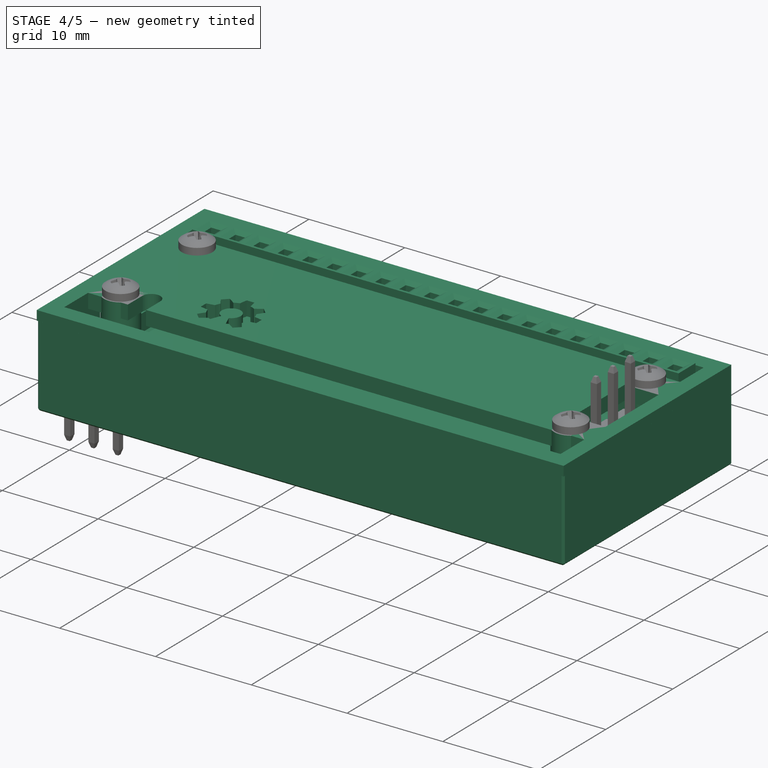
[diagram: stage 4 of 5 — iso view after this stage's code; geometry added in this stage tinted green]
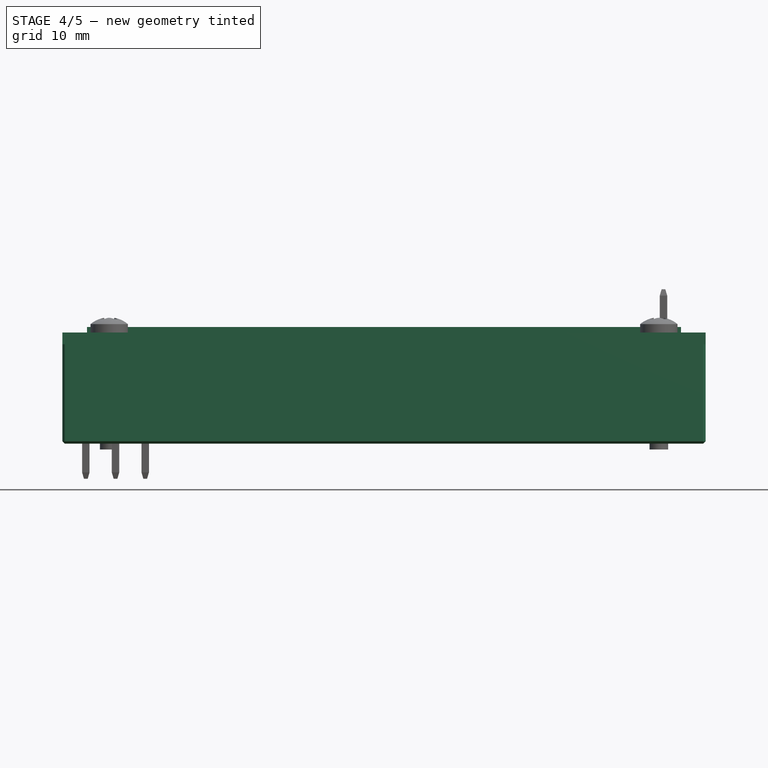
[diagram: stage 4 of 5 — front view after this stage's code; geometry added in this stage tinted green]
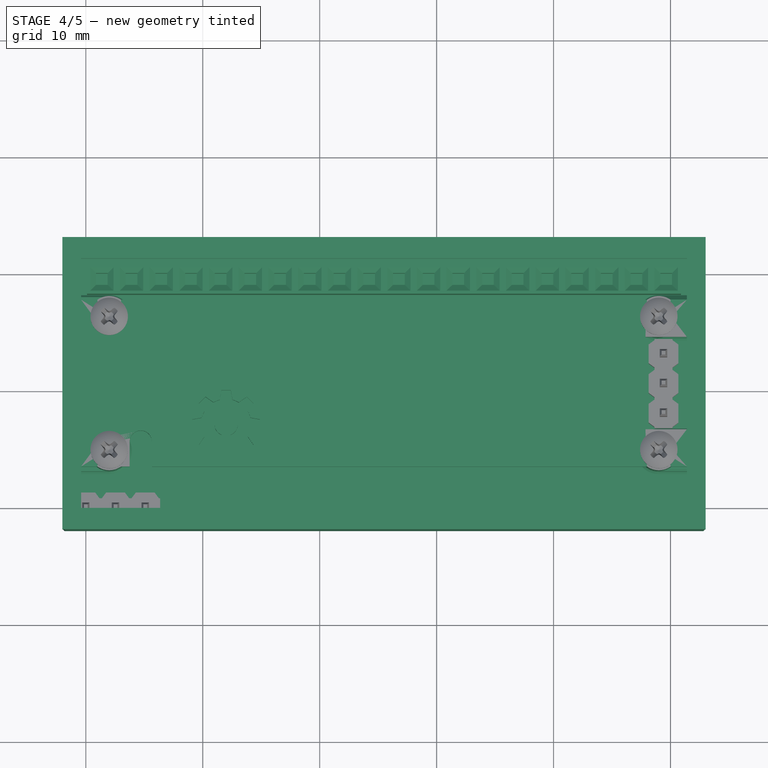
[diagram: stage 4 of 5 — top view after this stage's code; geometry added in this stage tinted green]
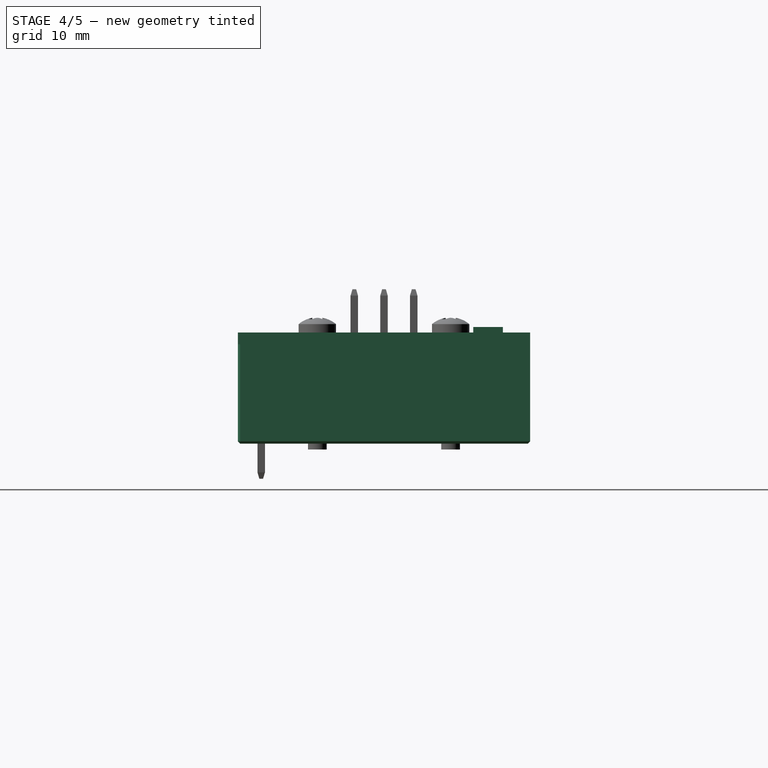
[diagram: stage 4 of 5 — right view after this stage's code; geometry added in this stage tinted green]
FEATURE [Part::FeaturePython] Clone004  label="body"  # Draft clone (typed FeaturePython)
  AttacherType = Attacher::AttachEngine3D
  Fuse = false
  Objects = -> [Clone003]
  Placement = pos=(26.77,1.6,4.999) rot=(0,0,1;0rad)
  Scale = (1,1,0.6)
FEATURE [Part::FeaturePython] Clone005  label="body"  # Draft clone (typed FeaturePython)
  AttacherType = Attacher::AttachEngine3D
  Fuse = false
  Objects = -> [Clone004]
  Placement = pos=(1.37,1.6,4.999) rot=(0,0,1;0rad)
  Scale = (1,1,1)
FEATURE [Part::MultiFuse] Fusion006  label="PINOS"
  Refine = true
  Shapes = -> [Clone004,Clone005]
FEATURE [Part::Mirroring] mirror002  label="PINOS (mirrored)"
  Base = (-2,10.5,9.5)
  Normal = (0,1,0)
  Source = -> Fusion006
FEATURE [Sketcher::SketchObject] Sketch007  label="TAMPA"
  ExternalGeometry = -> [Part__Feature,Fusion002,mirror,Compound,Extrude005]
  FullyConstrained = false
  Placement = pos=(0,0,8.5) rot=(0,0,1;0rad)
  expr: Constraints[311] = Sketch008.Constraints[147]
  expr: Constraints[248] = Sketch008.Constraints[84]
  expr: Constraints[188] = Sketch008.Constraints[24]
  expr: Constraints[187] = Sketch008.Constraints[23]
  expr: Constraints[185] = Sketch008.Constraints[21]
  expr: Constraints[125] = Sketch006.Constraints[125]
  expr: Constraints[186] = Sketch008.Constraints[22]
  expr: Constraints[107] = Sketch006.Constraints[107]
  expr: Constraints[61] = Sketch006.Constraints[61]
  expr: Constraints[53] = Sketch006.Constraints[53]
  expr: Constraints[263] = Sketch008.Constraints[99]
  expr: Constraints[178] = Sketch008.Constraints[14]
  expr: Constraints[241] = Sketch008.Constraints[77]
  expr: Constraints[177] = Sketch008.Constraints[13]
  expr: Constraints[44] = Sketch006.Constraints[44]
  expr: Constraints[52] = Sketch006.Constraints[52]
  expr: .Placement.Base.z = Spreadsheet.solda + Spreadsheet.folga + 3 * Spreadsheet.espessura + 2.5
  sketch-geometry (115):
    g0: LineSegment StartX=-2 StartY=-2 StartZ=0 EndX=53 EndY=-2 EndZ=0
    g1: LineSegment StartX=53 StartY=-2 StartZ=0 EndX=53 EndY=23 EndZ=0
    g2: LineSegment StartX=53 StartY=23 StartZ=0 EndX=-2 EndY=23 EndZ=0
    g3: LineSegment StartX=-2 StartY=23 StartZ=0 EndX=-2 EndY=-2 EndZ=0
    g4: LineSegment StartX=-1 StartY=22 StartZ=0 EndX=52 EndY=22 EndZ=0
    g5: LineSegment StartX=52 StartY=22 StartZ=0 EndX=52 EndY=-1 EndZ=0
    g6: LineSegment StartX=52 StartY=-1 StartZ=0 EndX=-1 EndY=-1 EndZ=0
    g7: LineSegment StartX=-1 StartY=-1 StartZ=0 EndX=-1 EndY=6 EndZ=0
    g8: LineSegment StartX=1.42e-14 StartY=21 StartZ=0 EndX=51 EndY=21 EndZ=0
    g9: LineSegment StartX=51 StartY=13.84 StartZ=0 EndX=51 EndY=7.16 EndZ=0
    g10: LineSegment StartX=51 StartY=-2.13e-14 StartZ=0 EndX=0 EndY=0 EndZ=0
    g11: LineSegment StartX=26.4196 StartY=23 StartZ=0 EndX=26.4196 EndY=22 EndZ=0
    g12: LineSegment StartX=26.4196 StartY=22 StartZ=0 EndX=26.4196 EndY=21 EndZ=0
    g13: LineSegment StartX=51 StartY=10.5 StartZ=0 EndX=52 EndY=10.5 EndZ=0
    g14: LineSegment StartX=52 StartY=10.5 StartZ=0 EndX=53 EndY=10.5 EndZ=0
    g15: LineSegment StartX=-2 StartY=15 StartZ=0 EndX=-1 EndY=15 EndZ=0
    g16: LineSegment StartX=-2 StartY=6 StartZ=0 EndX=-1 EndY=6 EndZ=0
    g17: LineSegment StartX=-1 StartY=15 StartZ=0 EndX=-1 EndY=22 EndZ=0
    g18: LineSegment StartX=-1 StartY=15 StartZ=0 EndX=-1 EndY=6 EndZ=0
    g19: LineSegment StartX=-1 StartY=10.5 StartZ=0 EndX=7.1e-15 EndY=10.5 EndZ=0
    g20: Circle CenterX=2 CenterY=16.2 CenterZ=0 NormalX=0 NormalY=0 NormalZ=1 AngleXU=0 Radius=1.1
    g21: Circle CenterX=49 CenterY=16.2 CenterZ=0 NormalX=0 NormalY=0 NormalZ=1 AngleXU=0 Radius=1.1
    g22: Circle CenterX=49 CenterY=4.8 CenterZ=0 NormalX=0 NormalY=0 NormalZ=1 AngleXU=0 Radius=1.1
    g23: Circle CenterX=2 CenterY=4.8 CenterZ=0 NormalX=0 NormalY=0 NormalZ=1 AngleXU=0 Radius=1.1
    g24: LineSegment StartX=-2 StartY=15 StartZ=0 EndX=-2 EndY=6 EndZ=0
    g25: LineSegment StartX=51.4 StartY=3.37 StartZ=0 EndX=50.0088 EndY=3.37 EndZ=0
    g26: LineSegment StartX=-0.4 StartY=3.37 StartZ=0 EndX=-0.4 EndY=-0.17 EndZ=0
    g27: LineSegment StartX=-0.4 StartY=-0.17 StartZ=0 EndX=51.4 EndY=-0.17 EndZ=0
    g28: LineSegment StartX=51.4 StartY=-0.17 StartZ=0 EndX=51.4 EndY=3.37 EndZ=0
    g29: LineSegment StartX=25.5 StartY=2.87 StartZ=0 EndX=25.5 EndY=3.37 EndZ=0
    g30: LineSegment StartX=25.5 StartY=0.33 StartZ=0 EndX=25.5 EndY=-0.17 EndZ=0
    g31: LineSegment StartX=0.1 StartY=1.6 StartZ=0 EndX=-0.4 EndY=1.6 EndZ=0
    g32: LineSegment StartX=50.9 StartY=1.6 StartZ=0 EndX=51.4 EndY=1.6 EndZ=0
    g33: LineSegment StartX=51.4 StartY=21.17 StartZ=0 EndX=-0.4 EndY=21.17 EndZ=0
    g34: LineSegment StartX=-0.4 StartY=21.17 StartZ=0 EndX=-0.4 EndY=17.63 EndZ=0
    g35: LineSegment StartX=-0.4 StartY=17.63 StartZ=0 EndX=0.991238 EndY=17.63 EndZ=0
    g36: LineSegment StartX=51.4 StartY=17.63 StartZ=0 EndX=51.4 EndY=21.17 EndZ=0
    g37: LineSegment StartX=-0.4 StartY=19.4 StartZ=0 EndX=0.1 EndY=19.4 EndZ=0
    g38: LineSegment StartX=25.5 StartY=20.67 StartZ=0 EndX=25.5 EndY=21.17 EndZ=0
    g39: LineSegment StartX=25.5 StartY=18.13 StartZ=0 EndX=25.5 EndY=17.63 EndZ=0
    g40: LineSegment StartX=50.9 StartY=19.4 StartZ=0 EndX=51.4 EndY=19.4 EndZ=0
    g41: ArcOfCircle CenterX=4.7 CenterY=5.5 CenterZ=0 NormalX=0 NormalY=0 NormalZ=1 AngleXU=0 Radius=0.95 StartAngle=7e-16 EndAngle=3.14159
    g42: LineSegment StartX=3.75 StartY=5.5 StartZ=0 EndX=3.75 EndY=3.37 EndZ=0
    g43: LineSegment StartX=5.65 StartY=5.5 StartZ=0 EndX=5.65 EndY=3.37 EndZ=0
    g44: LineSegment StartX=3.75 StartY=3.37 StartZ=0 EndX=3.00876 EndY=3.37 EndZ=0
    g45: LineSegment StartX=3.75 StartY=3.37 StartZ=0 EndX=5.65 EndY=3.37 EndZ=0
    g46: ArcOfCircle CenterX=49 CenterY=4.8 CenterZ=0 NormalX=0 NormalY=0 NormalZ=1 AngleXU=0 Radius=1.75 StartAngle=4.09803 EndAngle=5.32675
    g47: ArcOfCircle CenterX=49 CenterY=16.2 CenterZ=0 NormalX=0 NormalY=0 NormalZ=1 AngleXU=0 Radius=1.75 StartAngle=0.956436 EndAngle=2.18516
    g48: ArcOfCircle CenterX=2 CenterY=16.2 CenterZ=0 NormalX=0 NormalY=0 NormalZ=1 AngleXU=0 Radius=1.75 StartAngle=0.956437 EndAngle=2.18516
    g49: ArcOfCircle CenterX=2 CenterY=4.8 CenterZ=0 NormalX=0 NormalY=0 NormalZ=1 AngleXU=0 Radius=1.75 StartAngle=4.09803 EndAngle=5.32675
    g50: LineSegment StartX=3.00876 StartY=17.63 StartZ=0 EndX=47.9912 EndY=17.63 EndZ=0
    g51: LineSegment StartX=3.00876 StartY=17.63 StartZ=0 EndX=0.991238 EndY=17.63 EndZ=0
    g52: LineSegment StartX=50.0088 StartY=17.63 StartZ=0 EndX=51.4 EndY=17.63 EndZ=0
    g53: LineSegment StartX=47.9912 StartY=17.63 StartZ=0 EndX=50.0088 EndY=17.63 EndZ=0
    g54: LineSegment StartX=47.9912 StartY=3.37 StartZ=0 EndX=5.65 EndY=3.37 EndZ=0
    g55: LineSegment StartX=47.9912 StartY=3.37 StartZ=0 EndX=50.0088 EndY=3.37 EndZ=0
    g56: LineSegment StartX=0.991239 StartY=3.37 StartZ=0 EndX=-0.4 EndY=3.37 EndZ=0
    g57: LineSegment StartX=3.00876 StartY=3.37 StartZ=0 EndX=0.991239 EndY=3.37 EndZ=0
    g58: LineSegment StartX=51.4 StartY=6.55 StartZ=0 EndX=47.86 EndY=6.55 EndZ=0
    g59: LineSegment StartX=47.86 StartY=6.55 StartZ=0 EndX=47.86 EndY=14.45 EndZ=0
    g60: LineSegment StartX=47.86 StartY=14.45 StartZ=0 EndX=51.4 EndY=14.45 EndZ=0
    g61: LineSegment StartX=51.4 StartY=14.45 StartZ=0 EndX=51.4 EndY=6.55 EndZ=0
    g62: LineSegment StartX=51.4 StartY=17.63 StartZ=0 EndX=51.4 EndY=14.45 EndZ=0
    g63: LineSegment StartX=51.4 StartY=6.55 StartZ=0 EndX=51.4 EndY=3.37 EndZ=0
    g64: ArcOfCircle CenterX=12 CenterY=7 CenterZ=0 NormalX=0 NormalY=0 NormalZ=1 AngleXU=0 Radius=1 StartAngle=5.10509 EndAngle=10.6029
    g65: ArcOfCircle CenterX=12 CenterY=7 CenterZ=0 NormalX=0 NormalY=0 NormalZ=1 AngleXU=0 Radius=2.15 StartAngle=1.82949 EndAngle=2.0975
    g66: LineSegment StartX=12 StartY=9.9 StartZ=0 EndX=12 EndY=7 EndZ=0
    g67: LineSegment StartX=12 StartY=7 StartZ=0 EndX=14.9 EndY=7 EndZ=0
    g68: LineSegment StartX=12 StartY=7 StartZ=0 EndX=9.1 EndY=7 EndZ=0
    g69: LineSegment StartX=12 StartY=7 StartZ=0 EndX=9.94939 EndY=9.05061 EndZ=0
    g70: LineSegment StartX=12 StartY=7 StartZ=0 EndX=14.0506 EndY=9.05061 EndZ=0
    g71: LineSegment StartX=12 StartY=7 StartZ=0 EndX=9.94939 EndY=4.94939 EndZ=0
    g72: LineSegment StartX=12 StartY=7 StartZ=0 EndX=14.0506 EndY=4.94939 EndZ=0
    g73: LineSegment StartX=11.6 StartY=9.9 StartZ=0 EndX=12.4 EndY=9.9 EndZ=0
    g74: LineSegment StartX=12.4 StartY=9.9 StartZ=0 EndX=12.55 EndY=9.07846 EndZ=0
    g75: LineSegment StartX=12.55 StartY=9.07846 StartZ=0 EndX=11.45 EndY=9.07846 EndZ=0
    g76: LineSegment StartX=11.45 StartY=9.07846 StartZ=0 EndX=11.6 EndY=9.9 EndZ=0
    g77: LineSegment StartX=13.0808 StartY=8.8586 StartZ=0 EndX=13.8586 EndY=8.08079 EndZ=0
    g78: LineSegment StartX=13.8586 StartY=8.08079 StartZ=0 EndX=14.3335 EndY=8.76777 EndZ=0
    g79: LineSegment StartX=14.3335 StartY=8.76777 StartZ=0 EndX=13.7678 EndY=9.33345 EndZ=0
    g80: LineSegment StartX=13.7678 StartY=9.33345 StartZ=0 EndX=13.0808 EndY=8.8586 EndZ=0
    g81: LineSegment StartX=10.2322 StartY=9.33345 StartZ=0 EndX=9.66655 EndY=8.76777 EndZ=0
    g82: LineSegment StartX=9.66655 StartY=8.76777 StartZ=0 EndX=10.1414 EndY=8.08079 EndZ=0
    g83: LineSegment StartX=10.1414 StartY=8.08079 StartZ=0 EndX=10.9192 EndY=8.8586 EndZ=0
    g84: LineSegment StartX=10.9192 StartY=8.8586 StartZ=0 EndX=10.2322 EndY=9.33345 EndZ=0
    g85: LineSegment StartX=14.0785 StartY=7.55 StartZ=0 EndX=14.0785 EndY=6.45 EndZ=0
    g86: LineSegment StartX=14.0785 StartY=6.45 StartZ=0 EndX=14.9 EndY=6.6 EndZ=0
    g87: LineSegment StartX=14.9 StartY=6.6 StartZ=0 EndX=14.9 EndY=7.4 EndZ=0
    g88: LineSegment StartX=14.9 StartY=7.4 StartZ=0 EndX=14.0785 EndY=7.55 EndZ=0
    g89: LineSegment StartX=14.3335 StartY=5.23223 StartZ=0 EndX=13.7678 EndY=4.66655 EndZ=0
    g90: LineSegment StartX=13.7678 StartY=4.66655 StartZ=0 EndX=13.0808 EndY=5.1414 EndZ=0
    g91: LineSegment StartX=13.0808 StartY=5.1414 StartZ=0 EndX=13.8586 EndY=5.91921 EndZ=0
    g92: LineSegment StartX=13.8586 StartY=5.91921 StartZ=0 EndX=14.3335 EndY=5.23223 EndZ=0
    g93: LineSegment StartX=10.2322 StartY=4.66655 StartZ=0 EndX=9.66655 EndY=5.23223 EndZ=0
    g94: LineSegment StartX=9.66655 StartY=5.23223 StartZ=0 EndX=10.1414 EndY=5.91921 EndZ=0
    g95: LineSegment StartX=10.1414 StartY=5.91921 StartZ=0 EndX=10.9192 EndY=5.1414 EndZ=0
    g96: LineSegment StartX=10.9192 StartY=5.1414 StartZ=0 EndX=10.2322 EndY=4.66655 EndZ=0
    g97: LineSegment StartX=9.92154 StartY=6.45 StartZ=0 EndX=9.1 EndY=6.6 EndZ=0
    g98: LineSegment StartX=9.1 StartY=6.6 StartZ=0 EndX=9.1 EndY=7.4 EndZ=0
    g99: LineSegment StartX=9.1 StartY=7.4 StartZ=0 EndX=9.92154 EndY=7.55 EndZ=0
    g100: LineSegment StartX=9.92154 StartY=7.55 StartZ=0 EndX=9.92154 EndY=6.45 EndZ=0
    g101: ArcOfCircle CenterX=12 CenterY=7 CenterZ=0 NormalX=0 NormalY=0 NormalZ=1 AngleXU=0 Radius=2.15 StartAngle=2.61488 EndAngle=2.8829
    g102: ArcOfCircle CenterX=12 CenterY=7 CenterZ=0 NormalX=0 NormalY=0 NormalZ=1 AngleXU=0 Radius=2.15 StartAngle=3.40028 EndAngle=3.6683
    g103: ArcOfCircle CenterX=12 CenterY=7 CenterZ=0 NormalX=0 NormalY=0 NormalZ=1 AngleXU=0 Radius=2.15 StartAngle=1.04409 EndAngle=1.31211
    g104: ArcOfCircle CenterX=12 CenterY=7 CenterZ=0 NormalX=0 NormalY=0 NormalZ=1 AngleXU=0 Radius=2.15 StartAngle=0.25869 EndAngle=0.526709
    g105: ArcOfCircle CenterX=12 CenterY=7 CenterZ=0 NormalX=0 NormalY=0 NormalZ=1 AngleXU=0 Radius=2.15 StartAngle=5.75648 EndAngle=6.0245
    g106: ArcOfCircle CenterX=12 CenterY=7 CenterZ=0 NormalX=0 NormalY=0 NormalZ=1 AngleXU=0 Radius=2.15 StartAngle=4.18568 EndAngle=4.31969
    g107: LineSegment StartX=12 StartY=7 StartZ=0 EndX=12 EndY=5.01366 EndZ=0
    g108: LineSegment StartX=12 StartY=7 StartZ=0 EndX=11.6173 EndY=6.07612 EndZ=0
    g109: LineSegment StartX=11.6173 StartY=6.07612 StartZ=0 EndX=11.1772 EndY=5.01366 EndZ=0
    g110: LineSegment StartX=11.1772 StartY=5.01366 StartZ=0 EndX=12.8228 EndY=5.01366 EndZ=0
    g111: LineSegment StartX=12.8228 StartY=5.01366 StartZ=0 EndX=12.3827 EndY=6.07612 EndZ=0
    g112: LineSegment StartX=12.3827 StartY=6.07612 StartZ=0 EndX=12 EndY=7 EndZ=0
    g113: LineSegment StartX=11.6173 StartY=6.07612 StartZ=0 EndX=12.3827 EndY=6.07612 EndZ=0
    g114: ArcOfCircle CenterX=12 CenterY=7 CenterZ=0 NormalX=0 NormalY=0 NormalZ=1 AngleXU=0 Radius=2.15 StartAngle=5.10509 EndAngle=5.2391
  constraints (312):
    c: Coincident(g0,g1)
    c: Coincident(g1,g2)
    c: Coincident(g2,g3)
    c: Coincident(g3,g0)
    c: Horizontal(g0)
    c: Horizontal(g2)
    c: Vertical(g1)
    c: Vertical(g3)
    c: Coincident(g4,g5)
    c: Coincident(g5,g6)
    c: Coincident(g6,g7)
    c: Coincident(g17,g4)
    c: Horizontal(g4)
    c: Horizontal(g6)
    c: Vertical(g5)
    c: Vertical(g7)
    c: Coincident(g8,g-3)
    c: Coincident(g9,g-3)
    c: Coincident(g9,g-4)
    c: Coincident(g10,g-4)
    c: Coincident(g10,g-1)
    c: PointOnObject(g11,g2)
    c: PointOnObject(g11,g4)
    c: Vertical(g11)
    c: Coincident(g11,g12)
    c: PointOnObject(g12,g8)
    c: Vertical(g12)
    c: PointOnObject(g13,g5)
    c: Horizontal(g13)
    c: Coincident(g13,g14)
    c: Horizontal(g14)
    c: PointOnObject(g15,g3)
    c: Horizontal(g15)
    c: PointOnObject(g16,g3)
    c: Horizontal(g16)
    c: Coincident(g7,g16)
    c: Coincident(g17,g15)
    c: Coincident(g18,g17)
    c: Coincident(g18,g7)
    c: Vertical(g18)
    c: Equal(g14,g11)
    c: Equal(g11,g15)
    c: Vertical(g17)
    c: Equal(g17,g7)
    c: DistanceY(g16,g15) = 9
    c: Horizontal(g19)
    c: Symmetric(g18,g18,g19)
    c: Symmetric(g8,g-1,g19)
    c: Symmetric(g9,g9,g13)
    c: Symmetric(g1,g1,g14)
    c: Equal(g12,g19)
    c: Equal(g19,g13)
    c: DistanceY(g12,g12) = 1
    c: DistanceY(g11,g11) = 1
    c: Coincident(g20,g-5)
    c: Coincident(g21,g-6)
    c: Coincident(g22,g-7)
    c: Coincident(g23,g-8)
    c: Equal(g20,g21)
    c: Equal(g21,g22)
    c: Equal(g22,g23)
    c: Diameter(g20) = 2.2
    c: Coincident(g24,g15)
    c: Coincident(g24,g16)
    c: Coincident(g56,g26)
    c: Coincident(g26,g27)
    c: Coincident(g27,g28)
    c: Coincident(g28,g25)
    c: Horizontal(g25)
    c: Horizontal(g27)
    c: Vertical(g26)
    c: Vertical(g28)
    c: Vertical(g29)
    c: PointOnObject(g30,g27)
    c: Vertical(g30)
    c: PointOnObject(g32,g28)
    c: Horizontal(g32)
    c: Symmetric(g-12,g-12,g32)
    c: Symmetric(g-9,g-9,g29)
    c: Symmetric(g-10,g-10,g30)
    c: Symmetric(g-11,g-11,g31)
    c: Symmetric(g26,g26,g31)
    c: Symmetric(g25,g56,g29)
    c: Equal(g31,g30)
    c: Equal(g30,g29)
    c: Coincident(g33,g34)
    c: Coincident(g34,g35)
    c: Coincident(g52,g36)
    c: Coincident(g36,g33)
    c: Horizontal(g33)
    c: Horizontal(g35)
    c: Vertical(g34)
    c: Vertical(g36)
    c: Horizontal(g37)
    c: Vertical(g38)
    c: PointOnObject(g39,g35)
    c: Vertical(g39)
    c: PointOnObject(g40,g36)
    c: Horizontal(g40)
    c: Symmetric(g-16,g-16,g40)
    c: Symmetric(g-13,g-13,g38)
    c: Symmetric(g33,g33,g38)
    c: Symmetric(g-15,g-15,g39)
    c: Symmetric(g-14,g-14,g37)
    c: Symmetric(g34,g34,g37)
    c: Equal(g37,g38)
    c: Equal(g40,g29)
    c: DistanceY(g38,g38) = 0.5
    c: Tangent(g41,g43) = 1.5708
    c: Tangent(g41,g42) = -1.5708
    c: Vertical(g42)
    c: Tangent(g42,g-19)
    c: Symmetric(g-17,g-17,g41)
    c: PointOnObject(g54,g43)
    c: PointOnObject(g44,g42)
    c: Coincident(g45,g42)
    c: Coincident(g45,g54)
    c: Horizontal(g45)
    c: Coincident(g46,g22)
    c: Coincident(g47,g21)
    c: Coincident(g48,g20)
    c: Coincident(g49,g23)
    c: Equal(g49,g48)
    c: Equal(g48,g47)
    c: Equal(g47,g46)
    c: Diameter(g48) = 3.5
    c: Coincident(g35,g48)
    c: Coincident(g50,g48)
    c: Coincident(g51,g48)
    c: Coincident(g51,g35)
    c: Horizontal(g51)
    c: Coincident(g50,g47)
    c: Coincident(g52,g47)
    c: Coincident(g53,g47)
    c: Coincident(g53,g47)
    c: Horizontal(g53)
    c: Coincident(g25,g46)
    c: Coincident(g54,g46)
    c: Coincident(g55,g46)
    c: Coincident(g55,g25)
    c: Horizontal(g55)
    c: Coincident(g44,g49)
    c: Coincident(g49,g56)
    c: Coincident(g57,g44)
    c: Coincident(g57,g49)
    c: Horizontal(g57)
    c: Horizontal(g52)
    c: Coincident(g58,g59)
    c: Coincident(g59,g60)
    c: Coincident(g60,g61)
    c: Coincident(g61,g58)
    c: Horizontal(g58)
    c: Horizontal(g60)
    c: Vertical(g59)
    c: Vertical(g61)
    c: Coincident(g62,g36)
    c: Vertical(g62)
    c: Coincident(g60,g62)
    c: Coincident(g63,g58)
    c: Coincident(g63,g28)
    c: Equal(g58,g28)
    c: Equal(g63,g62)
    c: Tangent(g58,g-21)
    c: Horizontal(g54)
    c: Coincident(g65,g64)
    c: Coincident(g66,g64)
    c: Vertical(g66)
    c: Coincident(g66,g67)
    c: Horizontal(g67)
    c: Coincident(g68,g64)
    c: Horizontal(g68)
    c: Coincident(g69,g64)
    c: Coincident(g70,g64)
    c: Coincident(g71,g64)
    c: Coincident(g72,g64)
    c: Parallel(g71,g70)
    c: Parallel(g69,g72)
    c: Angle(g67,g70) = 0.785398
    c: Angle(g69,g68) = 0.785398
    c: Equal(g71,g72)
    c: Equal(g72,g70)
    c: Equal(g70,g67)
    c: Equal(g67,g66)
    c: Equal(g66,g69)
    c: Equal(g69,g68)
    c: Diameter(g64) = 2
    c: Diameter(g65) = 4.3
    c: DistanceX(g64) = 12
    c: DistanceY(g64) = 7
    c: Horizontal(g73)
    c: Coincident(g73,g74)
    c: Coincident(g74,g75)
    c: Horizontal(g75)
    c: Coincident(g75,g76)
    c: Coincident(g76,g73)
    c: Symmetric(g73,g73,g66)
    c: PointOnObject(g77,g65)
    c: PointOnObject(g77,g65)
    c: Coincident(g77,g78)
    c: Coincident(g78,g79)
    c: Coincident(g79,g80)
    c: Coincident(g80,g77)
    c: Coincident(g81,g82)
    c: PointOnObject(g82,g65)
    c: Coincident(g82,g83)
    c: Coincident(g83,g84)
    c: Coincident(g84,g81)
    c: PointOnObject(g85,g65)
    c: PointOnObject(g85,g65)
    c: Vertical(g85)
    c: Coincident(g85,g86)
    c: Coincident(g86,g87)
    c: Vertical(g87)
    c: Coincident(g87,g88)
    c: Coincident(g88,g85)
    c: Coincident(g89,g90)
    c: PointOnObject(g90,g65)
    c: Coincident(g90,g91)
    c: PointOnObject(g91,g65)
    c: Coincident(g91,g92)
    c: Coincident(g92,g89)
    c: Coincident(g93,g94)
    c: PointOnObject(g94,g65)
    c: Coincident(g94,g95)
    c: PointOnObject(g95,g65)
    c: Coincident(g95,g96)
    c: Coincident(g96,g93)
    c: PointOnObject(g97,g65)
    c: Coincident(g97,g98)
    c: Vertical(g98)
    c: Coincident(g98,g99)
    c: PointOnObject(g99,g65)
    c: Coincident(g99,g100)
    c: Coincident(g100,g97)
    c: Vertical(g100)
    c: Equal(g81,g98)
    c: Equal(g98,g73)
    c: Equal(g73,g79)
    c: Equal(g79,g87)
    c: Equal(g87,g89)
    c: Equal(g89,g93)
    c: DistanceX(g73,g73) = 0.8
    c: Symmetric(g81,g81,g69)
    c: Symmetric(g79,g79,g70)
    c: Symmetric(g87,g87,g67)
    c: Symmetric(g89,g89,g72)
    c: Symmetric(g93,g93,g71)
    c: Symmetric(g98,g98,g68)
    c: DistanceY(g66,g66) = 2.9
    c: Perpendicular(g71,g93)
    c: Perpendicular(g69,g81)
    c: Perpendicular(g70,g79)
    c: Perpendicular(g89,g72)
    c: Equal(g91,g95)
    c: Equal(g95,g85)
    c: Equal(g85,g77)
    c: Equal(g77,g75)
    c: Equal(g75,g83)
    c: Equal(g83,g100)
    c: Perpendicular(g83,g69)
    c: Perpendicular(g77,g70)
    c: Perpendicular(g91,g72)
    c: Perpendicular(g95,g71)
    c: DistanceX(g75,g75) = 1.1
    c: Coincident(g103,g74)
    c: Coincident(g65,g75)
    c: Equal(g65,g101)
    c: Coincident(g65,g83)
    c: Coincident(g65,g101)
    c: PointOnObject(g101,g82)
    c: Equal(g101,g102)
    c: PointOnObject(g101,g99)
    c: Coincident(g101,g102)
    c: PointOnObject(g102,g97)
    c: Equal(g102,g103)
    c: PointOnObject(g104,g77)
    c: Coincident(g102,g103)
    c: PointOnObject(g103,g77)
    c: Equal(g102,g104)
    c: PointOnObject(g104,g85)
    c: Coincident(g102,g104)
    c: PointOnObject(g105,g85)
    c: Equal(g102,g105)
    c: PointOnObject(g105,g91)
    c: Coincident(g102,g105)
    c: PointOnObject(g114,g91)
    c: Equal(g102,g106)
    c: PointOnObject(g106,g95)
    c: Coincident(g102,g106)
    c: PointOnObject(g102,g94)
    c: Coincident(g107,g64)
    c: Vertical(g107)
    c: Coincident(g108,g64)
    c: PointOnObject(g108,g64)
    c: Coincident(g108,g109)
    c: Coincident(g109,g110)
    c: Horizontal(g110)
    c: Coincident(g110,g111)
    c: Coincident(g111,g112)
    c: PointOnObject(g112,g72)
    c: Coincident(g108,g113)
    c: Coincident(g113,g111)
    c: Horizontal(g113)
    c: Coincident(g64,g111)
    c: PointOnObject(g64,g113)
    c: Parallel(g108,g109)
    c: Parallel(g112,g111)
    c: Coincident(g114,g110)
    c: Coincident(g106,g114)
    c: Coincident(g106,g109)
    c: Symmetric(g110,g110,g107)
    c: Angle(g109,g111) = 0.785398
FEATURE [Part::Extrusion] Extrude007  label="TAMPA"
  Base = -> Sketch007
  Dir = (0,0,1)
  DirMode = 2
  FaceMakerClass = Part::FaceMakerBullseye
  LengthFwd = 1
  LengthRev = 0
  Solid = true
  Symmetric = false
  expr: LengthFwd = Spreadsheet.espessura
FEATURE [Sketcher::SketchObject] Sketch009  label="ENCAIXE TAMPA"
  ExternalGeometry = -> [Part__Feature,Fusion002,mirror,Compound,Extrude005]
  FullyConstrained = false
  Placement = pos=(0,0,8) rot=(0,0,1;0rad)
  expr: Constraints[313] = Sketch008.Constraints[147]
  expr: Constraints[44] = Sketch007.Constraints[44]
  expr: Constraints[52] = Sketch007.Constraints[52]
  expr: Constraints[265] = Sketch008.Constraints[99]
  expr: Constraints[190] = Sketch008.Constraints[24]
  expr: Constraints[188] = Sketch008.Constraints[22]
  expr: Constraints[187] = Sketch008.Constraints[21]
  expr: Constraints[250] = Sketch008.Constraints[84]
  expr: Constraints[179] = Sketch008.Constraints[13]
  expr: Constraints[125] = Sketch007.Constraints[125]
  expr: Constraints[243] = Sketch008.Constraints[77]
  expr: Constraints[107] = Sketch007.Constraints[107]
  expr: Constraints[189] = Sketch008.Constraints[23]
  expr: Constraints[180] = Sketch008.Constraints[14]
  expr: Constraints[61] = Sketch007.Constraints[61]
  expr: Constraints[53] = Sketch007.Constraints[53]
  expr: .Placement.Base.z = Spreadsheet.solda + Spreadsheet.folga + 3 * Spreadsheet.espessura + 2
  sketch-geometry (116):
    g0: LineSegment StartX=-2 StartY=-2 StartZ=0 EndX=53 EndY=-2 EndZ=0
    g1: LineSegment StartX=53 StartY=-2 StartZ=0 EndX=53 EndY=23 EndZ=0
    g2: LineSegment StartX=53 StartY=23 StartZ=0 EndX=-2 EndY=23 EndZ=0
    g3: LineSegment StartX=-2 StartY=23 StartZ=0 EndX=-2 EndY=-2 EndZ=0
    g4: LineSegment StartX=-1 StartY=22 StartZ=0 EndX=52 EndY=22 EndZ=0
    g5: LineSegment StartX=52 StartY=22 StartZ=0 EndX=52 EndY=-1 EndZ=0
    g6: LineSegment StartX=52 StartY=-1 StartZ=0 EndX=-1 EndY=-1 EndZ=0
    g7: LineSegment StartX=-1 StartY=-1 StartZ=0 EndX=-1 EndY=6 EndZ=0
    g8: LineSegment StartX=1.42e-14 StartY=21 StartZ=0 EndX=51 EndY=21 EndZ=0
    g9: LineSegment StartX=51 StartY=13.84 StartZ=0 EndX=51 EndY=7.16 EndZ=0
    g10: LineSegment StartX=51 StartY=-2.13e-14 StartZ=0 EndX=0 EndY=0 EndZ=0
    g11: LineSegment StartX=26.4196 StartY=23 StartZ=0 EndX=26.4196 EndY=22 EndZ=0
    g12: LineSegment StartX=26.4196 StartY=22 StartZ=0 EndX=26.4196 EndY=21 EndZ=0
    g13: LineSegment StartX=51 StartY=10.5 StartZ=0 EndX=52 EndY=10.5 EndZ=0
    g14: LineSegment StartX=52 StartY=10.5 StartZ=0 EndX=53 EndY=10.5 EndZ=0
    g15: LineSegment StartX=-2 StartY=15 StartZ=0 EndX=-1 EndY=15 EndZ=0
    g16: LineSegment StartX=-2 StartY=6 StartZ=0 EndX=-1 EndY=6 EndZ=0
    g17: LineSegment StartX=-1 StartY=15 StartZ=0 EndX=-1 EndY=22 EndZ=0
    g18: LineSegment StartX=-1 StartY=15 StartZ=0 EndX=-1 EndY=6 EndZ=0
    g19: LineSegment StartX=-1 StartY=10.5 StartZ=0 EndX=7.1e-15 EndY=10.5 EndZ=0
    g20: Circle CenterX=2 CenterY=16.2 CenterZ=0 NormalX=0 NormalY=0 NormalZ=1 AngleXU=0 Radius=1.1
    g21: Circle CenterX=49 CenterY=16.2 CenterZ=0 NormalX=0 NormalY=0 NormalZ=1 AngleXU=0 Radius=1.1
    g22: Circle CenterX=49 CenterY=4.8 CenterZ=0 NormalX=0 NormalY=0 NormalZ=1 AngleXU=0 Radius=1.1
    g23: Circle CenterX=2 CenterY=4.8 CenterZ=0 NormalX=0 NormalY=0 NormalZ=1 AngleXU=0 Radius=1.1
    g24: LineSegment StartX=-2 StartY=15 StartZ=0 EndX=-2 EndY=6 EndZ=0
    g25: LineSegment StartX=51.4 StartY=3.37 StartZ=0 EndX=50.0088 EndY=3.37 EndZ=0
    g26: LineSegment StartX=-0.4 StartY=3.37 StartZ=0 EndX=-0.4 EndY=-0.17 EndZ=0
    g27: LineSegment StartX=-0.4 StartY=-0.17 StartZ=0 EndX=51.4 EndY=-0.17 EndZ=0
    g28: LineSegment StartX=51.4 StartY=-0.17 StartZ=0 EndX=51.4 EndY=3.37 EndZ=0
    g29: LineSegment StartX=25.5 StartY=2.87 StartZ=0 EndX=25.5 EndY=3.37 EndZ=0
    g30: LineSegment StartX=25.5 StartY=0.33 StartZ=0 EndX=25.5 EndY=-0.17 EndZ=0
    g31: LineSegment StartX=0.1 StartY=1.6 StartZ=0 EndX=-0.4 EndY=1.6 EndZ=0
    g32: LineSegment StartX=50.9 StartY=1.6 StartZ=0 EndX=51.4 EndY=1.6 EndZ=0
    g33: LineSegment StartX=51.4 StartY=21.17 StartZ=0 EndX=-0.4 EndY=21.17 EndZ=0
    g34: LineSegment StartX=-0.4 StartY=21.17 StartZ=0 EndX=-0.4 EndY=17.63 EndZ=0
    g35: LineSegment StartX=-0.4 StartY=17.63 StartZ=0 EndX=0.991238 EndY=17.63 EndZ=0
    g36: LineSegment StartX=51.4 StartY=17.63 StartZ=0 EndX=51.4 EndY=21.17 EndZ=0
    g37: LineSegment StartX=-0.4 StartY=19.4 StartZ=0 EndX=0.1 EndY=19.4 EndZ=0
    g38: LineSegment StartX=25.5 StartY=20.67 StartZ=0 EndX=25.5 EndY=21.17 EndZ=0
    g39: LineSegment StartX=25.5 StartY=18.13 StartZ=0 EndX=25.5 EndY=17.63 EndZ=0
    g40: LineSegment StartX=50.9 StartY=19.4 StartZ=0 EndX=51.4 EndY=19.4 EndZ=0
    g41: ArcOfCircle CenterX=4.7 CenterY=5.5 CenterZ=0 NormalX=0 NormalY=0 NormalZ=1 AngleXU=0 Radius=0.95 StartAngle=3e-16 EndAngle=3.14159
    g42: LineSegment StartX=3.75 StartY=5.5 StartZ=0 EndX=3.75 EndY=3.37 EndZ=0
    g43: LineSegment StartX=5.65 StartY=5.5 StartZ=0 EndX=5.65 EndY=3.37 EndZ=0
    g44: LineSegment StartX=3.75 StartY=3.37 StartZ=0 EndX=3.00876 EndY=3.37 EndZ=0
    g45: LineSegment StartX=3.75 StartY=3.37 StartZ=0 EndX=5.65 EndY=3.37 EndZ=0
    g46: ArcOfCircle CenterX=49 CenterY=4.8 CenterZ=0 NormalX=0 NormalY=0 NormalZ=1 AngleXU=0 Radius=1.75 StartAngle=4.09803 EndAngle=5.32675
    g47: ArcOfCircle CenterX=49 CenterY=16.2 CenterZ=0 NormalX=0 NormalY=0 NormalZ=1 AngleXU=0 Radius=1.75 StartAngle=0.956436 EndAngle=2.18516
    g48: ArcOfCircle CenterX=2 CenterY=16.2 CenterZ=0 NormalX=0 NormalY=0 NormalZ=1 AngleXU=0 Radius=1.75 StartAngle=0.956437 EndAngle=2.18516
    g49: ArcOfCircle CenterX=2 CenterY=4.8 CenterZ=0 NormalX=0 NormalY=0 NormalZ=1 AngleXU=0 Radius=1.75 StartAngle=4.09803 EndAngle=5.32675
    g50: LineSegment StartX=3.00876 StartY=17.63 StartZ=0 EndX=47.9912 EndY=17.63 EndZ=0
    g51: LineSegment StartX=3.00876 StartY=17.63 StartZ=0 EndX=0.991238 EndY=17.63 EndZ=0
    g52: LineSegment StartX=50.0088 StartY=17.63 StartZ=0 EndX=51.4 EndY=17.63 EndZ=0
    g53: LineSegment StartX=47.9912 StartY=17.63 StartZ=0 EndX=50.0088 EndY=17.63 EndZ=0
    g54: LineSegment StartX=47.9912 StartY=3.37 StartZ=0 EndX=5.65 EndY=3.37 EndZ=0
    g55: LineSegment StartX=47.9912 StartY=3.37 StartZ=0 EndX=50.0088 EndY=3.37 EndZ=0
    g56: LineSegment StartX=0.991239 StartY=3.37 StartZ=0 EndX=-0.4 EndY=3.37 EndZ=0
    g57: LineSegment StartX=3.00876 StartY=3.37 StartZ=0 EndX=0.991239 EndY=3.37 EndZ=0
    g58: LineSegment StartX=51.4 StartY=6.55 StartZ=0 EndX=47.86 EndY=6.55 EndZ=0
    g59: LineSegment StartX=47.86 StartY=6.55 StartZ=0 EndX=47.86 EndY=14.45 EndZ=0
    g60: LineSegment StartX=47.86 StartY=14.45 StartZ=0 EndX=51.4 EndY=14.45 EndZ=0
    g61: LineSegment StartX=51.4 StartY=14.45 StartZ=0 EndX=51.4 EndY=6.55 EndZ=0
    g62: LineSegment StartX=51.4 StartY=17.63 StartZ=0 EndX=51.4 EndY=14.45 EndZ=0
    g63: LineSegment StartX=51.4 StartY=6.55 StartZ=0 EndX=51.4 EndY=3.37 EndZ=0
    g64: LineSegment StartX=-2 StartY=15 StartZ=0 EndX=-2 EndY=6 EndZ=0
    g65: ArcOfCircle CenterX=12 CenterY=7 CenterZ=0 NormalX=0 NormalY=0 NormalZ=1 AngleXU=0 Radius=1 StartAngle=5.10509 EndAngle=10.6029
    g66: ArcOfCircle CenterX=12 CenterY=7 CenterZ=0 NormalX=0 NormalY=0 NormalZ=1 AngleXU=0 Radius=2.15 StartAngle=1.82949 EndAngle=2.0975
    g67: LineSegment StartX=12 StartY=9.9 StartZ=0 EndX=12 EndY=7 EndZ=0
    g68: LineSegment StartX=12 StartY=7 StartZ=0 EndX=14.9 EndY=7 EndZ=0
    g69: LineSegment StartX=12 StartY=7 StartZ=0 EndX=9.1 EndY=7 EndZ=0
    g70: LineSegment StartX=12 StartY=7 StartZ=0 EndX=9.94939 EndY=9.05061 EndZ=0
    g71: LineSegment StartX=12 StartY=7 StartZ=0 EndX=14.0506 EndY=9.05061 EndZ=0
    g72: LineSegment StartX=12 StartY=7 StartZ=0 EndX=9.94939 EndY=4.94939 EndZ=0
    g73: LineSegment StartX=12 StartY=7 StartZ=0 EndX=14.0506 EndY=4.94939 EndZ=0
    g74: LineSegment StartX=11.6 StartY=9.9 StartZ=0 EndX=12.4 EndY=9.9 EndZ=0
    g75: LineSegment StartX=12.4 StartY=9.9 StartZ=0 EndX=12.55 EndY=9.07846 EndZ=0
    g76: LineSegment StartX=12.55 StartY=9.07846 StartZ=0 EndX=11.45 EndY=9.07846 EndZ=0
    g77: LineSegment StartX=11.45 StartY=9.07846 StartZ=0 EndX=11.6 EndY=9.9 EndZ=0
    g78: LineSegment StartX=13.0808 StartY=8.8586 StartZ=0 EndX=13.8586 EndY=8.08079 EndZ=0
    g79: LineSegment StartX=13.8586 StartY=8.08079 StartZ=0 EndX=14.3335 EndY=8.76777 EndZ=0
    g80: LineSegment StartX=14.3335 StartY=8.76777 StartZ=0 EndX=13.7678 EndY=9.33345 EndZ=0
    g81: LineSegment StartX=13.7678 StartY=9.33345 StartZ=0 EndX=13.0808 EndY=8.8586 EndZ=0
    g82: LineSegment StartX=10.2322 StartY=9.33345 StartZ=0 EndX=9.66655 EndY=8.76777 EndZ=0
    g83: LineSegment StartX=9.66655 StartY=8.76777 StartZ=0 EndX=10.1414 EndY=8.08079 EndZ=0
    g84: LineSegment StartX=10.1414 StartY=8.08079 StartZ=0 EndX=10.9192 EndY=8.8586 EndZ=0
    g85: LineSegment StartX=10.9192 StartY=8.8586 StartZ=0 EndX=10.2322 EndY=9.33345 EndZ=0
    g86: LineSegment StartX=14.0785 StartY=7.55 StartZ=0 EndX=14.0785 EndY=6.45 EndZ=0
    g87: LineSegment StartX=14.0785 StartY=6.45 StartZ=0 EndX=14.9 EndY=6.6 EndZ=0
    g88: LineSegment StartX=14.9 StartY=6.6 StartZ=0 EndX=14.9 EndY=7.4 EndZ=0
    g89: LineSegment StartX=14.9 StartY=7.4 StartZ=0 EndX=14.0785 EndY=7.55 EndZ=0
    g90: LineSegment StartX=14.3335 StartY=5.23223 StartZ=0 EndX=13.7678 EndY=4.66655 EndZ=0
    g91: LineSegment StartX=13.7678 StartY=4.66655 StartZ=0 EndX=13.0808 EndY=5.1414 EndZ=0
    g92: LineSegment StartX=13.0808 StartY=5.1414 StartZ=0 EndX=13.8586 EndY=5.91921 EndZ=0
    g93: LineSegment StartX=13.8586 StartY=5.91921 StartZ=0 EndX=14.3335 EndY=5.23223 EndZ=0
    g94: LineSegment StartX=10.2322 StartY=4.66655 StartZ=0 EndX=9.66655 EndY=5.23223 EndZ=0
    g95: LineSegment StartX=9.66655 StartY=5.23223 StartZ=0 EndX=10.1414 EndY=5.91921 EndZ=0
    g96: LineSegment StartX=10.1414 StartY=5.91921 StartZ=0 EndX=10.9192 EndY=5.1414 EndZ=0
    g97: LineSegment StartX=10.9192 StartY=5.1414 StartZ=0 EndX=10.2322 EndY=4.66655 EndZ=0
    g98: LineSegment StartX=9.92154 StartY=6.45 StartZ=0 EndX=9.1 EndY=6.6 EndZ=0
    g99: LineSegment StartX=9.1 StartY=6.6 StartZ=0 EndX=9.1 EndY=7.4 EndZ=0
    g100: LineSegment StartX=9.1 StartY=7.4 StartZ=0 EndX=9.92154 EndY=7.55 EndZ=0
    g101: LineSegment StartX=9.92154 StartY=7.55 StartZ=0 EndX=9.92154 EndY=6.45 EndZ=0
    g102: ArcOfCircle CenterX=12 CenterY=7 CenterZ=0 NormalX=0 NormalY=0 NormalZ=1 AngleXU=0 Radius=2.15 StartAngle=2.61488 EndAngle=2.8829
    g103: ArcOfCircle CenterX=12 CenterY=7 CenterZ=0 NormalX=0 NormalY=0 NormalZ=1 AngleXU=0 Radius=2.15 StartAngle=3.40028 EndAngle=3.6683
    g104: ArcOfCircle CenterX=12 CenterY=7 CenterZ=0 NormalX=0 NormalY=0 NormalZ=1 AngleXU=0 Radius=2.15 StartAngle=1.04409 EndAngle=1.31211
    g105: ArcOfCircle CenterX=12 CenterY=7 CenterZ=0 NormalX=0 NormalY=0 NormalZ=1 AngleXU=0 Radius=2.15 StartAngle=0.25869 EndAngle=0.526709
    g106: ArcOfCircle CenterX=12 CenterY=7 CenterZ=0 NormalX=0 NormalY=0 NormalZ=1 AngleXU=0 Radius=2.15 StartAngle=5.75648 EndAngle=6.0245
    g107: ArcOfCircle CenterX=12 CenterY=7 CenterZ=0 NormalX=0 NormalY=0 NormalZ=1 AngleXU=0 Radius=2.15 StartAngle=4.18568 EndAngle=4.31969
    g108: LineSegment StartX=12 StartY=7 StartZ=0 EndX=12 EndY=5.01366 EndZ=0
    g109: LineSegment StartX=12 StartY=7 StartZ=0 EndX=11.6173 EndY=6.07612 EndZ=0
    g110: LineSegment StartX=11.6173 StartY=6.07612 StartZ=0 EndX=11.1772 EndY=5.01366 EndZ=0
    g111: LineSegment StartX=11.1772 StartY=5.01366 StartZ=0 EndX=12.8228 EndY=5.01366 EndZ=0
    g112: LineSegment StartX=12.8228 StartY=5.01366 StartZ=0 EndX=12.3827 EndY=6.07612 EndZ=0
    g113: LineSegment StartX=12.3827 StartY=6.07612 StartZ=0 EndX=12 EndY=7 EndZ=0
    g114: LineSegment StartX=11.6173 StartY=6.07612 StartZ=0 EndX=12.3827 EndY=6.07612 EndZ=0
    g115: ArcOfCircle CenterX=12 CenterY=7 CenterZ=0 NormalX=0 NormalY=0 NormalZ=1 AngleXU=0 Radius=2.15 StartAngle=5.10509 EndAngle=5.2391
  constraints (314):
    c: Coincident(g0,g1)
    c: Coincident(g1,g2)
    c: Coincident(g2,g3)
    c: Coincident(g3,g0)
    c: Horizontal(g0)
    c: Horizontal(g2)
    c: Vertical(g1)
    c: Vertical(g3)
    c: Coincident(g4,g5)
    c: Coincident(g5,g6)
    c: Coincident(g6,g7)
    c: Coincident(g17,g4)
    c: Horizontal(g4)
    c: Horizontal(g6)
    c: Vertical(g5)
    c: Vertical(g7)
    c: Coincident(g8,g-3)
    c: Coincident(g9,g-3)
    c: Coincident(g9,g-4)
    c: Coincident(g10,g-4)
    c: Coincident(g10,g-1)
    c: PointOnObject(g11,g2)
    c: PointOnObject(g11,g4)
    c: Vertical(g11)
    c: Coincident(g11,g12)
    c: PointOnObject(g12,g8)
    c: Vertical(g12)
    c: PointOnObject(g13,g5)
    c: Horizontal(g13)
    c: Coincident(g13,g14)
    c: Horizontal(g14)
    c: PointOnObject(g15,g3)
    c: Horizontal(g15)
    c: PointOnObject(g16,g3)
    c: Horizontal(g16)
    c: Coincident(g7,g16)
    c: Coincident(g17,g15)
    c: Coincident(g18,g17)
    c: Coincident(g18,g7)
    c: Vertical(g18)
    c: Equal(g14,g11)
    c: Equal(g11,g15)
    c: Vertical(g17)
    c: Equal(g17,g7)
    c: DistanceY(g16,g15) = 9
    c: Horizontal(g19)
    c: Symmetric(g18,g18,g19)
    c: Symmetric(g8,g-1,g19)
    c: Symmetric(g9,g9,g13)
    c: Symmetric(g1,g1,g14)
    c: Equal(g12,g19)
    c: Equal(g19,g13)
    c: DistanceY(g12,g12) = 1
    c: DistanceY(g11,g11) = 1
    c: Coincident(g20,g-5)
    c: Coincident(g21,g-6)
    c: Coincident(g22,g-7)
    c: Coincident(g23,g-8)
    c: Equal(g20,g21)
    c: Equal(g21,g22)
    c: Equal(g22,g23)
    c: Diameter(g20) = 2.2
    c: Coincident(g24,g15)
    c: Coincident(g24,g16)
    c: Coincident(g56,g26)
    c: Coincident(g26,g27)
    c: Coincident(g27,g28)
    c: Coincident(g28,g25)
    c: Horizontal(g25)
    c: Horizontal(g27)
    c: Vertical(g26)
    c: Vertical(g28)
    c: Vertical(g29)
    c: PointOnObject(g30,g27)
    c: Vertical(g30)
    c: PointOnObject(g32,g28)
    c: Horizontal(g32)
    c: Symmetric(g-12,g-12,g32)
    c: Symmetric(g-9,g-9,g29)
    c: Symmetric(g-10,g-10,g30)
    c: Symmetric(g-11,g-11,g31)
    c: Symmetric(g26,g26,g31)
    c: Symmetric(g25,g56,g29)
    c: Equal(g31,g30)
    c: Equal(g30,g29)
    c: Coincident(g33,g34)
    c: Coincident(g34,g35)
    c: Coincident(g52,g36)
    c: Coincident(g36,g33)
    c: Horizontal(g33)
    c: Horizontal(g35)
    c: Vertical(g34)
    c: Vertical(g36)
    c: Horizontal(g37)
    c: Vertical(g38)
    c: PointOnObject(g39,g35)
    c: Vertical(g39)
    c: PointOnObject(g40,g36)
    c: Horizontal(g40)
    c: Symmetric(g-16,g-16,g40)
    c: Symmetric(g-13,g-13,g38)
    c: Symmetric(g33,g33,g38)
    c: Symmetric(g-15,g-15,g39)
    c: Symmetric(g-14,g-14,g37)
    c: Symmetric(g34,g34,g37)
    c: Equal(g37,g38)
    c: Equal(g40,g29)
    c: DistanceY(g38,g38) = 0.5
    c: Tangent(g41,g43) = 1.5708
    c: Tangent(g41,g42) = -1.5708
    c: Vertical(g42)
    c: Tangent(g42,g-19)
    c: Symmetric(g-17,g-17,g41)
    c: PointOnObject(g54,g43)
    c: PointOnObject(g44,g42)
    c: Coincident(g45,g42)
    c: Coincident(g45,g54)
    c: Horizontal(g45)
    c: Coincident(g46,g22)
    c: Coincident(g47,g21)
    c: Coincident(g48,g20)
    c: Coincident(g49,g23)
    c: Equal(g49,g48)
    c: Equal(g48,g47)
    c: Equal(g47,g46)
    c: Diameter(g48) = 3.5
    c: Coincident(g35,g48)
    c: Coincident(g50,g48)
    c: Coincident(g51,g48)
    c: Coincident(g51,g35)
    c: Horizontal(g51)
    c: Coincident(g50,g47)
    c: Coincident(g52,g47)
    c: Coincident(g53,g47)
    c: Coincident(g53,g47)
    c: Horizontal(g53)
    c: Coincident(g25,g46)
    c: Coincident(g54,g46)
    c: Coincident(g55,g46)
    c: Coincident(g55,g25)
    c: Horizontal(g55)
    c: Coincident(g44,g49)
    c: Coincident(g49,g56)
    c: Coincident(g57,g44)
    c: Coincident(g57,g49)
    c: Horizontal(g57)
    c: Horizontal(g52)
    c: Coincident(g58,g59)
    c: Coincident(g59,g60)
    c: Coincident(g60,g61)
    c: Coincident(g61,g58)
    c: Horizontal(g58)
    c: Horizontal(g60)
    c: Vertical(g59)
    c: Vertical(g61)
    c: Coincident(g62,g36)
    c: Vertical(g62)
    c: Coincident(g60,g62)
    c: Coincident(g63,g58)
    c: Coincident(g63,g28)
    c: Equal(g58,g28)
    c: Equal(g63,g62)
    c: Tangent(g58,g-21)
    c: Horizontal(g54)
    c: Coincident(g64,g15)
    c: Coincident(g64,g16)
    c: Coincident(g66,g65)
    c: Coincident(g67,g65)
    c: Vertical(g67)
    c: Coincident(g67,g68)
    c: Horizontal(g68)
    c: Coincident(g69,g65)
    c: Horizontal(g69)
    c: Coincident(g70,g65)
    c: Coincident(g71,g65)
    c: Coincident(g72,g65)
    c: Coincident(g73,g65)
    c: Parallel(g72,g71)
    c: Parallel(g70,g73)
    c: Angle(g68,g71) = 0.785398
    c: Angle(g70,g69) = 0.785398
    c: Equal(g72,g73)
    c: Equal(g73,g71)
    c: Equal(g71,g68)
    c: Equal(g68,g67)
    c: Equal(g67,g70)
    c: Equal(g70,g69)
    c: Diameter(g65) = 2
    c: Diameter(g66) = 4.3
    c: DistanceX(g65) = 12
    c: DistanceY(g65) = 7
    c: Horizontal(g74)
    c: Coincident(g74,g75)
    c: Coincident(g75,g76)
    c: Horizontal(g76)
    c: Coincident(g76,g77)
    c: Coincident(g77,g74)
    c: Symmetric(g74,g74,g67)
    c: PointOnObject(g78,g66)
    c: PointOnObject(g78,g66)
    c: Coincident(g78,g79)
    c: Coincident(g79,g80)
    c: Coincident(g80,g81)
    c: Coincident(g81,g78)
    c: Coincident(g82,g83)
    c: PointOnObject(g83,g66)
    c: Coincident(g83,g84)
    c: Coincident(g84,g85)
    c: Coincident(g85,g82)
    c: PointOnObject(g86,g66)
    c: PointOnObject(g86,g66)
    c: Vertical(g86)
    c: Coincident(g86,g87)
    c: Coincident(g87,g88)
    c: Vertical(g88)
    c: Coincident(g88,g89)
    c: Coincident(g89,g86)
    c: Coincident(g90,g91)
    c: PointOnObject(g91,g66)
    c: Coincident(g91,g92)
    c: PointOnObject(g92,g66)
    c: Coincident(g92,g93)
    c: Coincident(g93,g90)
    c: Coincident(g94,g95)
    c: PointOnObject(g95,g66)
    c: Coincident(g95,g96)
    c: PointOnObject(g96,g66)
    c: Coincident(g96,g97)
    c: Coincident(g97,g94)
    c: PointOnObject(g98,g66)
    c: Coincident(g98,g99)
    c: Vertical(g99)
    c: Coincident(g99,g100)
    c: PointOnObject(g100,g66)
    c: Coincident(g100,g101)
    c: Coincident(g101,g98)
    c: Vertical(g101)
    c: Equal(g82,g99)
    c: Equal(g99,g74)
    c: Equal(g74,g80)
    c: Equal(g80,g88)
    c: Equal(g88,g90)
    c: Equal(g90,g94)
    c: DistanceX(g74,g74) = 0.8
    c: Symmetric(g82,g82,g70)
    c: Symmetric(g80,g80,g71)
    c: Symmetric(g88,g88,g68)
    c: Symmetric(g90,g90,g73)
    c: Symmetric(g94,g94,g72)
    c: Symmetric(g99,g99,g69)
    c: DistanceY(g67,g67) = 2.9
    c: Perpendicular(g72,g94)
    c: Perpendicular(g70,g82)
    c: Perpendicular(g71,g80)
    c: Perpendicular(g90,g73)
    c: Equal(g92,g96)
    c: Equal(g96,g86)
    c: Equal(g86,g78)
    c: Equal(g78,g76)
    c: Equal(g76,g84)
    c: Equal(g84,g101)
    c: Perpendicular(g84,g70)
    c: Perpendicular(g78,g71)
    c: Perpendicular(g92,g73)
    c: Perpendicular(g96,g72)
    c: DistanceX(g76,g76) = 1.1
    c: Coincident(g104,g75)
    c: Coincident(g66,g76)
    c: Equal(g66,g102)
    c: Coincident(g66,g84)
    c: Coincident(g66,g102)
    c: PointOnObject(g102,g83)
    c: Equal(g102,g103)
    c: PointOnObject(g102,g100)
    c: Coincident(g102,g103)
    c: PointOnObject(g103,g98)
    c: Equal(g103,g104)
    c: PointOnObject(g105,g78)
    c: Coincident(g103,g104)
    c: PointOnObject(g104,g78)
    c: Equal(g103,g105)
    c: PointOnObject(g105,g86)
    c: Coincident(g103,g105)
    c: PointOnObject(g106,g86)
    c: Equal(g103,g106)
    c: PointOnObject(g106,g92)
    c: Coincident(g103,g106)
    c: PointOnObject(g115,g92)
    c: Equal(g103,g107)
    c: PointOnObject(g107,g96)
    c: Coincident(g103,g107)
    c: PointOnObject(g103,g95)
    c: Coincident(g108,g65)
    c: Vertical(g108)
    c: Coincident(g109,g65)
    c: PointOnObject(g109,g65)
    c: Coincident(g109,g110)
    c: Coincident(g110,g111)
    c: Horizontal(g111)
    c: Coincident(g111,g112)
    c: Coincident(g112,g113)
    c: PointOnObject(g113,g73)
    c: Coincident(g109,g114)
    c: Coincident(g114,g112)
    c: Horizontal(g114)
    c: Coincident(g65,g112)
    c: PointOnObject(g65,g114)
    c: Parallel(g109,g110)
    c: Parallel(g113,g112)
    c: Coincident(g115,g111)
    c: Coincident(g107,g115)
    c: Coincident(g107,g110)
    c: Symmetric(g111,g111,g108)
    c: Angle(g110,g112) = 0.785398
FEATURE [Part::Extrusion] Extrude009  label="ENCAIXE TAMPA"
  Base = -> Sketch009
  Dir = (0,0,1)
  DirMode = 2
  FaceMakerClass = Part::FaceMakerBullseye
  LengthFwd = 0.5
  LengthRev = 0
  Solid = true
  Symmetric = false
  expr: LengthFwd = Spreadsheet.espessura / 2
FEATURE [Part::MultiFuse] Fusion  label="TAMPA"
  Refine = true
  Shapes = -> [Extrude009,Extrude005,Extrude007]
FEATURE [Part::Chamfer] Chamfer001  label="CASE"
  Base = -> Fusion005
  Edges = 63 edges r=0.2: [Edge16,Edge17,Edge18,Edge30,Edge31,Edge34,Edge36,Edge38,Edge40,Edge42,Edge44,Edge46,Edge47,Edge48,Edge49,Edge50,Edge51,Edge52,Edge53,Edge54,Edge55,Edge56,Edge57,Edge58,Edge59,Edge62,Edge63,Edge64,Edge65,Edge66,Edge71,Edge72,Edge73,Edge74,Edge75,Edge78,Edge79,Edge80,Edge81,Edge82,Edge83,Edge84,+21 more]
FEATURE [Sketcher::SketchObject] Sketch013  label="pin-support-main-sketch"
  FullyConstrained = false
  MapMode = 5
  sketch-geometry (16):
    g0: LineSegment StartX=-1.27 StartY=1.27 StartZ=0 EndX=1.27 EndY=1.27 EndZ=0
    g1: LineSegment StartX=1.27 StartY=1.27 StartZ=0 EndX=1.27 EndY=-1.27 EndZ=0
    g2: LineSegment StartX=1.27 StartY=-1.27 StartZ=0 EndX=-1.27 EndY=-1.27 EndZ=0
    g3: LineSegment StartX=-1.27 StartY=-1.27 StartZ=0 EndX=-1.27 EndY=1.27 EndZ=0
    g4: LineSegment StartX=-1.27 StartY=0.77 StartZ=0 EndX=-1.17 EndY=0.77 EndZ=0
    g5: LineSegment StartX=-1.17 StartY=0.77 StartZ=0 EndX=-0.8 EndY=1.27 EndZ=0
    g6: LineSegment StartX=-0.8 StartY=1.27 StartZ=0 EndX=0.8 EndY=1.27 EndZ=0
    g7: LineSegment StartX=0.8 StartY=1.27 StartZ=0 EndX=1.17 EndY=0.77 EndZ=0
    g8: LineSegment StartX=1.17 StartY=0.77 StartZ=0 EndX=1.27 EndY=0.77 EndZ=0
    g9: LineSegment StartX=-1.27 StartY=-0.77 StartZ=0 EndX=-1.17 EndY=-0.77 EndZ=0
    g10: LineSegment StartX=-1.17 StartY=-0.77 StartZ=0 EndX=-0.8 EndY=-1.27 EndZ=0
    g11: LineSegment StartX=-0.8 StartY=-1.27 StartZ=0 EndX=0.8 EndY=-1.27 EndZ=0
    g12: LineSegment StartX=0.8 StartY=-1.27 StartZ=0 EndX=1.17 EndY=-0.77 EndZ=0
    g13: LineSegment StartX=1.17 StartY=-0.77 StartZ=0 EndX=1.27 EndY=-0.77 EndZ=0
    g14: LineSegment StartX=-1.27 StartY=0.77 StartZ=0 EndX=-1.27 EndY=-0.77 EndZ=0
    g15: LineSegment StartX=1.27 StartY=0.77 StartZ=0 EndX=1.27 EndY=-0.77 EndZ=0
  constraints (43):
    c: Coincident(g0,g1)
    c: Coincident(g1,g2)
    c: Coincident(g2,g3)
    c: Coincident(g3,g0)
    c: Horizontal(g0)
    c: Horizontal(g2)
    c: Vertical(g1)
    c: Vertical(g3)
    c: Symmetric(g0,g1,g-1)
    c: Equal(g3,g0)
    c: DistanceX(g0) = 2.54
    c: Coincident(g4,g5)
    c: Coincident(g5,g6)
    c: Coincident(g6,g7)
    c: Coincident(g7,g8)
    c: Horizontal(g8)
    c: Horizontal(g6)
    c: DistanceX(g6) = 1.6
    c: Symmetric(g6,g5,g-2)
    c: Symmetric(g4,g7,g-2)
    c: Symmetric(g4,g8,g-2)
    c: PointOnObject(g4,g3)
    c: PointOnObject(g5,g0)
    c: DistanceX(g4) = 0.1
    c: DistanceY(g4,g5) = 0.5
    c: Coincident(g9,g10)
    c: Coincident(g10,g11)
    c: Coincident(g11,g12)
    c: Coincident(g12,g13)
    c: Horizontal(g11)
    c: Horizontal(g13)
    c: Symmetric(g10,g11,g-2)
    c: Symmetric(g9,g12,g-2)
    c: Symmetric(g9,g13,g-2)
    c: Symmetric(g9,g4,g-1)
    c: Symmetric(g5,g10,g-1)
    c: Symmetric(g9,g4,g-1)
    c: Vertical(g14)
    c: Coincident(g14,g9)
    c: Coincident(g14,g4)
    c: Vertical(g15)
    c: Coincident(g15,g8)
    c: Coincident(g15,g13)
FEATURE [PartDesign::Pad] Pad002  label="pin-support-main"
  AllowMultiFace = false
  AlongCustomVector = true
  Direction = (1,1,1)
  Length = 2.54
  Length2 = 100
  Profile = -> Sketch006
  Refine = true
  Type = 0
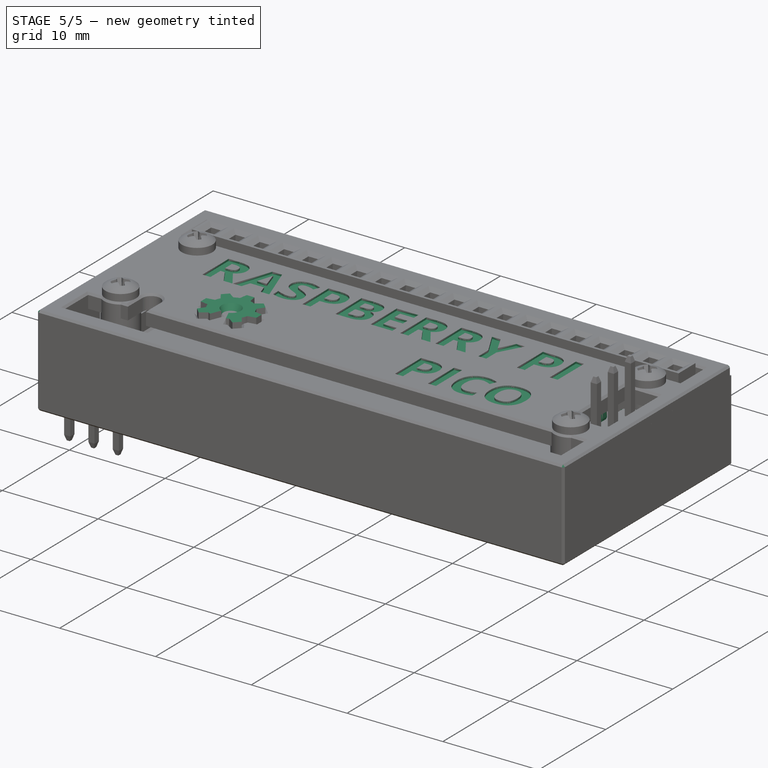
[diagram: stage 5 of 5 — iso view after this stage's code; geometry added in this stage tinted green]
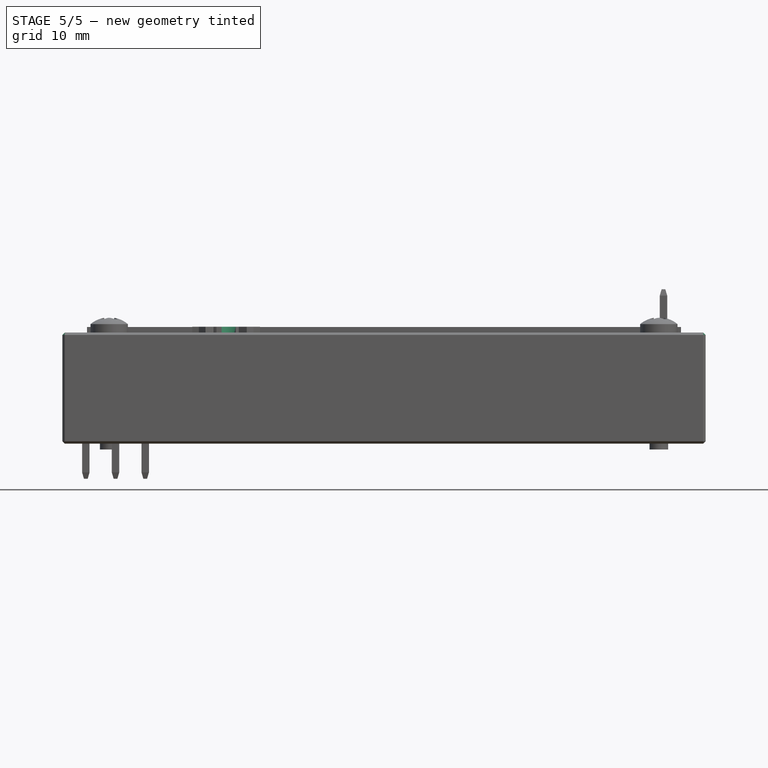
[diagram: stage 5 of 5 — front view after this stage's code; geometry added in this stage tinted green]
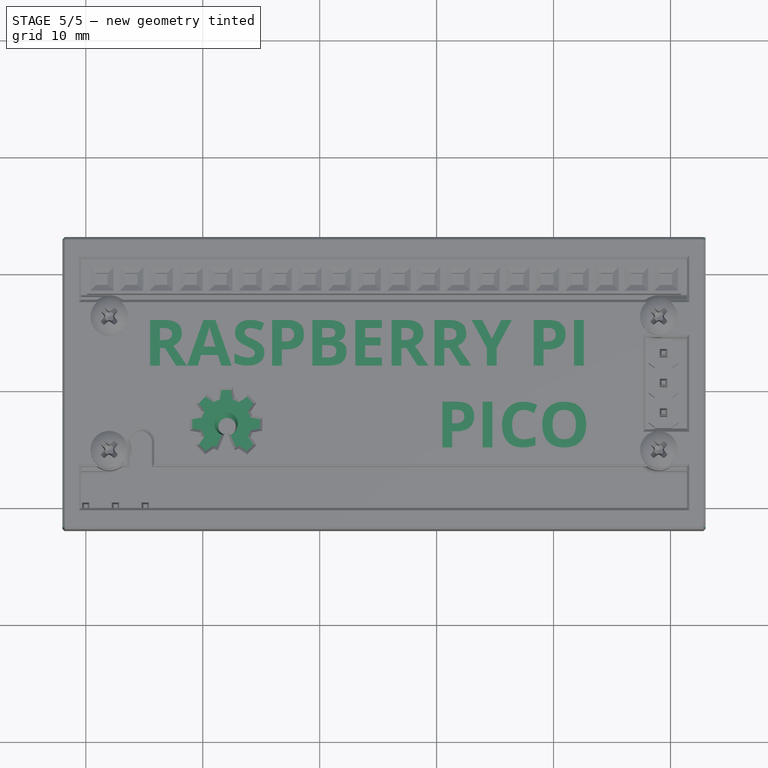
[diagram: stage 5 of 5 — top view after this stage's code; geometry added in this stage tinted green]
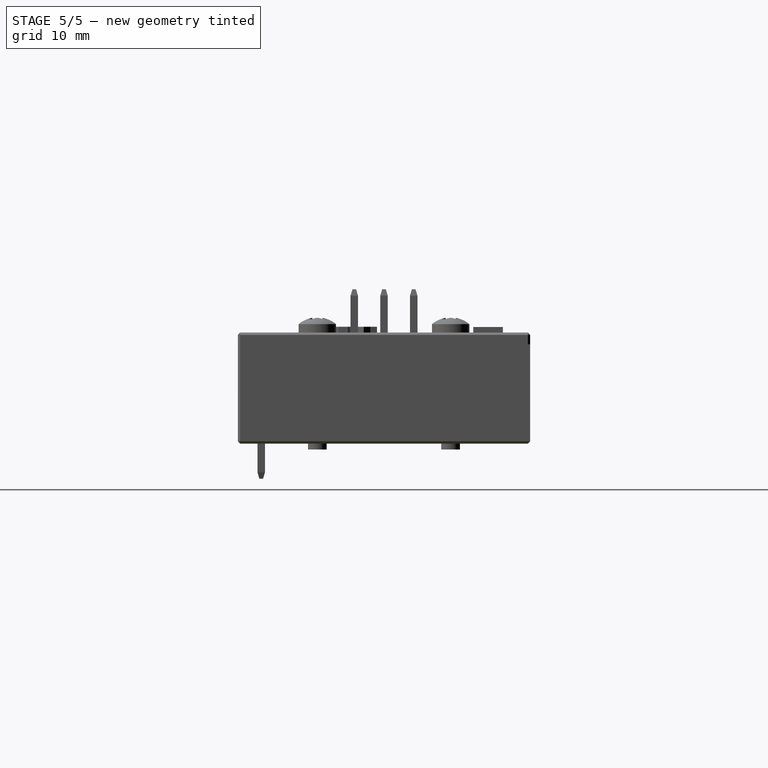
[diagram: stage 5 of 5 — right view after this stage's code; geometry added in this stage tinted green]
FEATURE [Part::FeaturePython] Clone001  label="pins"  # WARN: FeaturePython — macro-defined, semantics opaque (R4)
  Placement = pos=(1.37,1.6,6) rot=(0,0,1;0rad)
  Scale = (1,1,1)
FEATURE [Part::FeaturePython] Clone002  label="pins"  # Draft clone (typed FeaturePython)
  AttacherType = Attacher::AttachEngine3D
  Fuse = false
  Objects = -> [Clone001]
  Placement = pos=(26.77,1.6,6) rot=(0,0,1;0rad)
  Scale = (1,1,1)
FEATURE [Part::MultiFuse] Fusion003
  Refine = true
  Shapes = -> [Clone002,Clone001]
FEATURE [Sketcher::SketchObject] Sketch006  label="ENCAIXE TAMPA"
  ExternalGeometry = -> [Part__Feature,Fusion002,mirror,Compound,Extrude005]
  FullyConstrained = false
  Placement = pos=(0,0,8) rot=(0,0,1;0rad)
  expr: Constraints[125] = Spreadsheet.cilindro
  expr: Constraints[107] = Spreadsheet.folga / 2
  expr: Constraints[61] = Sketch.Constraints[72]
  expr: .Placement.Base.z = Spreadsheet.solda + Spreadsheet.folga + 3 * Spreadsheet.espessura + 2
  expr: Constraints[53] = Sketch.Constraints[56]
  expr: Constraints[52] = Sketch.Constraints[55]
  sketch-geometry (58):
    g0: LineSegment StartX=-2 StartY=-2 StartZ=0 EndX=53 EndY=-2 EndZ=0
    g1: LineSegment StartX=53 StartY=-2 StartZ=0 EndX=53 EndY=23 EndZ=0
    g2: LineSegment StartX=53 StartY=23 StartZ=0 EndX=-2 EndY=23 EndZ=0
    g3: LineSegment StartX=-2 StartY=23 StartZ=0 EndX=-2 EndY=-2 EndZ=0
    g4: LineSegment StartX=-1 StartY=22 StartZ=0 EndX=52 EndY=22 EndZ=0
    g5: LineSegment StartX=52 StartY=22 StartZ=0 EndX=52 EndY=-1 EndZ=0
    g6: LineSegment StartX=52 StartY=-1 StartZ=0 EndX=-1 EndY=-1 EndZ=0
    g7: LineSegment StartX=-1 StartY=-1 StartZ=0 EndX=-1 EndY=6 EndZ=0
    g8: LineSegment StartX=1.42e-14 StartY=21 StartZ=0 EndX=51 EndY=21 EndZ=0
    g9: LineSegment StartX=51 StartY=13.84 StartZ=0 EndX=51 EndY=7.16 EndZ=0
    g10: LineSegment StartX=51 StartY=-2.13e-14 StartZ=0 EndX=0 EndY=0 EndZ=0
    g11: LineSegment StartX=26.4196 StartY=23 StartZ=0 EndX=26.4196 EndY=22 EndZ=0
    g12: LineSegment StartX=26.4196 StartY=22 StartZ=0 EndX=26.4196 EndY=21 EndZ=0
    g13: LineSegment StartX=51 StartY=10.5 StartZ=0 EndX=52 EndY=10.5 EndZ=0
    g14: LineSegment StartX=52 StartY=10.5 StartZ=0 EndX=53 EndY=10.5 EndZ=0
    g15: LineSegment StartX=-2 StartY=15 StartZ=0 EndX=-1 EndY=15 EndZ=0
    g16: LineSegment StartX=-2 StartY=6 StartZ=0 EndX=-1 EndY=6 EndZ=0
    g17: LineSegment StartX=-1 StartY=15 StartZ=0 EndX=-1 EndY=22 EndZ=0
    g18: LineSegment StartX=-1 StartY=15 StartZ=0 EndX=-1 EndY=6 EndZ=0
    g19: LineSegment StartX=-1 StartY=10.5 StartZ=0 EndX=7.1e-15 EndY=10.5 EndZ=0
    g20: Circle CenterX=2 CenterY=16.2 CenterZ=0 NormalX=0 NormalY=0 NormalZ=1 AngleXU=0 Radius=1.1
    g21: Circle CenterX=49 CenterY=16.2 CenterZ=0 NormalX=0 NormalY=0 NormalZ=1 AngleXU=0 Radius=1.1
    g22: Circle CenterX=49 CenterY=4.8 CenterZ=0 NormalX=0 NormalY=0 NormalZ=1 AngleXU=0 Radius=1.1
    g23: Circle CenterX=2 CenterY=4.8 CenterZ=0 NormalX=0 NormalY=0 NormalZ=1 AngleXU=0 Radius=1.1
    g24: LineSegment StartX=-2 StartY=15 StartZ=0 EndX=-2 EndY=6 EndZ=0
    g25: LineSegment StartX=51.4 StartY=3.37 StartZ=0 EndX=50.0088 EndY=3.37 EndZ=0
    g26: LineSegment StartX=-0.4 StartY=3.37 StartZ=0 EndX=-0.4 EndY=-0.17 EndZ=0
    g27: LineSegment StartX=-0.4 StartY=-0.17 StartZ=0 EndX=51.4 EndY=-0.17 EndZ=0
    g28: LineSegment StartX=51.4 StartY=-0.17 StartZ=0 EndX=51.4 EndY=3.37 EndZ=0
    g29: LineSegment StartX=25.5 StartY=2.87 StartZ=0 EndX=25.5 EndY=3.37 EndZ=0
    g30: LineSegment StartX=25.5 StartY=0.33 StartZ=0 EndX=25.5 EndY=-0.17 EndZ=0
    g31: LineSegment StartX=0.1 StartY=1.6 StartZ=0 EndX=-0.4 EndY=1.6 EndZ=0
    g32: LineSegment StartX=50.9 StartY=1.6 StartZ=0 EndX=51.4 EndY=1.6 EndZ=0
    g33: LineSegment StartX=51.4 StartY=21.17 StartZ=0 EndX=-0.4 EndY=21.17 EndZ=0
    g34: LineSegment StartX=-0.4 StartY=21.17 StartZ=0 EndX=-0.4 EndY=17.63 EndZ=0
    g35: LineSegment StartX=-0.4 StartY=17.63 StartZ=0 EndX=0.991238 EndY=17.63 EndZ=0
    g36: LineSegment StartX=51.4 StartY=17.63 StartZ=0 EndX=51.4 EndY=21.17 EndZ=0
    g37: LineSegment StartX=-0.4 StartY=19.4 StartZ=0 EndX=0.1 EndY=19.4 EndZ=0
    g38: LineSegment StartX=25.5 StartY=20.67 StartZ=0 EndX=25.5 EndY=21.17 EndZ=0
    g39: LineSegment StartX=25.5 StartY=18.13 StartZ=0 EndX=25.5 EndY=17.63 EndZ=0
    g40: LineSegment StartX=50.9 StartY=19.4 StartZ=0 EndX=51.4 EndY=19.4 EndZ=0
    g41: ArcOfCircle CenterX=4.7 CenterY=5.5 CenterZ=0 NormalX=0 NormalY=0 NormalZ=1 AngleXU=0 Radius=0.95 StartAngle=0.0275634 EndAngle=3.14159
    g42: LineSegment StartX=3.75 StartY=5.5 StartZ=0 EndX=3.75 EndY=3.37 EndZ=0
    g43: LineSegment StartX=5.64964 StartY=5.52618 StartZ=0 EndX=5.70907 EndY=3.37053 EndZ=0
    g44: LineSegment StartX=3.75 StartY=3.37 StartZ=0 EndX=3.00682 EndY=3.36863 EndZ=0
    g45: LineSegment StartX=3.75 StartY=3.37 StartZ=0 EndX=5.70909 EndY=3.37 EndZ=0
    g46: ArcOfCircle CenterX=49 CenterY=4.8 CenterZ=0 NormalX=0 NormalY=0 NormalZ=1 AngleXU=0 Radius=1.75 StartAngle=4.09803 EndAngle=5.32675
    g47: ArcOfCircle CenterX=49 CenterY=16.2 CenterZ=0 NormalX=0 NormalY=0 NormalZ=1 AngleXU=0 Radius=1.75 StartAngle=0.956437 EndAngle=2.18516
    g48: ArcOfCircle CenterX=2 CenterY=16.2 CenterZ=0 NormalX=0 NormalY=0 NormalZ=1 AngleXU=0 Radius=1.75 StartAngle=0.956437 EndAngle=2.18516
    g49: ArcOfCircle CenterX=2 CenterY=4.8 CenterZ=0 NormalX=0 NormalY=0 NormalZ=1 AngleXU=0 Radius=1.75 StartAngle=4.09939 EndAngle=5.32539
    g50: LineSegment StartX=3.00876 StartY=17.63 StartZ=0 EndX=47.9912 EndY=17.63 EndZ=0
    g51: LineSegment StartX=3.00876 StartY=17.63 StartZ=0 EndX=0.991238 EndY=17.63 EndZ=0
    g52: LineSegment StartX=50.0088 StartY=17.63 StartZ=0 EndX=51.4 EndY=17.63 EndZ=0
    g53: LineSegment StartX=47.9912 StartY=17.63 StartZ=0 EndX=50.0088 EndY=17.63 EndZ=0
    g54: LineSegment StartX=47.9912 StartY=3.37 StartZ=0 EndX=5.70909 EndY=3.37 EndZ=0
    g55: LineSegment StartX=47.9912 StartY=3.37 StartZ=0 EndX=50.0088 EndY=3.37 EndZ=0
    g56: LineSegment StartX=0.993179 StartY=3.36863 StartZ=0 EndX=-0.4 EndY=3.37 EndZ=0
    g57: LineSegment StartX=3.00682 StartY=3.36863 StartZ=0 EndX=0.993179 EndY=3.36863 EndZ=0
  constraints (149):
    c: Coincident(g0,g1)
    c: Coincident(g1,g2)
    c: Coincident(g2,g3)
    c: Coincident(g3,g0)
    c: Horizontal(g0)
    c: Horizontal(g2)
    c: Vertical(g1)
    c: Vertical(g3)
    c: Coincident(g4,g5)
    c: Coincident(g5,g6)
    c: Coincident(g6,g7)
    c: Coincident(g17,g4)
    c: Horizontal(g4)
    c: Horizontal(g6)
    c: Vertical(g5)
    c: Vertical(g7)
    c: Coincident(g8,g-3)
    c: Coincident(g9,g-3)
    c: Coincident(g9,g-4)
    c: Coincident(g10,g-4)
    c: Coincident(g10,g-1)
    c: PointOnObject(g11,g2)
    c: PointOnObject(g11,g4)
    c: Vertical(g11)
    c: Coincident(g11,g12)
    c: PointOnObject(g12,g8)
    c: Vertical(g12)
    c: PointOnObject(g13,g5)
    c: Horizontal(g13)
    c: Coincident(g13,g14)
    c: Horizontal(g14)
    c: PointOnObject(g15,g3)
    c: Horizontal(g15)
    c: PointOnObject(g16,g3)
    c: Horizontal(g16)
    c: Coincident(g7,g16)
    c: Coincident(g17,g15)
    c: Coincident(g18,g17)
    c: Coincident(g18,g7)
    c: Vertical(g18)
    c: Equal(g14,g11)
    c: Equal(g11,g15)
    c: Vertical(g17)
    c: Equal(g17,g7)
    c: DistanceY(g16,g15) = 9
    c: Horizontal(g19)
    c: Symmetric(g18,g18,g19)
    c: Symmetric(g8,g-1,g19)
    c: Symmetric(g9,g9,g13)
    c: Symmetric(g1,g1,g14)
    c: Equal(g12,g19)
    c: Equal(g19,g13)
    c: DistanceY(g12,g12) = 1
    c: DistanceY(g11,g11) = 1
    c: Coincident(g20,g-5)
    c: Coincident(g21,g-6)
    c: Coincident(g22,g-7)
    c: Coincident(g23,g-8)
    c: Equal(g20,g21)
    c: Equal(g21,g22)
    c: Equal(g22,g23)
    c: Diameter(g20) = 2.2
    c: Coincident(g24,g15)
    c: Coincident(g24,g16)
    c: Coincident(g56,g26)
    c: Coincident(g26,g27)
    c: Coincident(g27,g28)
    c: Coincident(g28,g25)
    c: Horizontal(g25)
    c: Horizontal(g27)
    c: Vertical(g26)
    c: Vertical(g28)
    c: Vertical(g29)
    c: PointOnObject(g30,g27)
    c: Vertical(g30)
    c: PointOnObject(g32,g28)
    c: Horizontal(g32)
    c: Symmetric(g-12,g-12,g32)
    c: Symmetric(g-9,g-9,g29)
    c: Symmetric(g-10,g-10,g30)
    c: Symmetric(g-11,g-11,g31)
    c: Symmetric(g26,g26,g31)
    c: Symmetric(g25,g56,g29)
    c: Equal(g31,g30)
    c: Equal(g30,g29)
    c: Coincident(g33,g34)
    c: Coincident(g34,g35)
    c: Coincident(g52,g36)
    c: Coincident(g36,g33)
    c: Horizontal(g33)
    c: Horizontal(g35)
    c: Vertical(g34)
    c: Vertical(g36)
    c: Horizontal(g37)
    c: Vertical(g38)
    c: PointOnObject(g39,g35)
    c: Vertical(g39)
    c: PointOnObject(g40,g36)
    c: Horizontal(g40)
    c: Symmetric(g-16,g-16,g40)
    c: Symmetric(g-13,g-13,g38)
    c: Symmetric(g33,g33,g38)
    c: Symmetric(g-15,g-15,g39)
    c: Symmetric(g-14,g-14,g37)
    c: Symmetric(g34,g34,g37)
    c: Equal(g37,g38)
    c: Equal(g40,g29)
    c: DistanceY(g38,g38) = 0.5
    c: Tangent(g41,g43) = 1.5708
    c: Tangent(g41,g42) = -1.5708
    c: Vertical(g42)
    c: Tangent(g42,g-19)
    c: Symmetric(g-17,g-17,g41)
    c: PointOnObject(g54,g43)
    c: PointOnObject(g44,g42)
    c: Coincident(g45,g42)
    c: Coincident(g45,g54)
    c: Horizontal(g45)
    c: Coincident(g46,g22)
    c: Coincident(g47,g21)
    c: Coincident(g48,g20)
    c: Coincident(g49,g23)
    c: Equal(g49,g48)
    c: Equal(g48,g47)
    c: Equal(g47,g46)
    c: Diameter(g48) = 3.5
    c: Coincident(g35,g48)
    c: Coincident(g50,g48)
    c: Coincident(g51,g48)
    c: Coincident(g51,g35)
    c: Horizontal(g51)
    c: Coincident(g50,g47)
    c: Coincident(g52,g47)
    c: Coincident(g53,g47)
    c: Coincident(g53,g47)
    c: Horizontal(g53)
    c: Coincident(g25,g46)
    c: Coincident(g54,g46)
    c: Coincident(g55,g46)
    c: Coincident(g55,g25)
    c: Horizontal(g55)
    c: Coincident(g44,g49)
    c: Coincident(g49,g56)
    c: Coincident(g57,g44)
    c: Coincident(g57,g49)
    c: Horizontal(g57)
    c: Horizontal(g52)
    c: Horizontal(g54)
    c: Horizontal(g50)
FEATURE [Part::Mirroring] mirror001  label="Fusion003 (mirrored)"
  Base = (53,10.5,8.5)
  Normal = (0,-1,0)
  Source = -> Fusion003
FEATURE [Sketcher::SketchObject] Sketch008  label="OSHWA"
  FullyConstrained = true
  Placement = pos=(0,0,8) rot=(0,0,1;0rad)
  expr: .Placement.Base.z = Spreadsheet.solda + Spreadsheet.folga + 3 * Spreadsheet.espessura + 2
  sketch-geometry (51):
    g0: ArcOfCircle CenterX=12 CenterY=7 CenterZ=0 NormalX=0 NormalY=0 NormalZ=1 AngleXU=0 Radius=1 StartAngle=5.10509 EndAngle=10.6029
    g1: ArcOfCircle CenterX=12 CenterY=7 CenterZ=0 NormalX=0 NormalY=0 NormalZ=1 AngleXU=0 Radius=2.15 StartAngle=1.82949 EndAngle=2.0975
    g2: LineSegment StartX=12 StartY=9.9 StartZ=0 EndX=12 EndY=7 EndZ=0
    g3: LineSegment StartX=12 StartY=7 StartZ=0 EndX=14.9 EndY=7 EndZ=0
    g4: LineSegment StartX=12 StartY=7 StartZ=0 EndX=9.1 EndY=7 EndZ=0
    g5: LineSegment StartX=12 StartY=7 StartZ=0 EndX=9.94939 EndY=9.05061 EndZ=0
    g6: LineSegment StartX=12 StartY=7 StartZ=0 EndX=14.0506 EndY=9.05061 EndZ=0
    g7: LineSegment StartX=12 StartY=7 StartZ=0 EndX=9.94939 EndY=4.94939 EndZ=0
    g8: LineSegment StartX=12 StartY=7 StartZ=0 EndX=14.0506 EndY=4.94939 EndZ=0
    g9: LineSegment StartX=11.6 StartY=9.9 StartZ=0 EndX=12.4 EndY=9.9 EndZ=0
    g10: LineSegment StartX=12.4 StartY=9.9 StartZ=0 EndX=12.55 EndY=9.07846 EndZ=0
    g11: LineSegment StartX=12.55 StartY=9.07846 StartZ=0 EndX=11.45 EndY=9.07846 EndZ=0
    g12: LineSegment StartX=11.45 StartY=9.07846 StartZ=0 EndX=11.6 EndY=9.9 EndZ=0
    g13: LineSegment StartX=13.0808 StartY=8.8586 StartZ=0 EndX=13.8586 EndY=8.08079 EndZ=0
    g14: LineSegment StartX=13.8586 StartY=8.08079 StartZ=0 EndX=14.3335 EndY=8.76777 EndZ=0
    g15: LineSegment StartX=14.3335 StartY=8.76777 StartZ=0 EndX=13.7678 EndY=9.33345 EndZ=0
    g16: LineSegment StartX=13.7678 StartY=9.33345 StartZ=0 EndX=13.0808 EndY=8.8586 EndZ=0
    g17: LineSegment StartX=10.2322 StartY=9.33345 StartZ=0 EndX=9.66655 EndY=8.76777 EndZ=0
    g18: LineSegment StartX=9.66655 StartY=8.76777 StartZ=0 EndX=10.1414 EndY=8.08079 EndZ=0
    g19: LineSegment StartX=10.1414 StartY=8.08079 StartZ=0 EndX=10.9192 EndY=8.8586 EndZ=0
    g20: LineSegment StartX=10.9192 StartY=8.8586 StartZ=0 EndX=10.2322 EndY=9.33345 EndZ=0
    g21: LineSegment StartX=14.0785 StartY=7.55 StartZ=0 EndX=14.0785 EndY=6.45 EndZ=0
    g22: LineSegment StartX=14.0785 StartY=6.45 StartZ=0 EndX=14.9 EndY=6.6 EndZ=0
    g23: LineSegment StartX=14.9 StartY=6.6 StartZ=0 EndX=14.9 EndY=7.4 EndZ=0
    g24: LineSegment StartX=14.9 StartY=7.4 StartZ=0 EndX=14.0785 EndY=7.55 EndZ=0
    g25: LineSegment StartX=14.3335 StartY=5.23223 StartZ=0 EndX=13.7678 EndY=4.66655 EndZ=0
    g26: LineSegment StartX=13.7678 StartY=4.66655 StartZ=0 EndX=13.0808 EndY=5.1414 EndZ=0
    g27: LineSegment StartX=13.0808 StartY=5.1414 StartZ=0 EndX=13.8586 EndY=5.91921 EndZ=0
    g28: LineSegment StartX=13.8586 StartY=5.91921 StartZ=0 EndX=14.3335 EndY=5.23223 EndZ=0
    g29: LineSegment StartX=10.2322 StartY=4.66655 StartZ=0 EndX=9.66655 EndY=5.23223 EndZ=0
    g30: LineSegment StartX=9.66655 StartY=5.23223 StartZ=0 EndX=10.1414 EndY=5.91921 EndZ=0
    g31: LineSegment StartX=10.1414 StartY=5.91921 StartZ=0 EndX=10.9192 EndY=5.1414 EndZ=0
    g32: LineSegment StartX=10.9192 StartY=5.1414 StartZ=0 EndX=10.2322 EndY=4.66655 EndZ=0
    g33: LineSegment StartX=9.92154 StartY=6.45 StartZ=0 EndX=9.1 EndY=6.6 EndZ=0
    g34: LineSegment StartX=9.1 StartY=6.6 StartZ=0 EndX=9.1 EndY=7.4 EndZ=0
    g35: LineSegment StartX=9.1 StartY=7.4 StartZ=0 EndX=9.92154 EndY=7.55 EndZ=0
    g36: LineSegment StartX=9.92154 StartY=7.55 StartZ=0 EndX=9.92154 EndY=6.45 EndZ=0
    g37: ArcOfCircle CenterX=12 CenterY=7 CenterZ=0 NormalX=0 NormalY=0 NormalZ=1 AngleXU=0 Radius=2.15 StartAngle=2.61488 EndAngle=2.8829
    g38: ArcOfCircle CenterX=12 CenterY=7 CenterZ=0 NormalX=0 NormalY=0 NormalZ=1 AngleXU=0 Radius=2.15 StartAngle=3.40028 EndAngle=3.6683
    g39: ArcOfCircle CenterX=12 CenterY=7 CenterZ=0 NormalX=0 NormalY=0 NormalZ=1 AngleXU=0 Radius=2.15 StartAngle=1.04409 EndAngle=1.31211
    g40: ArcOfCircle CenterX=12 CenterY=7 CenterZ=0 NormalX=0 NormalY=0 NormalZ=1 AngleXU=0 Radius=2.15 StartAngle=0.25869 EndAngle=0.526709
    g41: ArcOfCircle CenterX=12 CenterY=7 CenterZ=0 NormalX=0 NormalY=0 NormalZ=1 AngleXU=0 Radius=2.15 StartAngle=5.75648 EndAngle=6.0245
    g42: ArcOfCircle CenterX=12 CenterY=7 CenterZ=0 NormalX=0 NormalY=0 NormalZ=1 AngleXU=0 Radius=2.15 StartAngle=4.18568 EndAngle=4.31969
    g43: LineSegment StartX=12 StartY=7 StartZ=0 EndX=12 EndY=5.01366 EndZ=0
    g44: LineSegment StartX=12 StartY=7 StartZ=0 EndX=11.6173 EndY=6.07612 EndZ=0
    g45: LineSegment StartX=11.6173 StartY=6.07612 StartZ=0 EndX=11.1772 EndY=5.01366 EndZ=0
    g46: LineSegment StartX=11.1772 StartY=5.01366 StartZ=0 EndX=12.8228 EndY=5.01366 EndZ=0
    g47: LineSegment StartX=12.8228 StartY=5.01366 StartZ=0 EndX=12.3827 EndY=6.07612 EndZ=0
    g48: LineSegment StartX=12.3827 StartY=6.07612 StartZ=0 EndX=12 EndY=7 EndZ=0
    g49: LineSegment StartX=11.6173 StartY=6.07612 StartZ=0 EndX=12.3827 EndY=6.07612 EndZ=0
    g50: ArcOfCircle CenterX=12 CenterY=7 CenterZ=0 NormalX=0 NormalY=0 NormalZ=1 AngleXU=0 Radius=2.15 StartAngle=5.10509 EndAngle=5.2391
  constraints (148):
    c: Coincident(g1,g0)
    c: Coincident(g2,g0)
    c: Vertical(g2)
    c: Coincident(g2,g3)
    c: Horizontal(g3)
    c: Coincident(g4,g0)
    c: Horizontal(g4)
    c: Coincident(g5,g0)
    c: Coincident(g6,g0)
    c: Coincident(g7,g0)
    c: Coincident(g8,g0)
    c: Parallel(g7,g6)
    c: Parallel(g5,g8)
    c: Angle(g3,g6) = 0.785398
    c: Angle(g5,g4) = 0.785398
    c: Equal(g7,g8)
    c: Equal(g8,g6)
    c: Equal(g6,g3)
    c: Equal(g3,g2)
    c: Equal(g2,g5)
    c: Equal(g5,g4)
    c: Diameter(g0) = 2
    c: Diameter(g1) = 4.3
    c: DistanceX(g0) = 12
    c: DistanceY(g0) = 7
    c: Horizontal(g9)
    c: Coincident(g9,g10)
    c: Coincident(g10,g11)
    c: Horizontal(g11)
    c: Coincident(g11,g12)
    c: Coincident(g12,g9)
    c: Symmetric(g9,g9,g2)
    c: PointOnObject(g13,g1)
    c: PointOnObject(g13,g1)
    c: Coincident(g13,g14)
    c: Coincident(g14,g15)
    c: Coincident(g15,g16)
    c: Coincident(g16,g13)
    c: Coincident(g17,g18)
    c: PointOnObject(g18,g1)
    c: Coincident(g18,g19)
    c: Coincident(g19,g20)
    c: Coincident(g20,g17)
    c: PointOnObject(g21,g1)
    c: PointOnObject(g21,g1)
    c: Vertical(g21)
    c: Coincident(g21,g22)
    c: Coincident(g22,g23)
    c: Vertical(g23)
    c: Coincident(g23,g24)
    c: Coincident(g24,g21)
    c: Coincident(g25,g26)
    c: PointOnObject(g26,g1)
    c: Coincident(g26,g27)
    c: PointOnObject(g27,g1)
    c: Coincident(g27,g28)
    c: Coincident(g28,g25)
    c: Coincident(g29,g30)
    c: PointOnObject(g30,g1)
    c: Coincident(g30,g31)
    c: PointOnObject(g31,g1)
    c: Coincident(g31,g32)
    c: Coincident(g32,g29)
    c: PointOnObject(g33,g1)
    c: Coincident(g33,g34)
    c: Vertical(g34)
    c: Coincident(g34,g35)
    c: PointOnObject(g35,g1)
    c: Coincident(g35,g36)
    c: Coincident(g36,g33)
    c: Vertical(g36)
    c: Equal(g17,g34)
    c: Equal(g34,g9)
    c: Equal(g9,g15)
    c: Equal(g15,g23)
    c: Equal(g23,g25)
    c: Equal(g25,g29)
    c: DistanceX(g9,g9) = 0.8
    c: Symmetric(g17,g17,g5)
    c: Symmetric(g15,g15,g6)
    c: Symmetric(g23,g23,g3)
    c: Symmetric(g25,g25,g8)
    c: Symmetric(g29,g29,g7)
    c: Symmetric(g34,g34,g4)
    c: DistanceY(g2,g2) = 2.9
    c: Perpendicular(g7,g29)
    c: Perpendicular(g5,g17)
    c: Perpendicular(g6,g15)
    c: Perpendicular(g25,g8)
    c: Equal(g27,g31)
    c: Equal(g31,g21)
    c: Equal(g21,g13)
    c: Equal(g13,g11)
    c: Equal(g11,g19)
    c: Equal(g19,g36)
    c: Perpendicular(g19,g5)
    c: Perpendicular(g13,g6)
    c: Perpendicular(g27,g8)
    c: Perpendicular(g31,g7)
    c: DistanceX(g11,g11) = 1.1
    c: Coincident(g39,g10)
    c: Coincident(g1,g11)
    c: Equal(g1,g37)
    c: Coincident(g1,g19)
    c: Coincident(g1,g37)
    c: PointOnObject(g37,g18)
    c: Equal(g37,g38)
    c: PointOnObject(g37,g35)
    c: Coincident(g37,g38)
    c: PointOnObject(g38,g33)
    c: Equal(g38,g39)
    c: PointOnObject(g40,g13)
    c: Coincident(g38,g39)
    c: PointOnObject(g39,g13)
    c: Equal(g38,g40)
    c: PointOnObject(g40,g21)
    c: Coincident(g38,g40)
    c: PointOnObject(g41,g21)
    c: Equal(g38,g41)
    c: PointOnObject(g41,g27)
    c: Coincident(g38,g41)
    c: PointOnObject(g50,g27)
    c: Equal(g38,g42)
    c: PointOnObject(g42,g31)
    c: Coincident(g38,g42)
    c: PointOnObject(g38,g30)
    c: Coincident(g43,g0)
    c: Vertical(g43)
    c: Coincident(g44,g0)
    c: PointOnObject(g44,g0)
    c: Coincident(g44,g45)
    c: Coincident(g45,g46)
    c: Horizontal(g46)
    c: Coincident(g46,g47)
    c: Coincident(g47,g48)
    c: PointOnObject(g48,g8)
    c: Coincident(g44,g49)
    c: Coincident(g49,g47)
    c: Horizontal(g49)
    c: Coincident(g0,g47)
    c: PointOnObject(g0,g49)
    c: Parallel(g44,g45)
    c: Parallel(g48,g47)
    c: Coincident(g50,g46)
    c: Coincident(g42,g50)
    c: Coincident(g42,g45)
    c: Symmetric(g46,g46,g43)
    c: Angle(g45,g47) = 0.785398
FEATURE [Part::Extrusion] Extrude008  label="OSHWA"
  Base = -> Sketch008
  Dir = (0,0,1)
  DirMode = 2
  FaceMakerClass = Part::FaceMakerBullseye
  LengthFwd = 2
  LengthRev = 0
  Solid = true
  Symmetric = false
  expr: LengthFwd = 2 * Spreadsheet.espessura
FEATURE [Part::Feature] Nut_solid  label="M1.6-Nut (Solid)"
  Placement = pos=(8.36795,1.17039,0) rot=(0,0,1;0.523599rad)
  shape: bbox 3.695 x 3.695 x 1 mm, 25 faces (baked)
FEATURE [Part::Feature] Nut001_solid  label="M1.6-Nut (Solid)"
  Placement = pos=(2.66795,-0.356922,0) rot=(0,0,1;0.523599rad)
  shape: bbox 3.695 x 3.695 x 1 mm, 25 faces (baked)
FEATURE [Part::Feature] Nut002_solid  label="M1.6-Nut (Solid)"
  Placement = pos=(14.6648,-22.3296,0) rot=(0,0,1;0.523599rad)
  shape: bbox 3.695 x 3.695 x 1 mm, 25 faces (baked)
FEATURE [Part::Feature] Nut003_solid  label="M1.6-Nut (Solid)"
  Placement = pos=(8.96476,-23.8569,0) rot=(0,0,1;0.523599rad)
  shape: bbox 3.695 x 3.695 x 1 mm, 25 faces (baked)
FEATURE [Part::Extrusion] Extrude010  label="TEXTO TASP"
  Base = -> ShapeString
  Dir = (0,0,1)
  DirMode = 2
  FaceMakerClass = Part::FaceMakerBullseye
  LengthFwd = 0.2
  LengthRev = 0
  Reversed = true
  Solid = true
  Symmetric = false
FEATURE [Part::Extrusion] Extrude011  label="TEXTO PICO"
  Base = -> ShapeString001
  Dir = (0,0,1)
  DirMode = 2
  FaceMakerClass = Part::FaceMakerBullseye
  LengthFwd = 0.2
  LengthRev = 0
  Reversed = true
  Solid = true
  Symmetric = false
FEATURE [Part::MultiFuse] Fusion007  label="TEXTO"
  Refine = true
  Shapes = -> [Extrude010,Extrude011]
FEATURE [Part::Chamfer] Chamfer  label="TAMPA"
  Base = -> Fusion
  Edges = 76 edges r=0.2: [Edge1,Edge2,Edge6,Edge9,Edge10,Edge14,Edge17,Edge18,Edge22,Edge25,Edge26,Edge31,Edge114,Edge115,Edge116,Edge117,Edge118,Edge119,Edge120,Edge121,Edge122,Edge123,Edge124,Edge125,Edge126,Edge127,Edge128,Edge129,Edge130,Edge131,Edge132,Edge133,Edge134,Edge135,Edge136,Edge137,Edge138,Edge139,Edge140,+37 more]
FEATURE [Part::Cut] Cut  label="TAMPA"
  Base = -> Chamfer
  Refine = true
  Tool = -> Fusion007
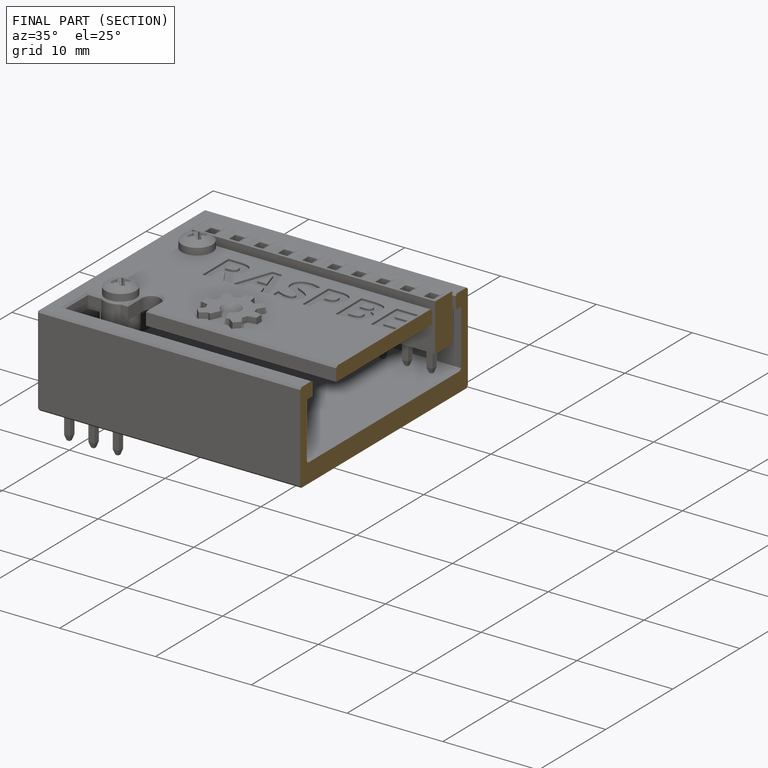
[diagram: finished part — half-section view (interior)]
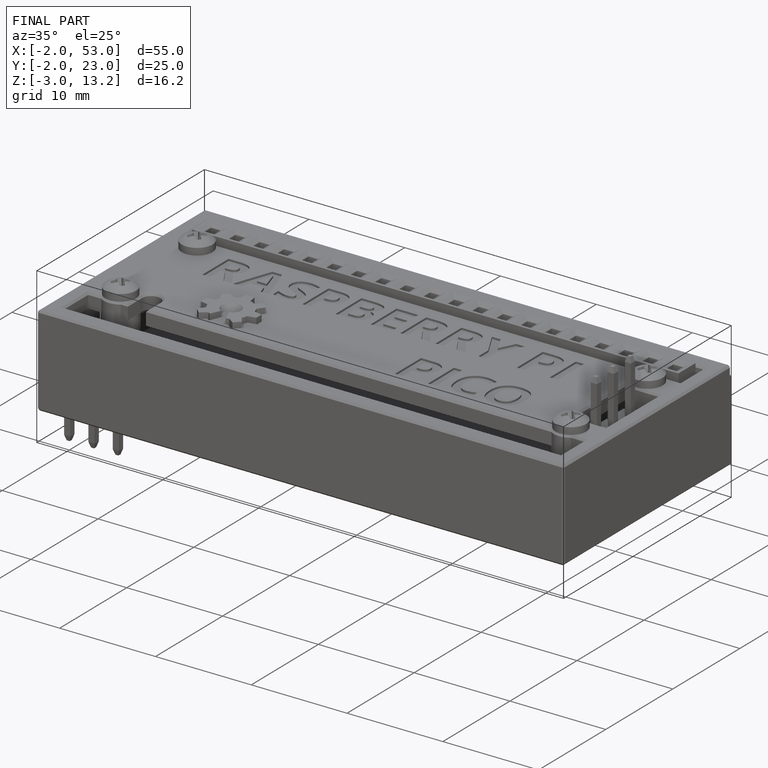
[diagram: finished part — iso view with bounding-box wireframe]
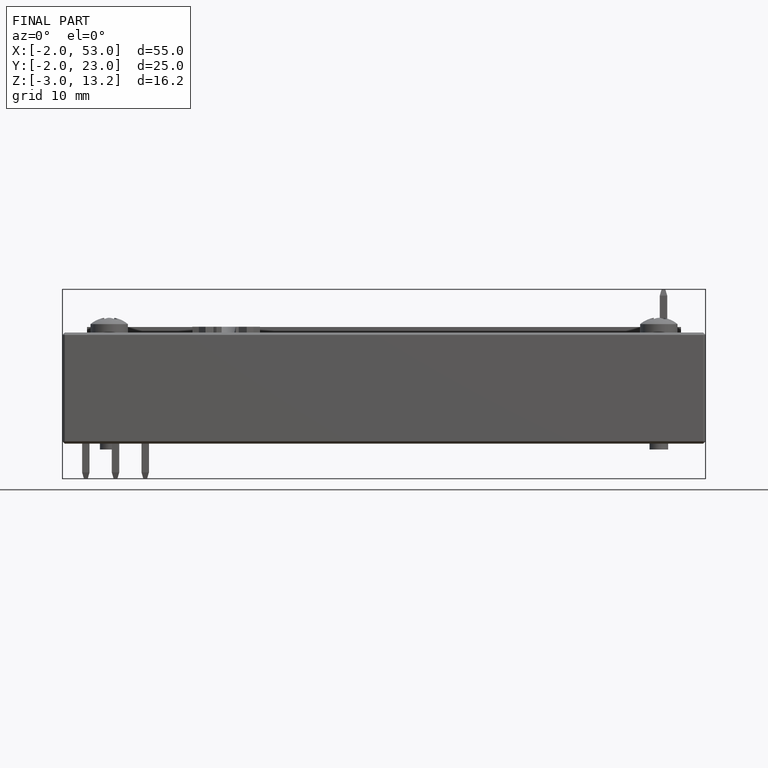
[diagram: finished part — front view with bounding-box wireframe]
